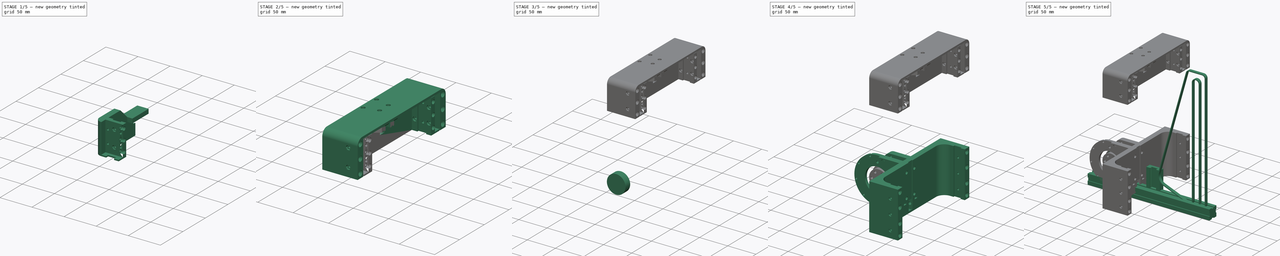
[diagram: build sequence overview — one tinted view per stage of 5, left to right]
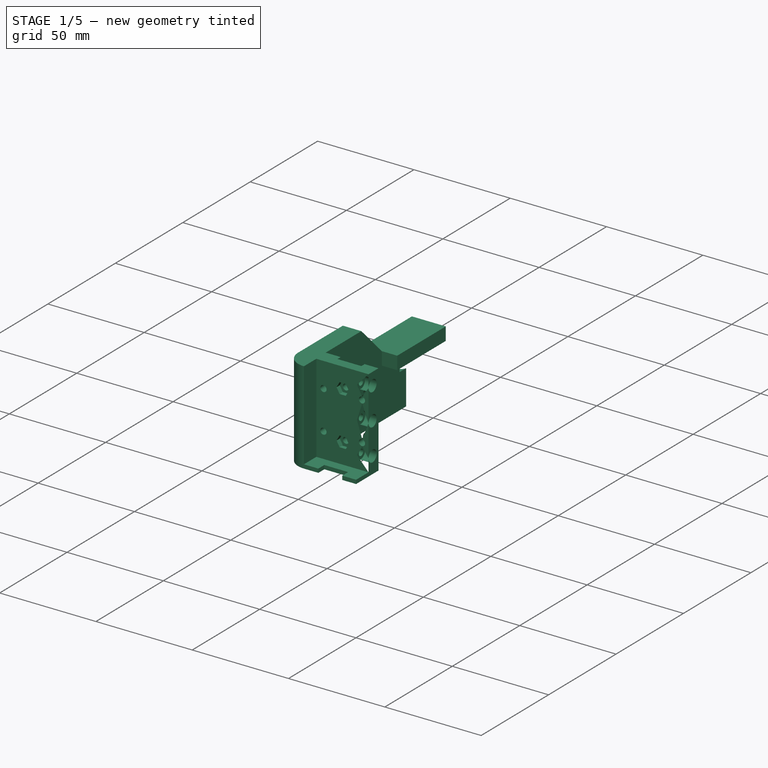
[diagram: stage 1 of 5 — iso view after this stage's code; geometry added in this stage tinted green]
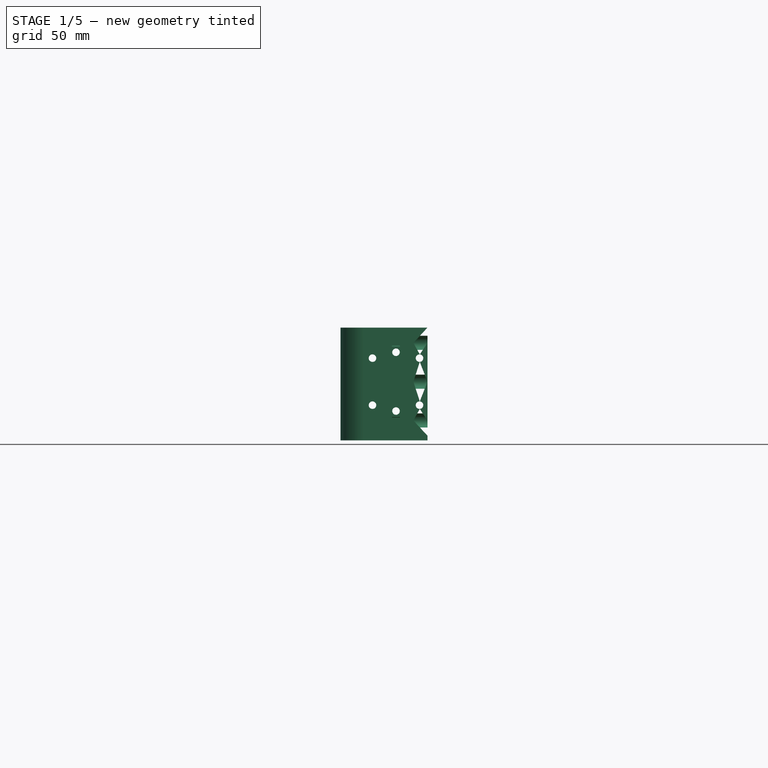
[diagram: stage 1 of 5 — front view after this stage's code; geometry added in this stage tinted green]
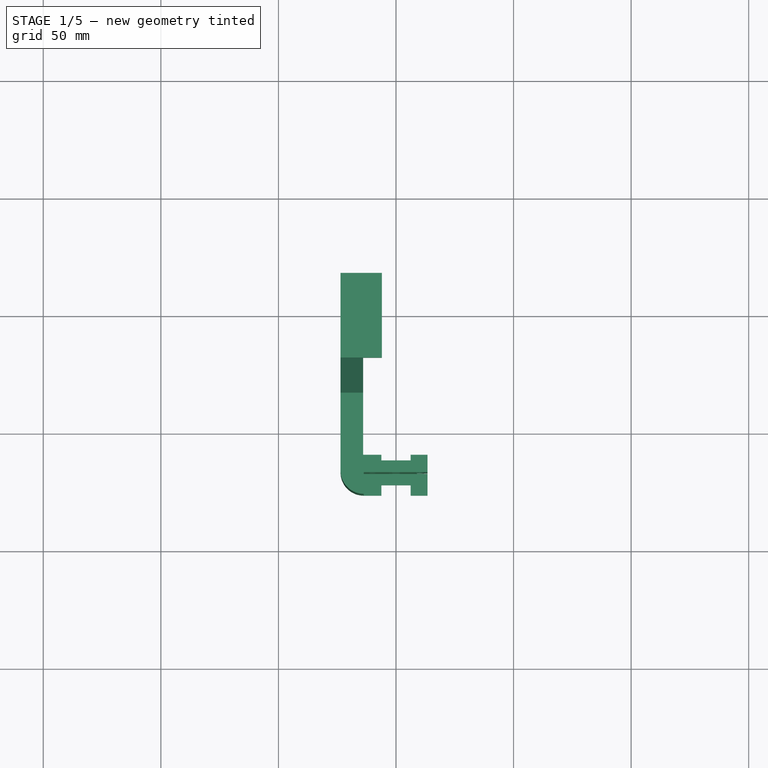
[diagram: stage 1 of 5 — top view after this stage's code; geometry added in this stage tinted green]
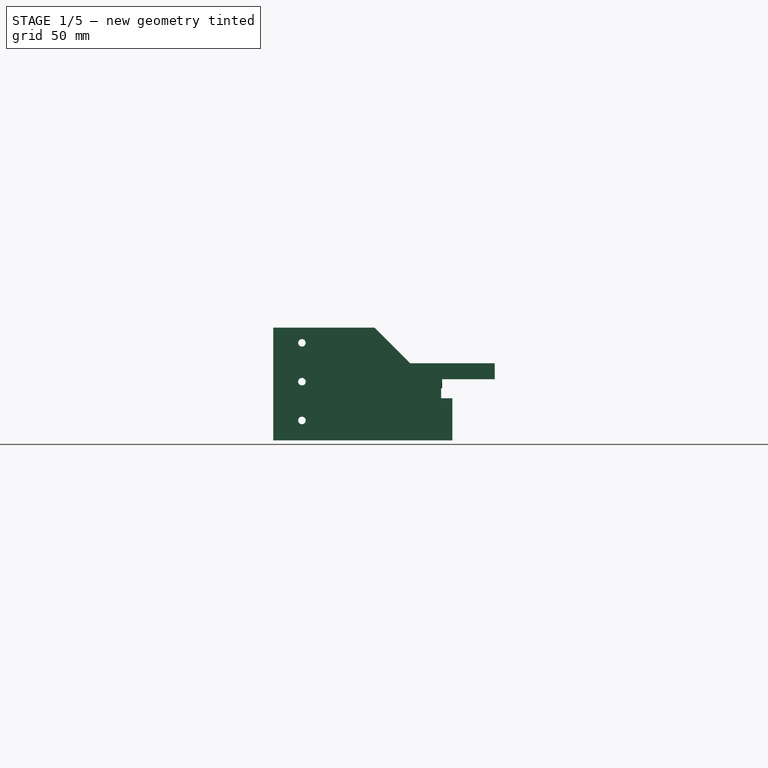
[diagram: stage 1 of 5 — right view after this stage's code; geometry added in this stage tinted green]
FCSTD DOCUMENT  (FreeCAD 1.0R39109 (Git))
Label: v13b
License: All rights reserved
LicenseURL: https://en.wikipedia.org/wiki/All_rights_reserved
objects: Sketcher::SketchObject×64, PartDesign::Pad×25, PartDesign::Pocket×25, Part::FeaturePython×17, PartDesign::Body×16, PartDesign::Hole×11, PartDesign::SubShapeBinder×11, App::Part×4, PartDesign::Revolution×4, App::DocumentObjectGroup×4, PartDesign::Mirrored×3, PartDesign::Groove×3, PartDesign::Chamfer×3, PartDesign::FeatureBase×2, App::FeaturePython×1, PartDesign::PolarPattern×1, Part::MultiFuse×1, Part::MultiCommon×1, PartDesign::Fillet×1
note: 402 computed .brp shape members not serialized (recipe doc carries the construction recipe); baked Part::Feature solids carry a one-line shape summary decoded from their .brp

FEATURE [App::FeaturePython] dd  # WARN: FeaturePython — macro-defined, semantics opaque (R4)
  CG_X = -77.6
  CG_Y = -10
  CG_Z = 40
  DynamicData = Created with DynamicData (v2.73) workbench. | This is a simple container object built | for holding custom properties.
  F1_X = 31.6
  F1_Y = 80
  F2_X = 18.8
  F2_Y = 62
  F_X = 108
  G1_Teeth = 50
  Position = 0
  SH_Length = 250
  expr: CG_X = -(F1_X + 40 mm + 6 mm)
  expr: F1_X = F2_X + 12.8 mm
  expr: F2_X = 18.8
  expr: F2_Y = F1_Y - 18 mm
FEATURE [Sketcher::SketchObject] Sketch005  label="P20_Sketch001"
  ArcFitTolerance = 1e-06
  AttachmentSupport = -> [YZ_Plane002]
  FullyConstrained = true
  MakeInternals = false
  MapMode = 5
  Placement = pos=(0,0,0) rot=(0.57735,0.57735,0.57735;2.0944rad)
  sketch-geometry (20):
    g0: LineSegment StartX=3 StartY=10 StartZ=0 EndX=10 EndY=10 EndZ=0
    g1: LineSegment StartX=10 StartY=10 StartZ=0 EndX=10 EndY=3 EndZ=0
    g2: LineSegment StartX=10 StartY=3 StartZ=0 EndX=8.4 EndY=3 EndZ=0
    g3: LineSegment StartX=8.4 StartY=3 StartZ=0 EndX=8.4 EndY=-3 EndZ=0
    g4: LineSegment StartX=8.4 StartY=-3 StartZ=0 EndX=10 EndY=-3 EndZ=0
    g5: LineSegment StartX=10 StartY=-3 StartZ=0 EndX=10 EndY=-10 EndZ=0
    g6: LineSegment StartX=10 StartY=-10 StartZ=0 EndX=3 EndY=-10 EndZ=0
    g7: LineSegment StartX=3 StartY=-10 StartZ=0 EndX=3 EndY=-8.4 EndZ=0
    g8: LineSegment StartX=3 StartY=-8.4 StartZ=0 EndX=-3 EndY=-8.4 EndZ=0
    g9: LineSegment StartX=-3 StartY=-8.4 StartZ=0 EndX=-3 EndY=-10 EndZ=0
    g10: LineSegment StartX=-3 StartY=-10 StartZ=0 EndX=-10 EndY=-10 EndZ=0
    g11: LineSegment StartX=-10 StartY=-10 StartZ=0 EndX=-10 EndY=-3 EndZ=0
    g12: LineSegment StartX=-10 StartY=-3 StartZ=0 EndX=-8.4 EndY=-3 EndZ=0
    g13: LineSegment StartX=-8.4 StartY=-3 StartZ=0 EndX=-8.4 EndY=3 EndZ=0
    g14: LineSegment StartX=-8.4 StartY=3 StartZ=0 EndX=-10 EndY=3 EndZ=0
    g15: LineSegment StartX=-10 StartY=3 StartZ=0 EndX=-10 EndY=10 EndZ=0
    g16: LineSegment StartX=-10 StartY=10 StartZ=0 EndX=-3 EndY=10 EndZ=0
    g17: LineSegment StartX=-3 StartY=10 StartZ=0 EndX=-3 EndY=8.4 EndZ=0
    g18: LineSegment StartX=-3 StartY=8.4 StartZ=0 EndX=3 EndY=8.4 EndZ=0
    g19: LineSegment StartX=3 StartY=8.4 StartZ=0 EndX=3 EndY=10 EndZ=0
  constraints (58):
    c: Horizontal(g0)
    c: Coincident(g0,g1)
    c: Coincident(g1,g2)
    c: Horizontal(g2)
    c: Coincident(g2,g3)
    c: Coincident(g3,g4)
    c: Coincident(g4,g5)
    c: Vertical(g5)
    c: Coincident(g5,g6)
    c: Coincident(g6,g7)
    c: Coincident(g7,g8)
    c: Horizontal(g8)
    c: Coincident(g8,g9)
    c: Vertical(g9)
    c: Coincident(g9,g10)
    c: Coincident(g10,g11)
    c: Vertical(g11)
    c: Coincident(g11,g12)
    c: Horizontal(g12)
    c: Coincident(g12,g13)
    c: Coincident(g13,g14)
    c: Coincident(g14,g15)
    c: Vertical(g15)
    c: Coincident(g15,g16)
    c: Horizontal(g16)
    c: Coincident(g16,g17)
    c: Vertical(g17)
    c: Coincident(g17,g18)
    c: Coincident(g18,g19)
    c: Coincident(g19,g0)
    c: Horizontal(g14)
    c: Vertical(g19)
    c: Vertical(g1)
    c: Horizontal(g4)
    c: Horizontal(g6)
    c: Vertical(g7)
    c: Horizontal(g10)
    c: Equal(g14,g17)
    c: Equal(g19,g2)
    c: Equal(g4,g7)
    c: Distance(g4,g4) = 1.6
    c: Equal(g3,g18)
    c: Equal(g18,g13)
    c: Equal(g13,g8)
    c: Distance(g13,g13) = 6
    c: Equal(g16,g0)
    c: Equal(g0,g1)
    c: Equal(g1,g5)
    c: Equal(g5,g6)
    c: Equal(g6,g10)
    c: Equal(g10,g11)
    c: Equal(g11,g15)
    c: Vertical(g3)
    c: Vertical(g13)
    c: DistanceY(g10,g15) = 20
    c: Symmetric(g14,g11,g-1)
    c: Symmetric(g17,g18,g-2)
    c: Equal(g9,g7)
FEATURE [Sketcher::SketchObject] Sketch001  label="MGN12H_Sketch001"
  ArcFitTolerance = 1e-06
  AttachmentSupport = -> [XY_Plane004]
  FullyConstrained = true
  MakeInternals = false
  MapMode = 5
  sketch-geometry (15):
    g0: LineSegment StartX=-13.5 StartY=13 StartZ=0 EndX=13.5 EndY=13 EndZ=0
    g1: LineSegment StartX=13.5 StartY=13 StartZ=0 EndX=13.5 EndY=3 EndZ=0
    g2: LineSegment StartX=13.5 StartY=3 StartZ=0 EndX=6 EndY=3 EndZ=0
    g3: LineSegment StartX=6 StartY=8 StartZ=0 EndX=-6 EndY=8 EndZ=0
    g4: LineSegment StartX=-6 StartY=3 StartZ=0 EndX=-13.5 EndY=3 EndZ=0
    g5: LineSegment StartX=-13.5 StartY=3 StartZ=0 EndX=-13.5 EndY=13 EndZ=0
    g6: LineSegment [constr] StartX=-13.5 StartY=5.6 StartZ=0 EndX=13.5 EndY=5.6 EndZ=0
    g7: LineSegment StartX=-6 StartY=8 StartZ=0 EndX=-6 EndY=6.8 EndZ=0
    g8: LineSegment StartX=-4.8 StartY=5.6 StartZ=0 EndX=-6 EndY=4.4 EndZ=0
    g9: LineSegment StartX=-6 StartY=4.4 StartZ=0 EndX=-6 EndY=3 EndZ=0
    g10: LineSegment StartX=6 StartY=8 StartZ=0 EndX=6 EndY=6.8 EndZ=0
    g11: LineSegment StartX=6 StartY=6.8 StartZ=0 EndX=4.8 EndY=5.6 EndZ=0
    g12: LineSegment StartX=4.8 StartY=5.6 StartZ=0 EndX=6 EndY=4.4 EndZ=0
    g13: LineSegment StartX=6 StartY=4.4 StartZ=0 EndX=6 EndY=3 EndZ=0
    g14: LineSegment StartX=-6 StartY=6.8 StartZ=0 EndX=-4.8 EndY=5.6 EndZ=0
  constraints (40):
    c: Coincident(g0,g1)
    c: Vertical(g1)
    c: Coincident(g1,g2)
    c: Horizontal(g2)
    c: Horizontal(g4)
    c: Coincident(g4,g5)
    c: Coincident(g5,g0)
    c: Vertical(g5)
    c: Horizontal(g3)
    c: Symmetric(g4,g2,g-2)
    c: Symmetric(g0,g0,g-2)
    c: Distance(g1,g-1) = 3
    c: Distance(g4,g2) = 12
    c: Distance(g1,g4) = 27
    c: Distance(g0,g-1) = 13
    c: Distance(g3,g-1) = 8
    c: PointOnObject(g6,g5)
    c: PointOnObject(g6,g1)
    c: Horizontal(g6)
    c: Distance(g6,g-1) = 5.6
    c: Coincident(g3,g7)
    c: Vertical(g7)
    c: Coincident(g8,g9)
    c: Coincident(g9,g4)
    c: Vertical(g9)
    c: Coincident(g3,g10)
    c: Coincident(g10,g11)
    c: PointOnObject(g11,g6)
    c: Coincident(g11,g12)
    c: Coincident(g12,g13)
    c: Coincident(g13,g2)
    c: Coincident(g14,g7)
    c: Coincident(g14,g8)
    c: Symmetric(g8,g11,g-2)
    c: Vertical(g10)
    c: Symmetric(g12,g10,g6)
    c: Symmetric(g8,g7,g6)
    c: Symmetric(g10,g7,g-2)
    c: Perpendicular(g8,g14)
    c: DistanceY(g8,g8) = 1.2
FEATURE [PartDesign::Pad] Pad001  label="MGN12H_Pad001"
  Direction = (0,0,1)
  Length = 46
  Length2 = 10
  Profile = -> Sketch001
  ReferenceAxis = -> Sketch001 [N_Axis]
  Refine = true
  Suppressed = false
  Type = 0
FEATURE [Sketcher::SketchObject] Sketch002  label="MGN12H_Sketch002"
  ArcFitTolerance = 1e-06
  AttachmentSupport = -> [Pad001]
  ExternalGeometry = -> [Pad001]
  FullyConstrained = true
  MakeInternals = false
  MapMode = 5
  Placement = pos=(0,13,0) rot=(0,0.707107,0.707107;3.14159rad)
  sketch-geometry (5):
    g0: LineSegment [constr] StartX=-13.5 StartY=23 StartZ=0 EndX=13.5 EndY=23 EndZ=0
    g1: Circle CenterX=-10 CenterY=33 CenterZ=0 NormalX=0 NormalY=0 NormalZ=1 AngleXU=0 Radius=1.6
    g2: Circle CenterX=10 CenterY=33 CenterZ=0 NormalX=0 NormalY=0 NormalZ=1 AngleXU=0 Radius=1.6
    g3: Circle CenterX=10 CenterY=13 CenterZ=0 NormalX=0 NormalY=0 NormalZ=1 AngleXU=0 Radius=1.6
    g4: Circle CenterX=-10 CenterY=13 CenterZ=0 NormalX=0 NormalY=0 NormalZ=1 AngleXU=0 Radius=1.6
  constraints (11):
    c: Symmetric(g-3,g-3,g0)
    c: Symmetric(g0,g0,g-2)
    c: Equal(g4,g1)
    c: Equal(g1,g2)
    c: Equal(g2,g3)
    c: Diameter(g2) = 3.2
    c: Symmetric(g1,g2,g-2)
    c: Symmetric(g1,g4,g0)
    c: Symmetric(g4,g3,g-2)
    c: DistanceY(g3,g2) = 20
    c: DistanceX(g4,g3) = 20
FEATURE [PartDesign::Pocket] Pocket  label="MGN12_Pocket000"
  BaseFeature = -> Pad001
  Direction = (0,-1,2e-16)
  Length = 3.4
  Length2 = 5
  Profile = -> Sketch002
  ReferenceAxis = -> Sketch002 [N_Axis]
  Refine = true
  Suppressed = false
  Type = 0
FEATURE [PartDesign::Body] Body002  label="F2_MGN12H"
  AllowCompound = false
  Group = -> [Sketch001,Pad001,Sketch002,Pocket]
  Origin = -> Origin004
  Placement = pos=(0,-80,202) rot=(0,0,1;0rad)
  Tip = -> Pocket
  expr: .Placement.Base.y = -dd.F1_Y
FEATURE [Sketcher::SketchObject] Sketch008  label="MGN12_Sketch003"
  ArcFitTolerance = 1e-06
  FullyConstrained = true
  MakeInternals = false
  MapMode = 5
  sketch-geometry (17):
    g0: LineSegment StartX=-6 StartY=0 StartZ=0 EndX=6 EndY=0 EndZ=0
    g1: LineSegment StartX=-6 StartY=4.4 StartZ=0 EndX=-5.1 EndY=5.3 EndZ=0
    g2: LineSegment StartX=-5.1 StartY=5.3 StartZ=0 EndX=-4.5 EndY=5.3 EndZ=0
    g3: LineSegment StartX=-4.5 StartY=5.3 StartZ=0 EndX=-4.5 EndY=5.9 EndZ=0
    g4: LineSegment StartX=-4.5 StartY=5.9 StartZ=0 EndX=-5.1 EndY=5.9 EndZ=0
    g5: LineSegment StartX=-5.1 StartY=5.9 StartZ=0 EndX=-6 EndY=6.8 EndZ=0
    g6: LineSegment StartX=-6 StartY=6.8 StartZ=0 EndX=-6 EndY=8 EndZ=0
    g7: LineSegment StartX=-6 StartY=8 StartZ=0 EndX=6 EndY=8 EndZ=0
    g8: LineSegment StartX=6 StartY=8 StartZ=0 EndX=6 EndY=6.8 EndZ=0
    g9: LineSegment StartX=6 StartY=6.8 StartZ=0 EndX=5.1 EndY=5.9 EndZ=0
    g10: LineSegment StartX=5.1 StartY=5.9 StartZ=0 EndX=4.5 EndY=5.9 EndZ=0
    g11: LineSegment StartX=4.5 StartY=5.9 StartZ=0 EndX=4.5 EndY=5.3 EndZ=0
    g12: LineSegment StartX=4.5 StartY=5.3 StartZ=0 EndX=5.1 EndY=5.3 EndZ=0
    g13: LineSegment StartX=5.1 StartY=5.3 StartZ=0 EndX=6 EndY=4.4 EndZ=0
    g14: LineSegment [constr] StartX=-6 StartY=5.6 StartZ=0 EndX=6 EndY=5.6 EndZ=0
    g15: LineSegment StartX=-6 StartY=0 StartZ=0 EndX=-6 EndY=4.4 EndZ=0
    g16: LineSegment StartX=6 StartY=4.4 StartZ=0 EndX=6 EndY=0 EndZ=0
  constraints (43):
    c: PointOnObject(g0,g-1)
    c: Symmetric(g0,g0,g-2)
    c: DistanceX(g0,g0) = 12
    c: Coincident(g15,g1)
    c: Coincident(g1,g2)
    c: Horizontal(g2)
    c: Coincident(g2,g3)
    c: Vertical(g3)
    c: Coincident(g3,g4)
    c: Coincident(g4,g5)
    c: Coincident(g5,g6)
    c: Vertical(g6)
    c: Coincident(g6,g7)
    c: Horizontal(g7)
    c: Coincident(g7,g8)
    c: Vertical(g8)
    c: Coincident(g8,g9)
    c: Coincident(g9,g10)
    c: Coincident(g10,g11)
    c: Vertical(g11)
    c: Coincident(g11,g12)
    c: Horizontal(g12)
    c: Coincident(g12,g13)
    c: Coincident(g13,g16)
    c: Symmetric(g2,g3,g14)
    c: Symmetric(g1,g4,g14)
    c: Symmetric(g15,g5,g14)
    c: Symmetric(g5,g8,g-2)
    c: Symmetric(g10,g3,g-2)
    c: Symmetric(g12,g1,g-2)
    c: Symmetric(g9,g12,g14)
    c: DistanceY(g0,g6) = 8
    c: DistanceX(g2,g11) = 9
    c: DistanceY(g3,g3) = 0.6
    c: Distance(g14,g6) = 2.4
    c: Perpendicular(g5,g1)
    c: DistanceX(g15,g1) = 0.9
    c: Symmetric(g15,g13,g-2)
    c: Vertical(g16)
    c: PointOnObject(g14,g16)
    c: Coincident(g16,g0)
    c: Coincident(g15,g0)
    c: PointOnObject(g14,g15)
FEATURE [PartDesign::Pad] Pad  label="MGN12_Pad000"
  Direction = (0,0,1)
  Length = 250
  Length2 = 10
  Profile = -> Sketch008
  ReferenceAxis = -> Sketch008 [N_Axis]
  Refine = true
  Suppressed = false
  Type = 0
  expr: Length = dd.SH_Length
FEATURE [Sketcher::SketchObject] Sketch  label="MGN12_Sketch000"
  ArcFitTolerance = 1e-06
  AttachmentSupport = -> [Pad]
  FullyConstrained = true
  MakeInternals = false
  MapMode = 5
  Placement = pos=(0,8,0) rot=(0,0.707107,0.707107;3.14159rad)
  sketch-geometry (20):
    g0: LineSegment [constr] StartX=0 StartY=-12.5 StartZ=0 EndX=0 EndY=12.5 EndZ=0
    g1: LineSegment [constr] StartX=0 StartY=12.5 StartZ=0 EndX=0 EndY=37.5 EndZ=0
    g2: LineSegment [constr] StartX=0 StartY=37.5 StartZ=0 EndX=0 EndY=62.5 EndZ=0
    g3: LineSegment [constr] StartX=0 StartY=62.5 StartZ=0 EndX=0 EndY=87.5 EndZ=0
    g4: LineSegment [constr] StartX=0 StartY=87.5 StartZ=0 EndX=0 EndY=112.5 EndZ=0
    g5: LineSegment [constr] StartX=0 StartY=112.5 StartZ=0 EndX=0 EndY=137.5 EndZ=0
    g6: LineSegment [constr] StartX=0 StartY=137.5 StartZ=0 EndX=0 EndY=162.5 EndZ=0
    g7: LineSegment [constr] StartX=0 StartY=162.5 StartZ=0 EndX=0 EndY=187.5 EndZ=0
    g8: LineSegment [constr] StartX=0 StartY=187.5 StartZ=0 EndX=0 EndY=212.5 EndZ=0
    g9: LineSegment [constr] StartX=0 StartY=212.5 StartZ=0 EndX=0 EndY=237.5 EndZ=0
    g10: Circle CenterX=0 CenterY=12.5 CenterZ=0 NormalX=0 NormalY=0 NormalZ=1 AngleXU=0 Radius=1.85
    g11: Circle CenterX=0 CenterY=37.5 CenterZ=0 NormalX=0 NormalY=0 NormalZ=1 AngleXU=0 Radius=1.85
    g12: Circle CenterX=0 CenterY=62.5 CenterZ=0 NormalX=0 NormalY=0 NormalZ=1 AngleXU=0 Radius=1.85
    g13: Circle CenterX=0 CenterY=87.5 CenterZ=0 NormalX=0 NormalY=0 NormalZ=1 AngleXU=0 Radius=1.85
    g14: Circle CenterX=0 CenterY=112.5 CenterZ=0 NormalX=0 NormalY=0 NormalZ=1 AngleXU=0 Radius=1.85
    g15: Circle CenterX=0 CenterY=137.5 CenterZ=0 NormalX=0 NormalY=0 NormalZ=1 AngleXU=0 Radius=1.85
    g16: Circle CenterX=0 CenterY=162.5 CenterZ=0 NormalX=0 NormalY=0 NormalZ=1 AngleXU=0 Radius=1.85
    g17: Circle CenterX=0 CenterY=187.5 CenterZ=0 NormalX=0 NormalY=0 NormalZ=1 AngleXU=0 Radius=1.85
    g18: Circle CenterX=0 CenterY=212.5 CenterZ=0 NormalX=0 NormalY=0 NormalZ=1 AngleXU=0 Radius=1.85
    g19: Circle CenterX=0 CenterY=237.5 CenterZ=0 NormalX=0 NormalY=0 NormalZ=1 AngleXU=0 Radius=1.85
  constraints (50):
    c: Vertical(g0)
    c: Coincident(g0,g1)
    c: Vertical(g1)
    c: Coincident(g1,g2)
    c: Coincident(g2,g3)
    c: Coincident(g3,g4)
    c: Coincident(g4,g5)
    c: Vertical(g5)
    c: Coincident(g5,g6)
    c: Vertical(g6)
    c: Coincident(g6,g7)
    c: Coincident(g7,g8)
    c: Coincident(g8,g9)
    c: PointOnObject(g9,g-2)
    c: Vertical(g9)
    c: Vertical(g2)
    c: Vertical(g3)
    c: Vertical(g4)
    c: Vertical(g7)
    c: Distance(g0,g0) = 25
    c: Symmetric(g0,g0,g-1)
    c: Equal(g1,g2)
    c: Equal(g2,g3)
    c: Equal(g3,g4)
    c: Equal(g4,g5)
    c: Equal(g5,g6)
    c: Equal(g6,g7)
    c: Equal(g7,g8)
    c: Equal(g8,g9)
    c: Coincident(g10,g0)
    c: Coincident(g11,g1)
    c: Coincident(g12,g2)
    c: Coincident(g13,g3)
    c: Coincident(g14,g4)
    c: Coincident(g15,g5)
    c: Coincident(g16,g6)
    c: Coincident(g17,g7)
    c: Coincident(g18,g8)
    c: Coincident(g19,g9)
    c: Diameter(g10) = 3.7
    c: Equal(g10,g11)
    c: Equal(g11,g12)
    c: Equal(g12,g13)
    c: Equal(g13,g14)
    c: Equal(g14,g15)
    c: Equal(g15,g16)
    c: Equal(g16,g17)
    c: Equal(g17,g18)
    c: Equal(g18,g19)
    c: Equal(g1,g0)
FEATURE [PartDesign::Hole] Hole  label="MGN12_Hole000"
  BaseFeature = -> Pad
  CustomThreadClearance = 0
  Depth = 505.84
  DepthType = 1
  Diameter = 3.7
  DrillForDepth = false
  DrillPoint = 0
  DrillPointAngle = 118
  HoleCutCountersinkAngle = 179
  HoleCutCustomValues = false
  HoleCutDepth = 4.5
  HoleCutDiameter = 6.2
  HoleCutType = 3
  ModelThread = false
  Profile = -> Sketch
  Refine = true
  Suppressed = false
  Tapered = false
  TaperedAngle = 90
  ThreadClass = 0
  ThreadDepth = 505.84
  ThreadDepthType = 0
  ThreadDirection = 0
  ThreadFit = 0
  ThreadSize = 0
  ThreadType = 0
  Threaded = false
  UseCustomThreadClearance = false
FEATURE [PartDesign::Body] Body001  label="P20"
  AllowCompound = false
  Group = -> [Sketch005,Pad012]
  Origin = -> Origin002
  Placement = pos=(0,-90,75) rot=(0,0,1;0rad)
  Tip = -> Pad012
  expr: .Placement.Base.y = -dd.F1_Y - 10 mm
FEATURE [PartDesign::FeatureBase] Clone
  BaseFeature = -> Body003
  Suppressed = false
FEATURE [PartDesign::SubShapeBinder] Binder009  label="F2T_Binder009_MGN"
  BindCopyOnChange = 0
  BindMode = 0
  ClaimChildren = false
  Context = -> Part001 [Part003.Body014.Binder009.]
  Fuse = false
  MakeFace = true
  OffsetFill = false
  OffsetIntersection = false
  OffsetJoinType = 0
  OffsetOpenResult = false
  PartialLoad = false
  Refine = true
  Relative = true
  Support = -> [Body002[Pocket.Face5,Pocket.Face12],Body005[Clone.Face5,Clone.Face2]]
  _Version = 2
FEATURE [Sketcher::SketchObject] Sketch057  label="F2T_Sketch057"
  ArcFitTolerance = 1e-06
  AttachmentOffset = pos=(0,0,248) rot=(0,0,1;0rad)
  AttachmentSupport = -> [XY_Plane018]
  ExternalGeometry = -> [Binder009]
  FullyConstrained = true
  MakeInternals = false
  MapMode = 5
  Placement = pos=(0,0,248) rot=(0,0,1;0rad)
  expr: .AttachmentOffset.Base.z = dd.SH_Length - 2 mm
  expr: Constraints[3] = dd.F2_X
  sketch-geometry (16):
    g0: LineSegment [constr] StartX=-18.8 StartY=0 StartZ=0 EndX=-18.8 EndY=-67 EndZ=0
    g1: LineSegment StartX=-14 StartY=0 StartZ=0 EndX=-14 EndY=-59.6 EndZ=0
    g2: LineSegment StartX=-6.2 StartY=-62 StartZ=0 EndX=6.2 EndY=-62 EndZ=0
    g3: LineSegment StartX=6.2 StartY=-62 StartZ=0 EndX=6.2 EndY=-59.6 EndZ=0
    g4: LineSegment StartX=6.2 StartY=-59.6 StartZ=0 EndX=13.4 EndY=-59.6 EndZ=0
    g5: LineSegment StartX=13.4 StartY=-59.6 StartZ=0 EndX=13.4 EndY=-67 EndZ=0
    g6: LineSegment StartX=-6.2 StartY=-62 StartZ=0 EndX=-6.2 EndY=-59.6 EndZ=0
    g7: ArcOfCircle CenterX=-13.7 CenterY=-66.3 CenterZ=0 NormalX=0 NormalY=0 NormalZ=1 AngleXU=0 Radius=9.9 StartAngle=3.14159 EndAngle=4.71239
    g8: LineSegment StartX=-13.7 StartY=-76.2 StartZ=0 EndX=-13.7 EndY=-67 EndZ=0
    g9: LineSegment StartX=-13.7 StartY=-67 StartZ=0 EndX=13.4 EndY=-67 EndZ=0
    g10: LineSegment StartX=-14 StartY=-59.6 StartZ=0 EndX=-6.2 EndY=-59.6 EndZ=0
    g11: LineSegment [constr] StartX=-23.6 StartY=0 StartZ=0 EndX=-23.6 EndY=-6 EndZ=0
    g12: LineSegment StartX=-23.6 StartY=-6 StartZ=0 EndX=-23.6 EndY=-66.3 EndZ=0
    g13: LineSegment StartX=-23.6 StartY=-6 StartZ=0 EndX=-22.4 EndY=-4.8 EndZ=0
    g14: LineSegment StartX=-22.4 StartY=-4.8 StartZ=0 EndX=-22.4 EndY=0 EndZ=0
    g15: LineSegment StartX=-22.4 StartY=0 StartZ=0 EndX=-14 EndY=0 EndZ=0
  constraints (47):
    c: PointOnObject(g0,g-1)
    c: Vertical(g0)
    c: PointOnObject(g0,g-4)
    c: DistanceX(g0,g-1) = 18.8
    c: PointOnObject(g11,g-1)
    c: Coincident(g15,g1)
    c: Vertical(g1)
    c: Symmetric(g15,g11,g0)
    c: Distance(g11,g15) = 9.6
    c: Horizontal(g2)
    c: Coincident(g2,g3)
    c: Vertical(g3)
    c: Coincident(g3,g4)
    c: Horizontal(g4)
    c: Coincident(g4,g5)
    c: Vertical(g5)
    c: PointOnObject(g-3,g2)
    c: Distance(g5,g-4) = 0.1
    c: Distance(g-3,g2) = 0.2
    c: Coincident(g6,g2)
    c: Vertical(g6)
    c: Symmetric(g3,g6,g-2)
    c: Distance(g6,g6) = 2.4
    c: Coincident(g8,g7)
    c: Vertical(g8)
    c: Coincident(g9,g8)
    c: Coincident(g9,g5)
    c: Horizontal(g9)
    c: PointOnObject(g7,g8)
    c: PointOnObject(g-4,g9)
    c: Distance(g8,g-5) = 0.2
    c: DistanceY(g-5,g7) = 0.8
    c: Coincident(g10,g1)
    c: Coincident(g10,g6)
    c: Horizontal(g10)
    c: Vertical(g11)
    c: Distance(g11,g-1) = 6
    c: Coincident(g12,g11)
    c: Vertical(g12)
    c: Tangent(g7,g12) = -1.5708
    c: Coincident(g11,g13)
    c: Coincident(g13,g14)
    c: Vertical(g14)
    c: Horizontal(g15)
    c: Coincident(g14,g15)
    c: Distance(g0,g14) = 3.6
    c: Angle(g12,g13) = 2.35619
FEATURE [PartDesign::Pad] Pad025  label="F2T_Pad025"
  Direction = (0,0,1)
  Length = 48
  Length2 = 10
  Profile = -> Sketch057
  ReferenceAxis = -> Sketch057 [N_Axis]
  Refine = true
  Reversed = true
  Suppressed = false
  Type = 0
FEATURE [Sketcher::SketchObject] Sketch058  label="F2T_Sketch058"
  ArcFitTolerance = 1e-06
  AttachmentSupport = -> [Pad025]
  ExternalGeometry = -> [Binder009]
  FullyConstrained = true
  MakeInternals = false
  MapMode = 5
  Placement = pos=(0,-59.6,0) rot=(0,0.707107,0.707107;3.14159rad)
  sketch-geometry (4):
    g0: Circle CenterX=-10 CenterY=235 CenterZ=0 NormalX=0 NormalY=0 NormalZ=1 AngleXU=0 Radius=1.6
    g1: Circle CenterX=10 CenterY=235 CenterZ=0 NormalX=0 NormalY=0 NormalZ=1 AngleXU=0 Radius=1.6
    g2: Circle CenterX=10 CenterY=215 CenterZ=0 NormalX=0 NormalY=0 NormalZ=1 AngleXU=0 Radius=1.6
    g3: Circle CenterX=-10 CenterY=215 CenterZ=0 NormalX=0 NormalY=0 NormalZ=1 AngleXU=0 Radius=1.6
  constraints (8):
    c: Coincident(g0,g-3)
    c: Equal(g0,g-3)
    c: Coincident(g1,g-4)
    c: Equal(g1,g-4)
    c: Coincident(g2,g-5)
    c: Equal(g2,g-5)
    c: Coincident(g3,g-6)
    c: Equal(g3,g-6)
FEATURE [PartDesign::Hole] Hole007  label="F2T_Hole007"
  BaseFeature = -> Pad025
  CustomThreadClearance = 0
  Depth = 194.712
  DepthType = 1
  Diameter = 3.2
  DrillForDepth = false
  DrillPoint = 1
  DrillPointAngle = 118
  HoleCutCountersinkAngle = 179
  HoleCutCustomValues = false
  HoleCutDepth = 2.4
  HoleCutDiameter = 6
  HoleCutType = 3
  ModelThread = false
  Profile = -> Sketch058
  Refine = true
  Suppressed = false
  Tapered = false
  TaperedAngle = 90
  ThreadClass = 0
  ThreadDepth = 194.712
  ThreadDepthType = 0
  ThreadDirection = 0
  ThreadFit = 0
  ThreadSize = 0
  ThreadType = 0
  Threaded = false
  UseCustomThreadClearance = false
FEATURE [Sketcher::SketchObject] Sketch059  label="F2T_Sketch059"
  ArcFitTolerance = 1e-06
  AttachmentSupport = -> [Hole007]
  ExternalGeometry = -> [Binder009]
  FullyConstrained = true
  MakeInternals = false
  MapMode = 5
  Placement = pos=(0,-67,0) rot=(1,0,0;1.5708rad)
  sketch-geometry (14):
    g0: LineSegment StartX=3.2 StartY=237.5 StartZ=0 EndX=1.6 EndY=240.271 EndZ=0
    g1: LineSegment StartX=1.6 StartY=240.271 StartZ=0 EndX=-1.6 EndY=240.271 EndZ=0
    g2: LineSegment StartX=-1.6 StartY=240.271 StartZ=0 EndX=-3.2 EndY=237.5 EndZ=0
    g3: LineSegment StartX=-3.2 StartY=237.5 StartZ=0 EndX=-1.6 EndY=234.729 EndZ=0
    g4: LineSegment StartX=-1.6 StartY=234.729 StartZ=0 EndX=1.6 EndY=234.729 EndZ=0
    g5: LineSegment StartX=1.6 StartY=234.729 StartZ=0 EndX=3.2 EndY=237.5 EndZ=0
    g6: Circle [constr] CenterX=0 CenterY=237.5 CenterZ=0 NormalX=0 NormalY=0 NormalZ=1 AngleXU=0 Radius=3.2
    g7: LineSegment StartX=3.2 StartY=212.5 StartZ=0 EndX=1.6 EndY=215.271 EndZ=0
    g8: LineSegment StartX=1.6 StartY=215.271 StartZ=0 EndX=-1.6 EndY=215.271 EndZ=0
    g9: LineSegment StartX=-1.6 StartY=215.271 StartZ=0 EndX=-3.2 EndY=212.5 EndZ=0
    g10: LineSegment StartX=-3.2 StartY=212.5 StartZ=0 EndX=-1.6 EndY=209.729 EndZ=0
    g11: LineSegment StartX=-1.6 StartY=209.729 StartZ=0 EndX=1.6 EndY=209.729 EndZ=0
    g12: LineSegment StartX=1.6 StartY=209.729 StartZ=0 EndX=3.2 EndY=212.5 EndZ=0
    g13: Circle [constr] CenterX=0 CenterY=212.5 CenterZ=0 NormalX=0 NormalY=0 NormalZ=1 AngleXU=0 Radius=3.2
  constraints (32):
    c: Coincident(g0,g1)
    c: Coincident(g1,g2)
    c: Coincident(g2,g3)
    c: Coincident(g3,g4)
    c: Coincident(g4,g5)
    c: Coincident(g5,g0)
    c: Equal(g0, g1-g5) x5
    c: PointOnObject(g0,g6)
    c: PointOnObject(g1,g6)
    c: PointOnObject(g2,g6)
    c: PointOnObject(g3,g6)
    c: PointOnObject(g4,g6)
    c: PointOnObject(g5,g6)
    c: Coincident(g6,g-3)
    c: Coincident(g7,g8)
    c: Coincident(g8,g9)
    c: Coincident(g9,g10)
    c: Coincident(g10,g11)
    c: Coincident(g11,g12)
    c: Coincident(g12,g7)
    c: Equal(g7, g8-g12) x5
    c: PointOnObject(g7,g13)
    c: PointOnObject(g8,g13)
    c: PointOnObject(g9,g13)
    c: PointOnObject(g10,g13)
    c: PointOnObject(g11,g13)
    c: PointOnObject(g12,g13)
    c: Coincident(g13,g-4)
    c: Equal(g6,g13)
    c: Diameter(g6) = 6.4
    c: Horizontal(g1)
    c: Horizontal(g8)
FEATURE [PartDesign::Pocket] Pocket021  label="F2T_Pocket021"
  BaseFeature = -> Hole007
  Direction = (0,1,-2e-16)
  Length = 2.4
  Length2 = 5
  Profile = -> Sketch059
  ReferenceAxis = -> Sketch059 [N_Axis]
  Refine = true
  Suppressed = false
  Type = 0
FEATURE [PartDesign::Hole] Hole008  label="F2T_Hole008"
  BaseFeature = -> Pocket021
  CustomThreadClearance = 0
  Depth = 194.712
  DepthType = 1
  Diameter = 3.2
  DrillForDepth = false
  DrillPoint = 1
  DrillPointAngle = 118
  HoleCutCountersinkAngle = 90
  HoleCutCustomValues = false
  HoleCutDepth = 0
  HoleCutDiameter = 6.1
  HoleCutType = 0
  ModelThread = false
  Profile = -> Binder009 [Edge27,Edge28]
  Refine = true
  Suppressed = false
  Tapered = false
  TaperedAngle = 90
  ThreadClass = 0
  ThreadDepth = 194.712
  ThreadDepthType = 0
  ThreadDirection = 0
  ThreadFit = 0
  ThreadSize = 0
  ThreadType = 0
  Threaded = false
  UseCustomThreadClearance = false
FEATURE [Sketcher::SketchObject] Sketch060  label="F2T_Sketch060"
  ArcFitTolerance = 1e-06
  AttachmentSupport = -> [Hole008]
  ExternalGeometry = -> [Hole008]
  FullyConstrained = true
  MakeInternals = false
  MapMode = 5
  Placement = pos=(13.4,0,0) rot=(0.57735,0.57735,0.57735;2.0944rad)
  sketch-geometry (8):
    g0: Circle CenterX=-64 CenterY=241.5 CenterZ=0 NormalX=0 NormalY=0 NormalZ=1 AngleXU=0 Radius=1.6
    g1: Circle CenterX=-64 CenterY=225 CenterZ=0 NormalX=0 NormalY=0 NormalZ=1 AngleXU=0 Radius=1.6
    g2: Circle CenterX=-64 CenterY=208.5 CenterZ=0 NormalX=0 NormalY=0 NormalZ=1 AngleXU=0 Radius=1.6
    g3: LineSegment [constr] StartX=-64 StartY=248 StartZ=0 EndX=-64 EndY=241.5 EndZ=0
    g4: LineSegment [constr] StartX=-64 StartY=241.5 StartZ=0 EndX=-64 EndY=235 EndZ=0
    g5: LineSegment [constr] StartX=-64 StartY=235 StartZ=0 EndX=-64 EndY=225 EndZ=0
    g6: LineSegment [constr] StartX=-64 StartY=225 StartZ=0 EndX=-64 EndY=215 EndZ=0
    g7: LineSegment [constr] StartX=-64 StartY=215 StartZ=0 EndX=-64 EndY=208.5 EndZ=0
  constraints (22):
    c: Equal(g0,g1)
    c: Equal(g1,g2)
    c: Diameter(g0) = 3.2
    c: Coincident(g3,g0)
    c: Vertical(g3)
    c: Coincident(g4,g0)
    c: Vertical(g4)
    c: Equal(g4,g3)
    c: PointOnObject(g4,g-4)
    c: Coincident(g5,g4)
    c: Coincident(g5,g1)
    c: Vertical(g5)
    c: Coincident(g6,g1)
    c: PointOnObject(g6,g-5)
    c: Vertical(g6)
    c: Equal(g6,g5)
    c: Distance(g-3,g3) = 3
    c: PointOnObject(g3,g-3)
    c: Coincident(g7,g6)
    c: Coincident(g7,g2)
    c: Vertical(g7)
    c: Equal(g4,g7)
FEATURE [PartDesign::Hole] Hole009  label="F2T_Hole009"
  BaseFeature = -> Hole008
  CustomThreadClearance = 0
  Depth = 40
  DepthType = 0
  Diameter = 3.2
  DrillForDepth = false
  DrillPoint = 1
  DrillPointAngle = 118
  HoleCutCountersinkAngle = 179
  HoleCutCustomValues = false
  HoleCutDepth = 6
  HoleCutDiameter = 6
  HoleCutType = 3
  ModelThread = false
  Profile = -> Sketch060
  Refine = true
  Suppressed = false
  Tapered = false
  TaperedAngle = 90
  ThreadClass = 0
  ThreadDepth = 40
  ThreadDepthType = 0
  ThreadDirection = 0
  ThreadFit = 0
  ThreadSize = 0
  ThreadType = 0
  Threaded = false
  UseCustomThreadClearance = false
FEATURE [Sketcher::SketchObject] Sketch061  label="F2T_Sketch061"
  ArcFitTolerance = 1e-06
  AttachmentSupport = -> [Hole009]
  ExternalGeometry = -> [Hole009]
  FullyConstrained = true
  MakeInternals = false
  MapMode = 5
  Placement = pos=(-23.6,0,0) rot=(0.57735,-0.57735,-0.57735;2.0944rad)
  sketch-geometry (21):
    g0: LineSegment StartX=61.2287 StartY=239.9 StartZ=0 EndX=64 EndY=238.3 EndZ=0
    g1: LineSegment StartX=64 StartY=238.3 StartZ=0 EndX=66.7713 EndY=239.9 EndZ=0
    g2: LineSegment StartX=66.7713 StartY=239.9 StartZ=0 EndX=66.7713 EndY=243.1 EndZ=0
    g3: LineSegment StartX=66.7713 StartY=243.1 StartZ=0 EndX=64 EndY=244.7 EndZ=0
    g4: LineSegment StartX=64 StartY=244.7 StartZ=0 EndX=61.2287 EndY=243.1 EndZ=0
    g5: LineSegment StartX=61.2287 StartY=243.1 StartZ=0 EndX=61.2287 EndY=239.9 EndZ=0
    g6: Circle [constr] CenterX=64 CenterY=241.5 CenterZ=0 NormalX=0 NormalY=0 NormalZ=1 AngleXU=0 Radius=3.2
    g7: LineSegment StartX=61.2287 StartY=223.4 StartZ=0 EndX=64 EndY=221.8 EndZ=0
    g8: LineSegment StartX=64 StartY=221.8 StartZ=0 EndX=66.7713 EndY=223.4 EndZ=0
    g9: LineSegment StartX=66.7713 StartY=223.4 StartZ=0 EndX=66.7713 EndY=226.6 EndZ=0
    g10: LineSegment StartX=66.7713 StartY=226.6 StartZ=0 EndX=64 EndY=228.2 EndZ=0
    g11: LineSegment StartX=64 StartY=228.2 StartZ=0 EndX=61.2287 EndY=226.6 EndZ=0
    g12: LineSegment StartX=61.2287 StartY=226.6 StartZ=0 EndX=61.2287 EndY=223.4 EndZ=0
    g13: Circle [constr] CenterX=64 CenterY=225 CenterZ=0 NormalX=0 NormalY=0 NormalZ=1 AngleXU=0 Radius=3.2
    g14: LineSegment StartX=64 StartY=211.7 StartZ=0 EndX=61.2287 EndY=210.1 EndZ=0
    g15: LineSegment StartX=61.2287 StartY=210.1 StartZ=0 EndX=61.2287 EndY=206.9 EndZ=0
    g16: LineSegment StartX=61.2287 StartY=206.9 StartZ=0 EndX=64 EndY=205.3 EndZ=0
    g17: LineSegment StartX=64 StartY=205.3 StartZ=0 EndX=66.7713 EndY=206.9 EndZ=0
    g18: LineSegment StartX=66.7713 StartY=206.9 StartZ=0 EndX=66.7713 EndY=210.1 EndZ=0
    g19: LineSegment StartX=66.7713 StartY=210.1 StartZ=0 EndX=64 EndY=211.7 EndZ=0
    g20: Circle [constr] CenterX=64 CenterY=208.5 CenterZ=0 NormalX=0 NormalY=0 NormalZ=1 AngleXU=0 Radius=3.2
  constraints (48):
    c: Coincident(g0,g1)
    c: Coincident(g1,g2)
    c: Coincident(g2,g3)
    c: Coincident(g3,g4)
    c: Coincident(g4,g5)
    c: Coincident(g5,g0)
    c: Equal(g0, g1-g5) x5
    c: PointOnObject(g0,g6)
    c: PointOnObject(g1,g6)
    c: PointOnObject(g2,g6)
    c: PointOnObject(g3,g6)
    c: PointOnObject(g4,g6)
    c: PointOnObject(g5,g6)
    c: Coincident(g6,g-3)
    c: Coincident(g7,g8)
    c: Coincident(g8,g9)
    c: Coincident(g9,g10)
    c: Coincident(g10,g11)
    c: Coincident(g11,g12)
    c: Coincident(g12,g7)
    c: Equal(g7, g8-g12) x5
    c: PointOnObject(g7,g13)
    c: PointOnObject(g8,g13)
    c: PointOnObject(g9,g13)
    c: PointOnObject(g10,g13)
    c: PointOnObject(g11,g13)
    c: PointOnObject(g12,g13)
    c: Coincident(g13,g-4)
    c: Coincident(g14,g15)
    c: Coincident(g15,g16)
    c: Coincident(g16,g17)
    c: Coincident(g17,g18)
    c: Coincident(g18,g19)
    c: Coincident(g19,g14)
    c: Equal(g14, g15-g19) x5
    c: PointOnObject(g14,g20)
    c: PointOnObject(g15,g20)
    c: PointOnObject(g16,g20)
    c: PointOnObject(g17,g20)
    c: PointOnObject(g18,g20)
    c: PointOnObject(g19,g20)
    c: Coincident(g20,g-5)
    c: Equal(g20,g13)
    c: Equal(g13,g6)
    c: Diameter(g6) = 6.4
    c: Vertical(g5)
    c: Vertical(g12)
    c: Vertical(g15)
FEATURE [PartDesign::Pocket] Pocket022  label="F2T_Pocket022"
  BaseFeature = -> Hole009
  Direction = (1,0,0)
  Length = 3.4
  Length2 = 5
  Profile = -> Sketch061
  ReferenceAxis = -> Sketch061 [N_Axis]
  Refine = true
  Suppressed = false
  Type = 0
FEATURE [App::DocumentObjectGroup] GrExplode_Slice002  label="F1T_Exploded Slice002"
  Group = -> [Slice002_child0,Slice002_child1]
FEATURE [App::Part] Part  label="Frame1"
  Group = -> [Body003,Body004,Fusion,Body007,TimingGear,Body008,Common,Body009,Body010,Body011,Slice001,Slice001_child0,Slice001_child1,GrExplode_Slice001,Slice_child1,Slice_child2,Slice_child4,Slice_child0,Slice_child3,Slice,GrExplode_Slice,Body012,Body013,Slice002,Slice002_child1,Slice002_child0,GrExplode_Slice002]
  Origin = -> Origin001
  Placement = pos=(108,0,0) rot=(0,0,1;0rad)
  expr: .Placement.Base.x = dd.F_X
FEATURE [Sketcher::SketchObject] Sketch062  label="F2T_Sketch062"
  ArcFitTolerance = 1e-06
  AttachmentSupport = -> [YZ_Plane018]
  ExternalGeometry = -> [Pocket022]
  FullyConstrained = true
  MakeInternals = false
  MapMode = 5
  Placement = pos=(0,0,0) rot=(0.57735,0.57735,0.57735;2.0944rad)
  expr: Constraints[12] = dd.SH_Length - 24 mm
  sketch-geometry (6):
    g0: LineSegment StartX=0 StartY=226 StartZ=0 EndX=0 EndY=248 EndZ=0
    g1: LineSegment StartX=0 StartY=248 StartZ=0 EndX=-33.2 EndY=248 EndZ=0
    g2: LineSegment StartX=-18 StartY=232.8 StartZ=0 EndX=-33.2 EndY=248 EndZ=0
    g3: LineSegment StartX=-18 StartY=232.8 StartZ=0 EndX=-4.4 EndY=232.8 EndZ=0
    g4: LineSegment StartX=-4.4 StartY=232.8 StartZ=0 EndX=-4.4 EndY=226 EndZ=0
    g5: LineSegment StartX=-4.4 StartY=226 StartZ=0 EndX=0 EndY=226 EndZ=0
  constraints (18):
    c: PointOnObject(g0,g-2)
    c: PointOnObject(g0,g-2)
    c: Coincident(g1,g0)
    c: Horizontal(g1)
    c: Coincident(g2,g1)
    c: Horizontal(g3)
    c: Coincident(g3,g4)
    c: Vertical(g4)
    c: Coincident(g4,g5)
    c: Coincident(g5,g0)
    c: Horizontal(g5)
    c: Coincident(g3,g2)
    c: Distance(g0,g-1) = 226
    c: DistanceX(g-3,g4) = 0.4
    c: PointOnObject(g-3,g1)
    c: Angle(g2,g1) = 0.785398
    c: Distance(g2,g-2) = 18
    c: DistanceY(g3,g-3) = 15.2
FEATURE [PartDesign::Pocket] Pocket023  label="F2T_Pocket023"
  BaseFeature = -> Pocket022
  Direction = (-1,0,0)
  Length = 5
  Length2 = 5
  Profile = -> Sketch062
  ReferenceAxis = -> Sketch062 [N_Axis]
  Refine = true
  Suppressed = false
  Type = 1
FEATURE [Sketcher::SketchObject] Sketch063  label="F2T_Sketch063"
  ArcFitTolerance = 1e-06
  AttachmentOffset = pos=(-18.8,0,226) rot=(0,0,1;0rad)
  AttachmentSupport = -> [XY_Plane018]
  ExternalGeometry = -> [Pocket023]
  FullyConstrained = true
  MakeInternals = false
  MapMode = 5
  Placement = pos=(-18.8,0,226) rot=(0,0,1;0rad)
  expr: .AttachmentOffset.Base.x = -dd.F2_X
  expr: .AttachmentOffset.Base.z = dd.SH_Length - 24 mm
  sketch-geometry (8):
    g0: LineSegment StartX=0 StartY=0 StartZ=0 EndX=9.4 EndY=0 EndZ=0
    g1: LineSegment StartX=9.4 StartY=0 StartZ=0 EndX=9.4 EndY=-4.8 EndZ=0
    g2: LineSegment StartX=2.6 StartY=-4.4 StartZ=0 EndX=2.6 EndY=-10.4 EndZ=0
    g3: LineSegment StartX=2.6 StartY=-10.4 StartZ=0 EndX=0 EndY=-10.4 EndZ=0
    g4: LineSegment StartX=0 StartY=-10.4 StartZ=0 EndX=0 EndY=0 EndZ=0
    g5: LineSegment StartX=3.8 StartY=-4.4 StartZ=0 EndX=2.6 EndY=-4.4 EndZ=0
    g6: LineSegment StartX=9.4 StartY=-4.8 StartZ=0 EndX=3.8 EndY=-4.8 EndZ=0
    g7: LineSegment StartX=3.8 StartY=-4.8 StartZ=0 EndX=3.8 EndY=-4.4 EndZ=0
  constraints (23):
    c: Coincident(g-1,g0)
    c: PointOnObject(g0,g-1)
    c: Coincident(g0,g1)
    c: Vertical(g1)
    c: Coincident(g1,g6)
    c: Coincident(g5,g2)
    c: Vertical(g2)
    c: Coincident(g2,g3)
    c: PointOnObject(g3,g-2)
    c: Coincident(g3,g4)
    c: Coincident(g4,g0)
    c: Horizontal(g3)
    c: Distance(g3,g3) = 2.6
    c: DistanceY(g4,g4) = 10.4
    c: DistanceX(g0,g0) = 9.4
    c: Coincident(g7,g5)
    c: Horizontal(g5)
    c: Coincident(g6,g7)
    c: Horizontal(g6)
    c: PointOnObject(g-3,g5)
    c: Vertical(g7)
    c: DistanceY(g1,g1) = 4.8
    c: Distance(g5,g5) = 1.2
FEATURE [PartDesign::Groove] Groove002  label="F2T_Groove002"
  Angle = 360
  Angle2 = 60
  Axis = (0,1,0)
  Base = (-18.8,0,226)
  BaseFeature = -> Pocket023
  Profile = -> Sketch063
  ReferenceAxis = -> Sketch063 [V_Axis]
  Refine = true
  Suppressed = false
  Type = 0
FEATURE [Sketcher::SketchObject] Sketch064  label="F2T_Sketch064"
  ArcFitTolerance = 1e-06
  AttachmentSupport = -> [Groove002]
  ExternalGeometry = -> [Groove002]
  FullyConstrained = true
  MakeInternals = false
  MapMode = 5
  Placement = pos=(0,0,232.8) rot=(0,0,1;0rad)
  sketch-geometry (2):
    g0: LineSegment [constr] StartX=-18.8 StartY=-18 StartZ=0 EndX=-18.8 EndY=-13.2 EndZ=0
    g1: Circle CenterX=-18.8 CenterY=-13.2 CenterZ=0 NormalX=0 NormalY=0 NormalZ=1 AngleXU=0 Radius=1.6
  constraints (5):
    c: Symmetric(g-3,g-3,g0)
    c: Vertical(g0)
    c: Coincident(g1,g0)
    c: Diameter(g1) = 3.2
    c: Distance(g0,g-1) = 13.2
FEATURE [PartDesign::Hole] Hole010  label="F2T_Hole010"
  BaseFeature = -> Groove002
  CustomThreadClearance = 0
  Depth = 196.672
  DepthType = 1
  Diameter = 3.2
  DrillForDepth = false
  DrillPoint = 1
  DrillPointAngle = 118
  HoleCutCountersinkAngle = 179
  HoleCutCustomValues = false
  HoleCutDepth = 3.3
  HoleCutDiameter = 6
  HoleCutType = 3
  ModelThread = false
  Profile = -> Sketch064
  Refine = true
  Suppressed = false
  Tapered = false
  TaperedAngle = 90
  ThreadClass = 0
  ThreadDepth = 196.672
  ThreadDepthType = 0
  ThreadDirection = 0
  ThreadFit = 0
  ThreadSize = 0
  ThreadType = 0
  Threaded = false
  UseCustomThreadClearance = false
FEATURE [Sketcher::SketchObject] Sketch065  label="F2T_Sketch065"
  ArcFitTolerance = 1e-06
  AttachmentSupport = -> [Hole010]
  ExternalGeometry = -> [Hole010]
  FullyConstrained = true
  MakeInternals = false
  MapMode = 5
  Placement = pos=(0,0,200) rot=(1,0,0;3.14159rad)
  sketch-geometry (7):
    g0: LineSegment StartX=-21.5713 StartY=11.6 StartZ=0 EndX=-18.8 EndY=10 EndZ=0
    g1: LineSegment StartX=-18.8 StartY=10 StartZ=0 EndX=-16.0287 EndY=11.6 EndZ=0
    g2: LineSegment StartX=-16.0287 StartY=11.6 StartZ=0 EndX=-16.0287 EndY=14.8 EndZ=0
    g3: LineSegment StartX=-16.0287 StartY=14.8 StartZ=0 EndX=-18.8 EndY=16.4 EndZ=0
    g4: LineSegment StartX=-18.8 StartY=16.4 StartZ=0 EndX=-21.5713 EndY=14.8 EndZ=0
    g5: LineSegment StartX=-21.5713 StartY=14.8 StartZ=0 EndX=-21.5713 EndY=11.6 EndZ=0
    g6: Circle [constr] CenterX=-18.8 CenterY=13.2 CenterZ=0 NormalX=0 NormalY=0 NormalZ=1 AngleXU=0 Radius=3.2
  constraints (16):
    c: Coincident(g0,g1)
    c: Coincident(g1,g2)
    c: Coincident(g2,g3)
    c: Coincident(g3,g4)
    c: Coincident(g4,g5)
    c: Coincident(g5,g0)
    c: Equal(g0, g1-g5) x5
    c: PointOnObject(g0,g6)
    c: PointOnObject(g1,g6)
    c: PointOnObject(g2,g6)
    c: PointOnObject(g3,g6)
    c: PointOnObject(g4,g6)
    c: PointOnObject(g5,g6)
    c: Coincident(g6,g-3)
    c: Diameter(g6) = 6.4
    c: Vertical(g5)
FEATURE [PartDesign::Pocket] Pocket024  label="F2T_Pocket024"
  BaseFeature = -> Hole010
  Direction = (0,0,1)
  Length = 2.4
  Length2 = 5
  Profile = -> Sketch065
  ReferenceAxis = -> Sketch065 [N_Axis]
  Refine = true
  Suppressed = false
  Type = 0
FEATURE [Sketcher::SketchObject] Sketch066  label="F2T_Sketch066"
  ArcFitTolerance = 1e-06
  AttachmentOffset = pos=(0,0,200) rot=(0,0,1;0rad)
  AttachmentSupport = -> [XY_Plane018]
  ExternalGeometry = -> [Pocket024]
  FullyConstrained = true
  MakeInternals = false
  MapMode = 5
  Placement = pos=(0,0,200) rot=(0,0,1;0rad)
  expr: .AttachmentOffset.Base.z = dd.SH_Length - 50 mm
  sketch-geometry (8):
    g0: LineSegment StartX=13.4 StartY=-67 StartZ=0 EndX=-13.7 EndY=-67 EndZ=0
    g1: LineSegment StartX=-13.7 StartY=-67 StartZ=0 EndX=-13.7 EndY=-76.2 EndZ=0
    g2: LineSegment StartX=-13.7 StartY=-76.2 StartZ=0 EndX=-6.2 EndY=-76.2 EndZ=0
    g3: LineSegment StartX=-6.2 StartY=-76.2 StartZ=0 EndX=-6.2 EndY=-71.8 EndZ=0
    g4: LineSegment StartX=-6.2 StartY=-71.8 StartZ=0 EndX=6.2 EndY=-71.8 EndZ=0
    g5: LineSegment StartX=6.2 StartY=-71.8 StartZ=0 EndX=6.2 EndY=-76.2 EndZ=0
    g6: LineSegment StartX=6.2 StartY=-76.2 StartZ=0 EndX=13.4 EndY=-76.2 EndZ=0
    g7: LineSegment StartX=13.4 StartY=-76.2 StartZ=0 EndX=13.4 EndY=-67 EndZ=0
  constraints (20):
    c: Coincident(g-4,g0)
    c: Coincident(g0,g-4)
    c: Coincident(g0,g1)
    c: Coincident(g1,g-3)
    c: Coincident(g1,g2)
    c: Horizontal(g2)
    c: Coincident(g2,g3)
    c: Coincident(g3,g4)
    c: Horizontal(g4)
    c: Coincident(g4,g5)
    c: Vertical(g5)
    c: Coincident(g5,g6)
    c: Horizontal(g6)
    c: Coincident(g6,g7)
    c: Coincident(g7,g0)
    c: Vertical(g7)
    c: Vertical(g3)
    c: Symmetric(g2,g5,g-2)
    c: DistanceX(g4,g4) = 12.4
    c: Distance(g3,g3) = 4.4
FEATURE [PartDesign::Pad] Pad026  label="F2T_Pad026"
  BaseFeature = -> Pocket024
  Direction = (0,0,1)
  Length = 2
  Length2 = 10
  Profile = -> Sketch066
  ReferenceAxis = -> Sketch066 [N_Axis]
  Refine = true
  Suppressed = false
  Type = 0
FEATURE [Sketcher::SketchObject] Sketch067  label="F2T_Sketch067"
  ArcFitTolerance = 1e-06
  AttachmentSupport = -> [Pad026]
  ExternalGeometry = -> [Pad026]
  FullyConstrained = true
  MakeInternals = false
  MapMode = 5
  Placement = pos=(-14,0,0) rot=(0.57735,0.57735,0.57735;2.0944rad)
  sketch-geometry (6):
    g0: LineSegment StartX=-18 StartY=232.8 StartZ=0 EndX=-18 EndY=226 EndZ=0
    g1: LineSegment StartX=-18 StartY=226 StartZ=0 EndX=-10.4 EndY=226 EndZ=0
    g2: LineSegment StartX=-7.2 StartY=226 StartZ=0 EndX=-4.8 EndY=226 EndZ=0
    g3: LineSegment StartX=-4.8 StartY=226 StartZ=0 EndX=-4.8 EndY=232.8 EndZ=0
    g4: ArcOfCircle CenterX=-8.8 CenterY=226 CenterZ=0 NormalX=0 NormalY=0 NormalZ=1 AngleXU=0 Radius=1.6 StartAngle=-6.31e-14 EndAngle=3.14159
    g5: LineSegment StartX=-18 StartY=232.8 StartZ=0 EndX=-4.8 EndY=232.8 EndZ=0
  constraints (17):
    c: Coincident(g0,g1)
    c: Horizontal(g1)
    c: Coincident(g2,g3)
    c: Vertical(g3)
    c: Coincident(g4,g1)
    c: Coincident(g4,g2)
    c: PointOnObject(g4,g1)
    c: Horizontal(g2)
    c: PointOnObject(g4,g2)
    c: Radius(g4) = 1.6
    c: Distance(g4,g-2) = 8.8
    c: Vertical(g0)
    c: Coincident(g5,g0)
    c: Coincident(g5,g3)
    c: Coincident(g0,g-4)
    c: Coincident(g-4,g3)
    c: PointOnObject(g-3,g2)
FEATURE [PartDesign::Pad] Pad027  label="F2T_Pad027"
  BaseFeature = -> Pad026
  Direction = (1,0,0)
  Length = 8
  Length2 = 10
  Profile = -> Sketch067
  ReferenceAxis = -> Sketch067 [N_Axis]
  Refine = true
  Suppressed = false
  Type = 0
  expr: Length = 8 mm
FEATURE [PartDesign::Chamfer] Chamfer002  label="F2T_Chamfer002"
  Angle = 45
  Base = -> Pad027 [Edge239]
  BaseFeature = -> Pad027
  ChamferType = 1
  FlipDirection = false
  Refine = true
  Size = 7.99
  Size2 = 5.6
  SupportTransform = false
  Suppressed = false
  UseAllEdges = false
FEATURE [PartDesign::Body] Body014  label="F2T_Orig"
  AllowCompound = false
  Group = -> [Binder009,Sketch057,Pad025,Sketch058,Hole007,Sketch059,Pocket021,Hole008,Sketch060,Hole009,Sketch061,Pocket022,Sketch062,Pocket023,Sketch063,Groove002,Sketch064,Hole010,Sketch065,Pocket024,Sketch066,Pad026,Sketch067,Pad027,Chamfer002,Mirrored002]
  Origin = -> Origin018
  Tip = -> Mirrored002
FEATURE [Sketcher::SketchObject] Sketch068  label="F2Ts_Sketch068"
  ArcFitTolerance = 1e-06
  AttachmentSupport = -> [XZ_Plane019]
  FullyConstrained = true
  MakeInternals = false
  MapMode = 5
  Placement = pos=(0,0,0) rot=(1,0,0;1.5708rad)
  sketch-geometry (4):
    g0: LineSegment StartX=-23.6 StartY=232.8 StartZ=0 EndX=-23.6 EndY=226 EndZ=0
    g1: LineSegment StartX=-23.6 StartY=226 StartZ=0 EndX=-6 EndY=226 EndZ=0
    g2: LineSegment StartX=-6 StartY=226 StartZ=0 EndX=-6 EndY=232.8 EndZ=0
    g3: LineSegment StartX=-6 StartY=232.8 StartZ=0 EndX=-23.6 EndY=232.8 EndZ=0
  constraints (10):
    c: Coincident(g0,g1)
    c: Coincident(g1,g2)
    c: Coincident(g2,g3)
    c: Coincident(g3,g0)
    c: Vertical(g0)
    c: Vertical(g2)
    c: Horizontal(g1)
    c: Coincident(g0,g-3)
    c: Coincident(g2,g-4)
    c: PointOnObject(g-5,g1)
FEATURE [PartDesign::Pad] Pad028  label="F2T_Pad028"
  Direction = (0,-1,2e-16)
  Length = 36
  Length2 = 10
  Midplane = true
  Placement = pos=(0,0,0) rot=(1,0,0;1.5708rad)
  Profile = -> Sketch068
  ReferenceAxis = -> Sketch068 [N_Axis]
  Refine = true
  Suppressed = false
  Type = 0
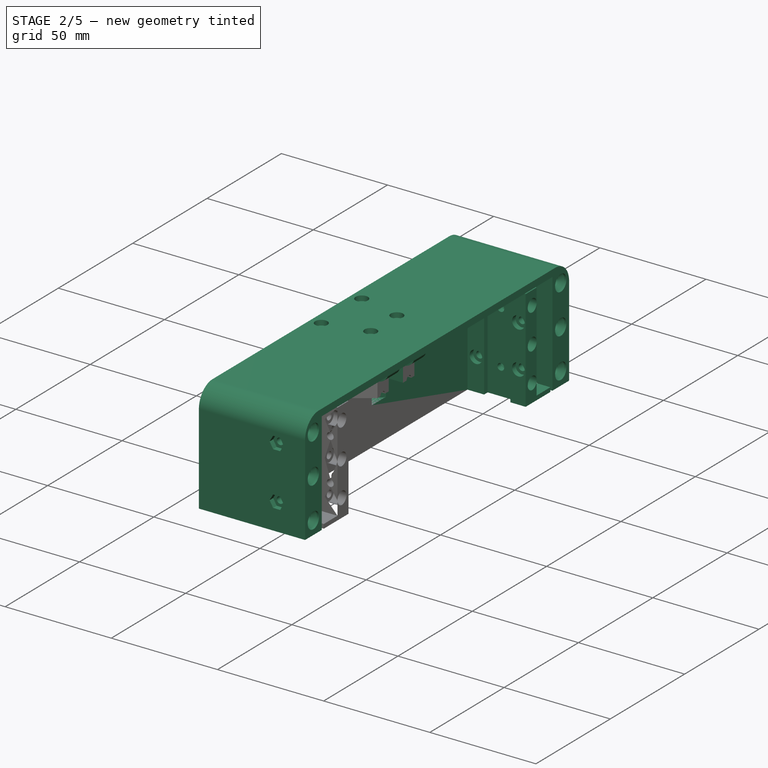
[diagram: stage 2 of 5 — iso view after this stage's code; geometry added in this stage tinted green]
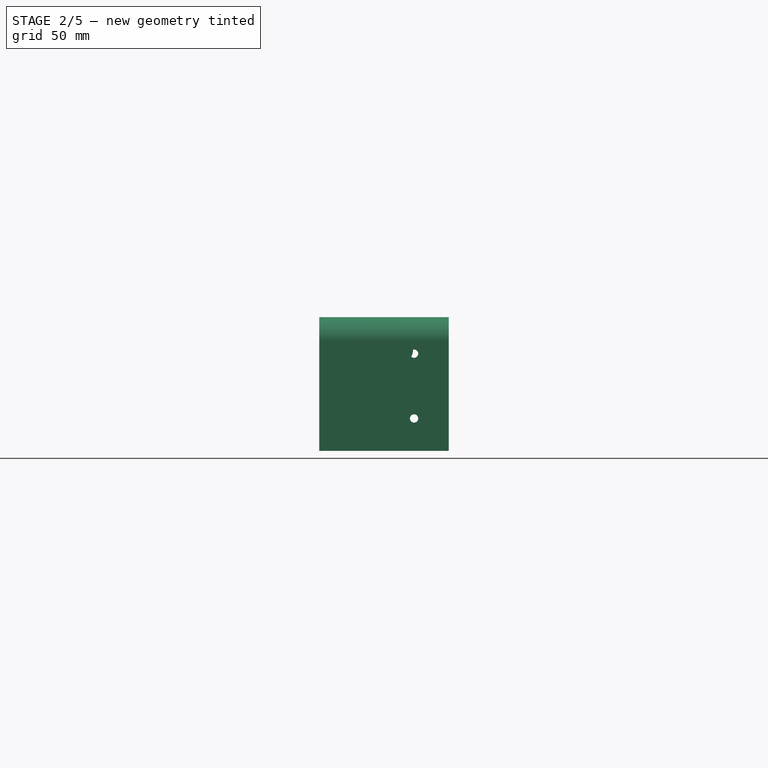
[diagram: stage 2 of 5 — front view after this stage's code; geometry added in this stage tinted green]
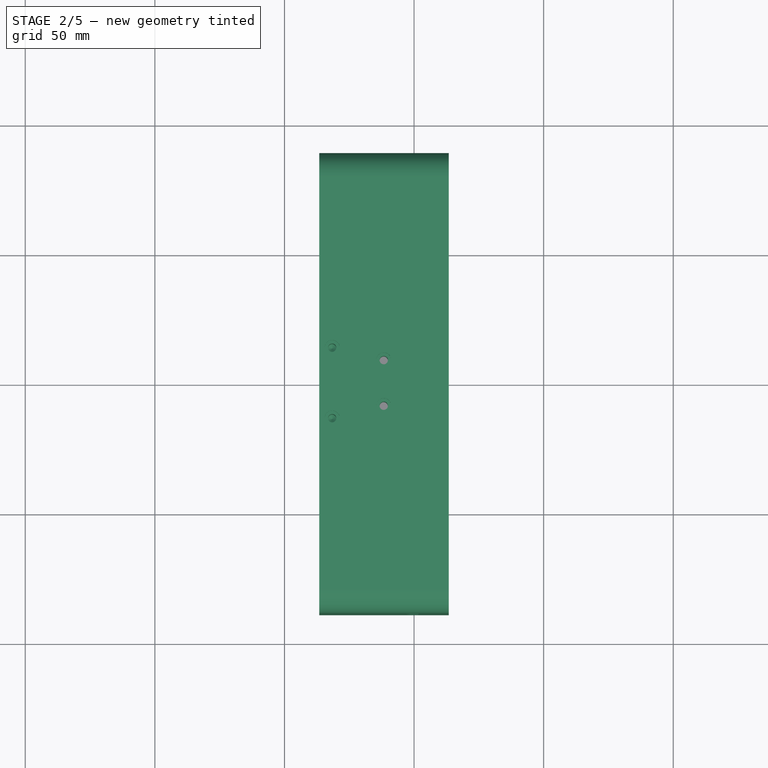
[diagram: stage 2 of 5 — top view after this stage's code; geometry added in this stage tinted green]
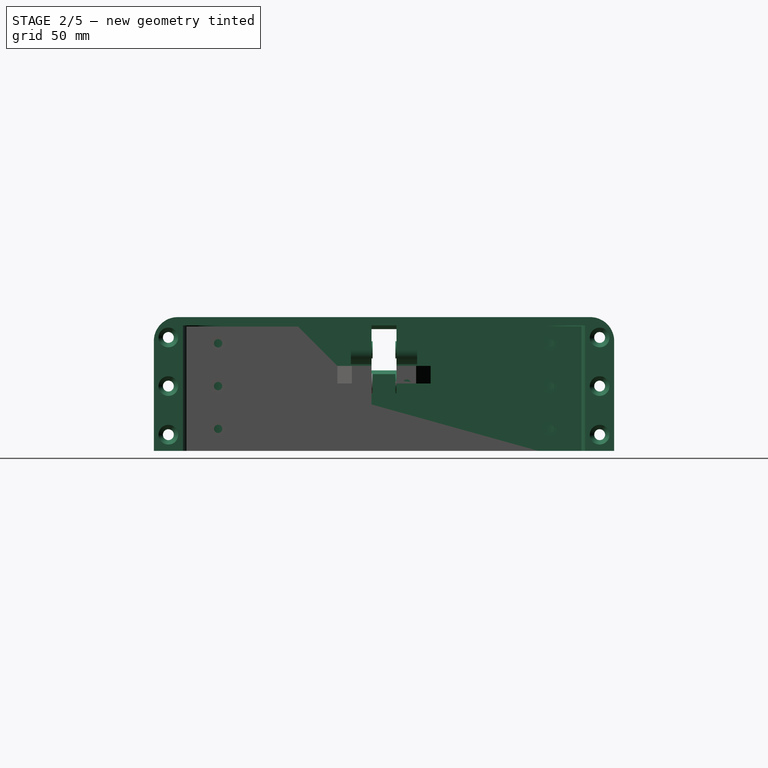
[diagram: stage 2 of 5 — right view after this stage's code; geometry added in this stage tinted green]
FEATURE [App::DocumentObjectGroup] GrExplode_Slice  label="F1B_Exploded Slice"
  Group = -> [Slice_child0,Slice_child1,Slice_child2,Slice_child3,Slice_child4]
FEATURE [PartDesign::SubShapeBinder] Binder006  label="F1T_Binder006_MGN"
  BindCopyOnChange = 0
  BindMode = 0
  ClaimChildren = false
  Context = -> Part [Body012.Binder006.]
  Fuse = false
  MakeFace = true
  OffsetFill = false
  OffsetIntersection = false
  OffsetJoinType = 0
  OffsetOpenResult = false
  PartialLoad = false
  Refine = true
  Relative = true
  Support = -> [Body003[Hole.Face2]]
  _Version = 2
FEATURE [Sketcher::SketchObject] Sketch043  label="F1T_Sketch043"
  ArcFitTolerance = 1e-06
  AttachmentOffset = pos=(0,0,250) rot=(0,0,1;0rad)
  AttachmentSupport = -> [XY_Plane015]
  ExternalGeometry = -> [Binder006]
  FullyConstrained = true
  MakeInternals = false
  MapMode = 5
  Placement = pos=(0,0,250) rot=(0,0,1;0rad)
  expr: .AttachmentOffset.Base.z = dd.SH_Length
  expr: Constraints[3] = dd.F1_X
  sketch-geometry (12):
    g0: LineSegment [constr] StartX=-31.6 StartY=0 StartZ=0 EndX=-31.6 EndY=-80 EndZ=0
    g1: ArcOfCircle CenterX=-12 CenterY=-63 CenterZ=0 NormalX=0 NormalY=0 NormalZ=1 AngleXU=0 Radius=14.6 StartAngle=3.14159 EndAngle=4.71239
    g2: LineSegment StartX=-12 StartY=-77.6 StartZ=0 EndX=-6.2 EndY=-77.6 EndZ=0
    g3: LineSegment StartX=-6.2 StartY=-77.6 StartZ=0 EndX=-6.2 EndY=-80 EndZ=0
    g4: LineSegment StartX=-6.2 StartY=-80 StartZ=0 EndX=6.2 EndY=-80 EndZ=0
    g5: LineSegment StartX=6.2 StartY=-80 StartZ=0 EndX=6.2 EndY=-77.6 EndZ=0
    g6: LineSegment StartX=6.2 StartY=-77.6 StartZ=0 EndX=13.4 EndY=-77.6 EndZ=0
    g7: LineSegment StartX=13.4 StartY=-77.6 StartZ=0 EndX=13.4 EndY=-88.8 EndZ=0
    g8: LineSegment StartX=13.4 StartY=-88.8 StartZ=0 EndX=-36.6 EndY=-88.8 EndZ=0
    g9: LineSegment StartX=-36.6 StartY=-88.8 StartZ=0 EndX=-36.6 EndY=0 EndZ=0
    g10: LineSegment StartX=-36.6 StartY=0 StartZ=0 EndX=-26.6 EndY=0 EndZ=0
    g11: LineSegment StartX=-26.6 StartY=0 StartZ=0 EndX=-26.6 EndY=-63 EndZ=0
  constraints (34):
    c: PointOnObject(g0,g-1)
    c: Vertical(g0)
    c: PointOnObject(g0,g-3)
    c: Distance(g0,g-2) = 31.6
    c: Horizontal(g2)
    c: Coincident(g2,g3)
    c: Vertical(g3)
    c: Coincident(g3,g4)
    c: Horizontal(g4)
    c: Coincident(g4,g5)
    c: Vertical(g5)
    c: Coincident(g5,g6)
    c: Horizontal(g6)
    c: Coincident(g6,g7)
    c: Vertical(g7)
    c: Coincident(g7,g8)
    c: Horizontal(g8)
    c: Coincident(g8,g9)
    c: PointOnObject(g9,g-1)
    c: Vertical(g9)
    c: Coincident(g9,g10)
    c: Coincident(g10,g11)
    c: Vertical(g11)
    c: Tangent(g11,g1) = -1.5708
    c: Tangent(g1,g2) = -1.5708
    c: Symmetric(g2,g5,g-2)
    c: PointOnObject(g-3,g4)
    c: Distance(g-3,g3) = 0.2
    c: Symmetric(g9,g10,g0)
    c: Distance(g6,g-2) = 13.4
    c: DistanceY(g7,g-3) = 8.8
    c: Distance(g3,g3) = 2.4
    c: Distance(g1,g-2) = 12
    c: Distance(g9,g10) = 10
FEATURE [PartDesign::Pad] Pad019  label="F1T_Pad019"
  Direction = (0,0,1)
  Length = 50
  Length2 = 10
  Profile = -> Sketch043
  ReferenceAxis = -> Sketch043 [N_Axis]
  Refine = true
  Reversed = true
  Suppressed = false
  Type = 0
FEATURE [Sketcher::SketchObject] Sketch044  label="F1T_Sketch044"
  ArcFitTolerance = 1e-06
  AttachmentSupport = -> [Pad019]
  ExternalGeometry = -> [Binder006]
  FullyConstrained = true
  MakeInternals = false
  MapMode = 5
  Placement = pos=(0,-88.8,0) rot=(1,0,0;1.5708rad)
  sketch-geometry (2):
    g0: Circle CenterX=0 CenterY=237.5 CenterZ=0 NormalX=0 NormalY=0 NormalZ=1 AngleXU=0 Radius=1.6
    g1: Circle CenterX=0 CenterY=212.5 CenterZ=0 NormalX=0 NormalY=0 NormalZ=1 AngleXU=0 Radius=1.6
  constraints (4):
    c: Coincident(g0,g-3)
    c: Coincident(g1,g-4)
    c: Equal(g1,g0)
    c: Diameter(g0) = 3.2
FEATURE [PartDesign::Pocket] Pocket013  label="F1T_Pocket013"
  BaseFeature = -> Pad019
  Direction = (0,1,-2e-16)
  Length = 5
  Length2 = 5
  Profile = -> Sketch044
  ReferenceAxis = -> Sketch044 [N_Axis]
  Refine = true
  Suppressed = false
  Type = 1
FEATURE [Sketcher::SketchObject] Sketch045  label="F1T_Sketch045"
  ArcFitTolerance = 1e-06
  AttachmentSupport = -> [Pocket013]
  ExternalGeometry = -> [Binder006]
  FullyConstrained = true
  MakeInternals = false
  MapMode = 5
  Placement = pos=(0,-88.8,0) rot=(1,0,0;1.5708rad)
  sketch-geometry (14):
    g0: LineSegment StartX=3.3 StartY=237.5 StartZ=0 EndX=1.65 EndY=240.358 EndZ=0
    g1: LineSegment StartX=1.65 StartY=240.358 StartZ=0 EndX=-1.65 EndY=240.358 EndZ=0
    g2: LineSegment StartX=-1.65 StartY=240.358 StartZ=0 EndX=-3.3 EndY=237.5 EndZ=0
    g3: LineSegment StartX=-3.3 StartY=237.5 StartZ=0 EndX=-1.65 EndY=234.642 EndZ=0
    g4: LineSegment StartX=-1.65 StartY=234.642 StartZ=0 EndX=1.65 EndY=234.642 EndZ=0
    g5: LineSegment StartX=1.65 StartY=234.642 StartZ=0 EndX=3.3 EndY=237.5 EndZ=0
    g6: Circle [constr] CenterX=0 CenterY=237.5 CenterZ=0 NormalX=0 NormalY=0 NormalZ=1 AngleXU=0 Radius=3.3
    g7: LineSegment StartX=3.3 StartY=212.5 StartZ=0 EndX=1.65 EndY=215.358 EndZ=0
    g8: LineSegment StartX=1.65 StartY=215.358 StartZ=0 EndX=-1.65 EndY=215.358 EndZ=0
    g9: LineSegment StartX=-1.65 StartY=215.358 StartZ=0 EndX=-3.3 EndY=212.5 EndZ=0
    g10: LineSegment StartX=-3.3 StartY=212.5 StartZ=0 EndX=-1.65 EndY=209.642 EndZ=0
    g11: LineSegment StartX=-1.65 StartY=209.642 StartZ=0 EndX=1.65 EndY=209.642 EndZ=0
    g12: LineSegment StartX=1.65 StartY=209.642 StartZ=0 EndX=3.3 EndY=212.5 EndZ=0
    g13: Circle [constr] CenterX=0 CenterY=212.5 CenterZ=0 NormalX=0 NormalY=0 NormalZ=1 AngleXU=0 Radius=3.3
  constraints (32):
    c: Coincident(g0,g1)
    c: Coincident(g1,g2)
    c: Coincident(g2,g3)
    c: Coincident(g3,g4)
    c: Coincident(g4,g5)
    c: Coincident(g5,g0)
    c: Equal(g0, g1-g5) x5
    c: PointOnObject(g0,g6)
    c: PointOnObject(g1,g6)
    c: PointOnObject(g2,g6)
    c: PointOnObject(g3,g6)
    c: PointOnObject(g4,g6)
    c: PointOnObject(g5,g6)
    c: Coincident(g6,g-3)
    c: Coincident(g7,g8)
    c: Coincident(g8,g9)
    c: Coincident(g9,g10)
    c: Coincident(g10,g11)
    c: Coincident(g11,g12)
    c: Coincident(g12,g7)
    c: Equal(g7, g8-g12) x5
    c: PointOnObject(g7,g13)
    c: PointOnObject(g8,g13)
    c: PointOnObject(g9,g13)
    c: PointOnObject(g10,g13)
    c: PointOnObject(g11,g13)
    c: PointOnObject(g12,g13)
    c: Coincident(g13,g-4)
    c: Equal(g6,g13)
    c: Diameter(g6) = 6.6
    c: Horizontal(g8)
    c: Horizontal(g4)
FEATURE [PartDesign::Pocket] Pocket014  label="F1T_Pocket014"
  BaseFeature = -> Pocket013
  Direction = (0,1,-2e-16)
  Length = 2.4
  Length2 = 5
  Profile = -> Sketch045
  ReferenceAxis = -> Sketch045 [N_Axis]
  Refine = true
  Suppressed = false
  Type = 0
FEATURE [Sketcher::SketchObject] Sketch046  label="F1T_Sketch046"
  ArcFitTolerance = 1e-06
  AttachmentSupport = -> [Pocket014]
  ExternalGeometry = -> [Pocket014]
  FullyConstrained = true
  MakeInternals = false
  MapMode = 5
  Placement = pos=(13.4,0,0) rot=(0.57735,0.57735,0.57735;2.0944rad)
  sketch-geometry (8):
    g0: LineSegment [constr] StartX=-83.2 StartY=250 StartZ=0 EndX=-83.2 EndY=243.75 EndZ=0
    g1: LineSegment [constr] StartX=-83.2 StartY=237.5 StartZ=0 EndX=-83.2 EndY=243.75 EndZ=0
    g2: LineSegment [constr] StartX=-83.2 StartY=200 StartZ=0 EndX=-83.2 EndY=206.25 EndZ=0
    g3: LineSegment [constr] StartX=-83.2 StartY=212.5 StartZ=0 EndX=-83.2 EndY=225 EndZ=0
    g4: LineSegment [constr] StartX=-83.2 StartY=237.5 StartZ=0 EndX=-83.2 EndY=225 EndZ=0
    g5: Circle CenterX=-83.2 CenterY=243.75 CenterZ=0 NormalX=0 NormalY=0 NormalZ=1 AngleXU=0 Radius=2.1
    g6: Circle CenterX=-83.2 CenterY=225 CenterZ=0 NormalX=0 NormalY=0 NormalZ=1 AngleXU=0 Radius=2.1
    g7: Circle CenterX=-83.2 CenterY=206.25 CenterZ=0 NormalX=0 NormalY=0 NormalZ=1 AngleXU=0 Radius=2.1
  constraints (23):
    c: Vertical(g0)
    c: PointOnObject(g1,g-6)
    c: Coincident(g1,g0)
    c: Vertical(g1)
    c: Equal(g1,g0)
    c: Vertical(g2)
    c: Equal(g2,g0)
    c: PointOnObject(g3,g-5)
    c: Vertical(g3)
    c: Coincident(g4,g3)
    c: Vertical(g4)
    c: Coincident(g4,g1)
    c: Equal(g4,g3)
    c: Coincident(g5,g0)
    c: Coincident(g6,g3)
    c: Coincident(g7,g2)
    c: Equal(g7,g6)
    c: Equal(g6,g5)
    c: Diameter(g5) = 4.2
    c: PointOnObject(g2,g0)
    c: PointOnObject(g2,g-4)
    c: PointOnObject(g0,g-3)
    c: Distance(g0,g-3) = 5.6
FEATURE [PartDesign::Hole] Hole005  label="F1T_Hole005"
  BaseFeature = -> Pocket014
  CustomThreadClearance = 0
  Depth = 229.298
  DepthType = 1
  Diameter = 4.2
  DrillForDepth = false
  DrillPoint = 1
  DrillPointAngle = 118
  HoleCutCountersinkAngle = 90
  HoleCutCustomValues = false
  HoleCutDepth = 1
  HoleCutDiameter = 7.6
  HoleCutType = 3
  ModelThread = false
  Profile = -> Sketch046
  Refine = true
  Suppressed = false
  Tapered = false
  TaperedAngle = 90
  ThreadClass = 0
  ThreadDepth = 229.298
  ThreadDepthType = 0
  ThreadDirection = 0
  ThreadFit = 0
  ThreadSize = 0
  ThreadType = 0
  Threaded = false
  UseCustomThreadClearance = false
FEATURE [Sketcher::SketchObject] Sketch047  label="F1T_Sketch047"
  ArcFitTolerance = 1e-06
  AttachmentSupport = -> [Hole005]
  ExternalGeometry = -> [Hole005]
  FullyConstrained = true
  MakeInternals = false
  MapMode = 5
  Placement = pos=(-36.6,0,0) rot=(0.57735,-0.57735,-0.57735;2.0944rad)
  sketch-geometry (21):
    g0: LineSegment StartX=79.7359 StartY=208.25 StartZ=0 EndX=79.7359 EndY=204.25 EndZ=0
    g1: LineSegment StartX=79.7359 StartY=204.25 StartZ=0 EndX=83.2 EndY=202.25 EndZ=0
    g2: LineSegment StartX=83.2 StartY=202.25 StartZ=0 EndX=86.6641 EndY=204.25 EndZ=0
    g3: LineSegment StartX=86.6641 StartY=204.25 StartZ=0 EndX=86.6641 EndY=208.25 EndZ=0
    g4: LineSegment StartX=86.6641 StartY=208.25 StartZ=0 EndX=83.2 EndY=210.25 EndZ=0
    g5: LineSegment StartX=83.2 StartY=210.25 StartZ=0 EndX=79.7359 EndY=208.25 EndZ=0
    g6: Circle [constr] CenterX=83.2 CenterY=206.25 CenterZ=0 NormalX=0 NormalY=0 NormalZ=1 AngleXU=0 Radius=4
    g7: LineSegment StartX=79.7359 StartY=227 StartZ=0 EndX=79.7359 EndY=223 EndZ=0
    g8: LineSegment StartX=79.7359 StartY=223 StartZ=0 EndX=83.2 EndY=221 EndZ=0
    g9: LineSegment StartX=83.2 StartY=221 StartZ=0 EndX=86.6641 EndY=223 EndZ=0
    g10: LineSegment StartX=86.6641 StartY=223 StartZ=0 EndX=86.6641 EndY=227 EndZ=0
    g11: LineSegment StartX=86.6641 StartY=227 StartZ=0 EndX=83.2 EndY=229 EndZ=0
    g12: LineSegment StartX=83.2 StartY=229 StartZ=0 EndX=79.7359 EndY=227 EndZ=0
    g13: Circle [constr] CenterX=83.2 CenterY=225 CenterZ=0 NormalX=0 NormalY=0 NormalZ=1 AngleXU=0 Radius=4
    g14: LineSegment StartX=79.7359 StartY=241.75 StartZ=0 EndX=83.2 EndY=239.75 EndZ=0
    g15: LineSegment StartX=83.2 StartY=239.75 StartZ=0 EndX=86.6641 EndY=241.75 EndZ=0
    g16: LineSegment StartX=86.6641 StartY=241.75 StartZ=0 EndX=86.6641 EndY=245.75 EndZ=0
    g17: LineSegment StartX=86.6641 StartY=245.75 StartZ=0 EndX=83.2 EndY=247.75 EndZ=0
    g18: LineSegment StartX=83.2 StartY=247.75 StartZ=0 EndX=79.7359 EndY=245.75 EndZ=0
    g19: LineSegment StartX=79.7359 StartY=245.75 StartZ=0 EndX=79.7359 EndY=241.75 EndZ=0
    g20: Circle [constr] CenterX=83.2 CenterY=243.75 CenterZ=0 NormalX=0 NormalY=0 NormalZ=1 AngleXU=0 Radius=4
  constraints (48):
    c: Coincident(g0,g1)
    c: Coincident(g1,g2)
    c: Coincident(g2,g3)
    c: Coincident(g3,g4)
    c: Coincident(g4,g5)
    c: Coincident(g5,g0)
    c: Equal(g0, g1-g5) x5
    c: PointOnObject(g0,g6)
    c: PointOnObject(g1,g6)
    c: PointOnObject(g2,g6)
    c: PointOnObject(g3,g6)
    c: PointOnObject(g4,g6)
    c: PointOnObject(g5,g6)
    c: Coincident(g6,g-5)
    c: Coincident(g7,g8)
    c: Coincident(g8,g9)
    c: Coincident(g9,g10)
    c: Coincident(g10,g11)
    c: Coincident(g11,g12)
    c: Coincident(g12,g7)
    c: Equal(g7, g8-g12) x5
    c: PointOnObject(g7,g13)
    c: PointOnObject(g8,g13)
    c: PointOnObject(g9,g13)
    c: PointOnObject(g10,g13)
    c: PointOnObject(g11,g13)
    c: PointOnObject(g12,g13)
    c: Coincident(g13,g-4)
    c: Coincident(g14,g15)
    c: Coincident(g15,g16)
    c: Coincident(g16,g17)
    c: Coincident(g17,g18)
    c: Coincident(g18,g19)
    c: Coincident(g19,g14)
    c: Equal(g14, g15-g19) x5
    c: PointOnObject(g14,g20)
    c: PointOnObject(g15,g20)
    c: PointOnObject(g16,g20)
    c: PointOnObject(g17,g20)
    c: PointOnObject(g18,g20)
    c: PointOnObject(g19,g20)
    c: Coincident(g20,g-3)
    c: Equal(g20,g13)
    c: Equal(g13,g6)
    c: Diameter(g20) = 8
    c: Vertical(g19)
    c: Vertical(g7)
    c: Vertical(g0)
FEATURE [PartDesign::Pocket] Pocket015  label="F1T_Pocket015"
  BaseFeature = -> Hole005
  Direction = (1,0,0)
  Length = 3.2
  Length2 = 5
  Profile = -> Sketch047
  ReferenceAxis = -> Sketch047 [N_Axis]
  Refine = true
  Suppressed = false
  Type = 0
FEATURE [Sketcher::SketchObject] Sketch048  label="F1T_Sketch048"
  ArcFitTolerance = 1e-06
  AttachmentSupport = -> [Pocket015]
  ExternalGeometry = -> [Pocket015]
  FullyConstrained = true
  MakeInternals = false
  MapMode = 5
  Placement = pos=(0,0,250) rot=(0,0,1;0rad)
  expr: Constraints[29] = dd.F2_Y
  sketch-geometry (12):
    g0: LineSegment StartX=-6.2 StartY=-80 StartZ=0 EndX=6.2 EndY=-80 EndZ=0
    g1: LineSegment StartX=6.2 StartY=-80 StartZ=0 EndX=6.2 EndY=-71.6 EndZ=0
    g2: LineSegment StartX=6.2 StartY=-71.6 StartZ=0 EndX=-6.2 EndY=-71.6 EndZ=0
    g3: LineSegment StartX=-6.2 StartY=-71.6 StartZ=0 EndX=-6.2 EndY=-80 EndZ=0
    g4: LineSegment StartX=-36.6 StartY=0 StartZ=0 EndX=-36.6 EndY=-88.8 EndZ=0
    g5: LineSegment StartX=-36.6 StartY=-88.8 StartZ=0 EndX=13.4 EndY=-88.8 EndZ=0
    g6: LineSegment StartX=13.4 StartY=-88.8 StartZ=0 EndX=13.4 EndY=0 EndZ=0
    g7: LineSegment StartX=13.4 StartY=0 StartZ=0 EndX=-36.6 EndY=0 EndZ=0
    g8: LineSegment StartX=-6.2 StartY=-53.6 StartZ=0 EndX=-6.2 EndY=-62 EndZ=0
    g9: LineSegment StartX=-6.2 StartY=-62 StartZ=0 EndX=6.2 EndY=-62 EndZ=0
    g10: LineSegment StartX=6.2 StartY=-62 StartZ=0 EndX=6.2 EndY=-53.6 EndZ=0
    g11: LineSegment StartX=6.2 StartY=-53.6 StartZ=0 EndX=-6.2 EndY=-53.6 EndZ=0
  constraints (33):
    c: Coincident(g0,g1)
    c: Coincident(g1,g2)
    c: Coincident(g2,g3)
    c: Coincident(g3,g0)
    c: Horizontal(g0)
    c: Horizontal(g2)
    c: Vertical(g1)
    c: Vertical(g3)
    c: Coincident(g0,g-5)
    c: PointOnObject(g-6,g1)
    c: DistanceY(g1,g1) = 8.4
    c: Coincident(g4,g5)
    c: Coincident(g5,g6)
    c: Coincident(g6,g7)
    c: Coincident(g7,g4)
    c: Vertical(g4)
    c: Vertical(g6)
    c: Horizontal(g5)
    c: Horizontal(g7)
    c: Coincident(g4,g-4)
    c: Coincident(g5,g-3)
    c: Coincident(g8,g9)
    c: Coincident(g9,g10)
    c: Coincident(g10,g11)
    c: Coincident(g11,g8)
    c: Vertical(g8)
    c: Vertical(g10)
    c: Horizontal(g9)
    c: Horizontal(g11)
    c: Distance(g9,g-1) = 62
    c: PointOnObject(g9,g1)
    c: PointOnObject(g8,g3)
    c: Equal(g8,g3)
FEATURE [PartDesign::Pad] Pad020  label="F1T_Pad020"
  BaseFeature = -> Pocket015
  Direction = (0,0,1)
  Length = 1.6
  Length2 = 10
  Profile = -> Sketch048
  ReferenceAxis = -> Sketch048 [N_Axis]
  Refine = true
  Reversed = true
  Suppressed = false
  Type = 0
FEATURE [App::DocumentObjectGroup] GrExplode_Slice001  label="G1_Exploded Slice001"
  Group = -> [Slice001_child0,Slice001_child1]
FEATURE [PartDesign::Pad] Pad021  label="F1T_Pad021"
  BaseFeature = -> Pad020
  Direction = (0,0,1)
  Length = 1.6
  Length2 = 10
  Profile = -> Sketch048 [Edge6,Edge5,Edge8,Edge7]
  ReferenceAxis = -> Sketch048 [N_Axis]
  Refine = true
  Suppressed = false
  Type = 0
FEATURE [PartDesign::Fillet] Fillet  label="F1T_Fillet000"
  Base = -> Pad021 [Edge92]
  BaseFeature = -> Pad021
  Radius = 9.2
  Refine = true
  SupportTransform = false
  Suppressed = false
  UseAllEdges = false
FEATURE [Sketcher::SketchObject] Sketch049  label="F1T_Sketch049"
  ArcFitTolerance = 1e-06
  AttachmentOffset = pos=(0,0,4.8) rot=(0,0,1;0rad)
  AttachmentSupport = -> [XZ_Plane015]
  ExternalGeometry = -> [Fillet]
  FullyConstrained = true
  MakeInternals = false
  MapMode = 5
  Placement = pos=(0,-4.8,1.1e-15) rot=(1,0,0;1.5708rad)
  expr: Constraints[12] = dd.SH_Length - 11 mm
  sketch-geometry (5):
    g0: ArcOfCircle CenterX=-6 CenterY=239 CenterZ=0 NormalX=0 NormalY=0 NormalZ=1 AngleXU=0 Radius=5.6 StartAngle=4.71239 EndAngle=6.28319
    g1: LineSegment StartX=-26.6 StartY=248.4 StartZ=0 EndX=-26.6 EndY=233.4 EndZ=0
    g2: LineSegment StartX=-26.6 StartY=233.4 StartZ=0 EndX=-6 EndY=233.4 EndZ=0
    g3: LineSegment StartX=-26.6 StartY=248.4 StartZ=0 EndX=-0.4 EndY=248.4 EndZ=0
    g4: LineSegment StartX=-0.4 StartY=248.4 StartZ=0 EndX=-0.4 EndY=239 EndZ=0
  constraints (13):
    c: Coincident(g-3,g1)
    c: Vertical(g1)
    c: Coincident(g1,g2)
    c: Horizontal(g2)
    c: Coincident(g1,g3)
    c: Horizontal(g3)
    c: Coincident(g3,g4)
    c: Vertical(g4)
    c: Tangent(g0,g4) = 1.5708
    c: Tangent(g0,g2) = -1.5708
    c: Distance(g3,g-2) = 0.4
    c: Distance(g0,g-2) = 6
    c: Distance(g0,g-1) = 239
FEATURE [PartDesign::Pad] Pad022  label="F1T_Pad022"
  BaseFeature = -> Fillet
  Direction = (0,-1,2e-16)
  Length = 8
  Length2 = 0.4
  Profile = -> Sketch049
  ReferenceAxis = -> Sketch049 [N_Axis]
  Refine = true
  Suppressed = false
  Type = 4
FEATURE [Sketcher::SketchObject] Sketch050  label="F1T_Sketch050"
  ArcFitTolerance = 1e-06
  AttachmentSupport = -> [XZ_Plane015]
  FullyConstrained = true
  MakeInternals = false
  MapMode = 5
  Placement = pos=(0,0,0) rot=(1,0,0;1.5708rad)
  expr: Constraints[1] = dd.SH_Length - 11 mm
  expr: Constraints[3] = dd.F1_X
  sketch-geometry (3):
    g0: LineSegment [constr] StartX=-6 StartY=239 StartZ=0 EndX=-31.6 EndY=239 EndZ=0
    g1: Circle CenterX=-6 CenterY=239 CenterZ=0 NormalX=0 NormalY=0 NormalZ=1 AngleXU=0 Radius=2.5
    g2: Circle CenterX=-31.6 CenterY=239 CenterZ=0 NormalX=0 NormalY=0 NormalZ=1 AngleXU=0 Radius=2.5
  constraints (8):
    c: Horizontal(g0)
    c: Distance(g0,g-1) = 239
    c: Distance(g0,g-2) = 6
    c: Distance(g0,g-2) = 31.6
    c: Coincident(g1,g0)
    c: Coincident(g2,g0)
    c: Equal(g2,g1)
    c: Diameter(g2) = 5
FEATURE [PartDesign::Pocket] Pocket016  label="F1T_Pocket016"
  BaseFeature = -> Pad022
  Direction = (0,1,-2e-16)
  Length = 10.4
  Length2 = 5
  Profile = -> Sketch050
  ReferenceAxis = -> Sketch050 [N_Axis]
  Refine = true
  Reversed = true
  Suppressed = false
  Type = 0
FEATURE [Sketcher::SketchObject] Sketch051  label="F1T_Sketch051"
  ArcFitTolerance = 1e-06
  AttachmentSupport = -> [XZ_Plane015]
  ExternalGeometry = -> [Pocket016]
  FullyConstrained = true
  MakeInternals = false
  MapMode = 5
  Placement = pos=(0,0,0) rot=(1,0,0;1.5708rad)
  sketch-geometry (6):
    g0: Circle CenterX=-31.6 CenterY=239 CenterZ=0 NormalX=0 NormalY=0 NormalZ=1 AngleXU=0 Radius=3.3
    g1: Circle CenterX=-6 CenterY=239 CenterZ=0 NormalX=0 NormalY=0 NormalZ=1 AngleXU=0 Radius=3.3
    g2: ArcOfCircle CenterX=-31.6 CenterY=239 CenterZ=0 NormalX=0 NormalY=0 NormalZ=1 AngleXU=0 Radius=9.4 StartAngle=1.5708 EndAngle=4.71239
    g3: LineSegment StartX=-31.6 StartY=248.4 StartZ=0 EndX=0 EndY=248.4 EndZ=0
    g4: LineSegment StartX=-31.6 StartY=229.6 StartZ=0 EndX=0 EndY=229.6 EndZ=0
    g5: LineSegment StartX=0 StartY=229.6 StartZ=0 EndX=0 EndY=248.4 EndZ=0
  constraints (14):
    c: Coincident(g0,g-4)
    c: Coincident(g1,g-3)
    c: Equal(g1,g0)
    c: Diameter(g0) = 6.6
    c: Tangent(g2,g3) = 1.5708
    c: Tangent(g2,g4) = -1.5708
    c: Coincident(g0,g2)
    c: Coincident(g5,g4)
    c: Coincident(g5,g3)
    c: Vertical(g5)
    c: PointOnObject(g3,g-2)
    c: Horizontal(g3)
    c: Horizontal(g4)
    c: Radius(g2) = 9.4
FEATURE [PartDesign::Pocket] Pocket017  label="F1T_Pocket017"
  BaseFeature = -> Pocket016
  Direction = (0,1,-2e-16)
  Length = 4.8
  Length2 = 5
  Profile = -> Sketch051
  ReferenceAxis = -> Sketch051 [N_Axis]
  Refine = true
  Reversed = true
  Suppressed = false
  Type = 0
FEATURE [PartDesign::Pocket] Pocket018  label="F1T_Pocket018"
  BaseFeature = -> Pocket017
  Direction = (0,1,-2e-16)
  Length = 4.4
  Length2 = 5
  Profile = -> Sketch051 [Edge1]
  ReferenceAxis = -> Sketch051 [N_Axis]
  Refine = true
  Reversed = true
  Suppressed = false
  Type = 0
FEATURE [Sketcher::SketchObject] Sketch052  label="F1T_Sketch052"
  ArcFitTolerance = 1e-06
  AttachmentSupport = -> [Pocket018]
  ExternalGeometry = -> [Pocket018]
  FullyConstrained = true
  MakeInternals = false
  MapMode = 5
  Placement = pos=(0,0,251.6) rot=(0,0,1;0rad)
  sketch-geometry (4):
    g0: Circle CenterX=-31.6 CenterY=-13.6 CenterZ=0 NormalX=0 NormalY=0 NormalZ=1 AngleXU=0 Radius=1.6
    g1: Circle CenterX=-11.7 CenterY=-8.8 CenterZ=0 NormalX=0 NormalY=0 NormalZ=1 AngleXU=0 Radius=1.6
    g2: LineSegment [constr] StartX=-0.4 StartY=-8.8 StartZ=0 EndX=-11.7 EndY=-8.8 EndZ=0
    g3: LineSegment [constr] StartX=-31.6 StartY=-10.4 StartZ=0 EndX=-31.6 EndY=-13.6 EndZ=0
  constraints (10):
    c: Symmetric(g-3,g-3,g2)
    c: Coincident(g2,g1)
    c: Horizontal(g2)
    c: Symmetric(g-4,g-4,g3)
    c: Coincident(g3,g0)
    c: Vertical(g3)
    c: DistanceY(g0,g-4) = 3.2
    c: Diameter(g0) = 3.2
    c: DistanceX(g1,g-5) = 3.2
    c: Equal(g1,g0)
FEATURE [PartDesign::Hole] Hole006  label="F1T_Hole006"
  BaseFeature = -> Pocket018
  CustomThreadClearance = 0
  Depth = 18.8
  DepthType = 0
  Diameter = 3.2
  DrillForDepth = false
  DrillPoint = 1
  DrillPointAngle = 105
  HoleCutCountersinkAngle = 179
  HoleCutCustomValues = false
  HoleCutDepth = 2.4
  HoleCutDiameter = 5.8
  HoleCutType = 3
  ModelThread = false
  Profile = -> Sketch052
  Refine = true
  Suppressed = false
  Tapered = false
  TaperedAngle = 90
  ThreadClass = 0
  ThreadDepth = 18.8
  ThreadDepthType = 0
  ThreadDirection = 0
  ThreadFit = 0
  ThreadSize = 0
  ThreadType = 0
  Threaded = false
  UseCustomThreadClearance = false
FEATURE [Sketcher::SketchObject] Sketch053  label="F1T_Sketch053"
  ArcFitTolerance = 1e-06
  AttachmentOffset = pos=(0,0,-16) rot=(0,0,1;0rad)
  AttachmentSupport = -> [Hole006]
  ExternalGeometry = -> [Hole006]
  FullyConstrained = true
  MakeInternals = false
  MapMode = 5
  Placement = pos=(0,0,235.6) rot=(0,0,1;0rad)
  sketch-geometry (17):
    g0: LineSegment StartX=-28.4 StartY=-13.6 StartZ=0 EndX=-30 EndY=-10.8287 EndZ=0
    g1: LineSegment [constr] StartX=-30 StartY=-10.8287 StartZ=0 EndX=-33.2 EndY=-10.8287 EndZ=0
    g2: LineSegment [constr] StartX=-33.2 StartY=-10.8287 StartZ=0 EndX=-34.8 EndY=-13.6 EndZ=0
    g3: LineSegment [constr] StartX=-34.8 StartY=-13.6 StartZ=0 EndX=-33.2 EndY=-16.3713 EndZ=0
    g4: LineSegment [constr] StartX=-33.2 StartY=-16.3713 StartZ=0 EndX=-30 EndY=-16.3713 EndZ=0
    g5: LineSegment StartX=-30 StartY=-16.3713 StartZ=0 EndX=-28.4 EndY=-13.6 EndZ=0
    g6: Circle [constr] CenterX=-31.6 CenterY=-13.6 CenterZ=0 NormalX=0 NormalY=0 NormalZ=1 AngleXU=0 Radius=3.2
    g7: LineSegment StartX=-14.9 StartY=-8.8 StartZ=0 EndX=-13.3 EndY=-11.5713 EndZ=0
    g8: LineSegment StartX=-13.3 StartY=-11.5713 StartZ=0 EndX=-10.1 EndY=-11.5713 EndZ=0
    g9: LineSegment StartX=-10.1 StartY=-11.5713 StartZ=0 EndX=-8.5 EndY=-8.8 EndZ=0
    g10: LineSegment StartX=-8.5 StartY=-8.8 StartZ=0 EndX=-10.1 EndY=-6.02872 EndZ=0
    g11: LineSegment StartX=-10.1 StartY=-6.02872 StartZ=0 EndX=-13.3 EndY=-6.02872 EndZ=0
    g12: LineSegment StartX=-13.3 StartY=-6.02872 StartZ=0 EndX=-14.9 EndY=-8.8 EndZ=0
    g13: Circle [constr] CenterX=-11.7 CenterY=-8.8 CenterZ=0 NormalX=0 NormalY=0 NormalZ=1 AngleXU=0 Radius=3.2
    g14: LineSegment StartX=-30 StartY=-10.8287 StartZ=0 EndX=-36.6 EndY=-10.8287 EndZ=0
    g15: LineSegment StartX=-36.6 StartY=-10.8287 StartZ=0 EndX=-36.6 EndY=-16.3713 EndZ=0
    g16: LineSegment StartX=-36.6 StartY=-16.3713 StartZ=0 EndX=-30 EndY=-16.3713 EndZ=0
  constraints (40):
    c: Coincident(g0,g1)
    c: Coincident(g1,g2)
    c: Coincident(g2,g3)
    c: Coincident(g3,g4)
    c: Coincident(g4,g5)
    c: Coincident(g5,g0)
    c: Equal(g0, g1-g5) x5
    c: PointOnObject(g0,g6)
    c: PointOnObject(g1,g6)
    c: PointOnObject(g2,g6)
    c: PointOnObject(g3,g6)
    c: PointOnObject(g4,g6)
    c: PointOnObject(g5,g6)
    c: Coincident(g6,g-4)
    c: Coincident(g7,g8)
    c: Coincident(g8,g9)
    c: Coincident(g9,g10)
    c: Coincident(g10,g11)
    c: Coincident(g11,g12)
    c: Coincident(g12,g7)
    c: Equal(g7, g8-g12) x5
    c: PointOnObject(g7,g13)
    c: PointOnObject(g8,g13)
    c: PointOnObject(g9,g13)
    c: PointOnObject(g10,g13)
    c: PointOnObject(g11,g13)
    c: PointOnObject(g12,g13)
    c: Coincident(g13,g-3)
    c: Equal(g6,g13)
    c: Diameter(g13) = 6.4
    c: Horizontal(g11)
    c: Horizontal(g1)
    c: Coincident(g0,g14)
    c: PointOnObject(g14,g-5)
    c: Horizontal(g14)
    c: Coincident(g14,g15)
    c: PointOnObject(g15,g-5)
    c: Coincident(g15,g16)
    c: Coincident(g16,g4)
    c: Horizontal(g16)
FEATURE [PartDesign::Pocket] Pocket019  label="F1T_Pocket019"
  BaseFeature = -> Hole006
  Direction = (0,0,-1)
  Length = 2.4
  Length2 = 5
  Profile = -> Sketch053
  ReferenceAxis = -> Sketch053 [N_Axis]
  Refine = true
  Suppressed = false
  Type = 0
FEATURE [PartDesign::Mirrored] Mirrored001  label="F1T_Mirrored001"
  BaseFeature = -> Pocket019
  MirrorPlane = -> XZ_Plane015
  Refine = true
  Suppressed = false
  TransformMode = 1
FEATURE [PartDesign::SubShapeBinder] Binder013  label="F2T_Binder013"
  BindCopyOnChange = 0
  BindMode = 0
  ClaimChildren = false
  Context = -> Part001 [Part003.Body015.Binder013.]
  Fuse = false
  MakeFace = true
  OffsetFill = false
  OffsetIntersection = false
  OffsetJoinType = 0
  OffsetOpenResult = false
  PartialLoad = false
  Refine = true
  Relative = true
  Support = -> [Body014]
  _Version = 2
FEATURE [PartDesign::Mirrored] Mirrored002
  BaseFeature = -> Chamfer002
  MirrorPlane = -> XZ_Plane018
  Refine = true
  Suppressed = false
  TransformMode = 1
FEATURE [PartDesign::Body] Body015  label="F2T_Split"
  AllowCompound = false
  Group = -> [Binder013,Sketch068,Pad028]
  Origin = -> Origin019
  Tip = -> Pad028
FEATURE [Part::FeaturePython] Slice003  # WARN: FeaturePython — macro-defined, semantics opaque (R4)
  Base = -> Body014
  Mode = 1
  Tolerance = 0
  Tools = -> [Body015]
FEATURE [Part::FeaturePython] Slice003_child0  label="Slice003.0"  # WARN: FeaturePython — macro-defined, semantics opaque (R4)
  Base = -> Slice003
  FilterType = 1
  Invert = false
  OverrideMaxVal = 0
  WindowFrom = 80
  WindowTo = 100
  items = 0
FEATURE [Part::FeaturePython] Slice003_child1  label="Slice003.1"  # WARN: FeaturePython — macro-defined, semantics opaque (R4)
  Base = -> Slice003
  FilterType = 1
  Invert = false
  OverrideMaxVal = 0
  WindowFrom = 80
  WindowTo = 100
  items = 1
FEATURE [Part::FeaturePython] Slice003_child2  label="Slice003.2"  # WARN: FeaturePython — macro-defined, semantics opaque (R4)
  Base = -> Slice003
  FilterType = 1
  Invert = false
  OverrideMaxVal = 0
  WindowFrom = 80
  WindowTo = 100
  items = 2
FEATURE [App::DocumentObjectGroup] GrExplode_Slice003  label="F2T_Exploded Slice003"
  Group = -> [Slice003_child0,Slice003_child1,Slice003_child2]
FEATURE [App::Part] Part003  label="Frame2Top"
  Group = -> [Body014,Body015,Slice003,Slice003_child1,Slice003_child0,Slice003_child2,GrExplode_Slice003]
  Origin = -> Origin017
FEATURE [App::Part] Part001  label="Frame2"
  Group = -> [Body002,Body005,Part003]
  Origin = -> Origin003
  Placement = pos=(108,0,0) rot=(0,0,1;0rad)
  expr: .Placement.Base.x = dd.F_X
  expr: .Placement.Base.z = -dd.Position / 2
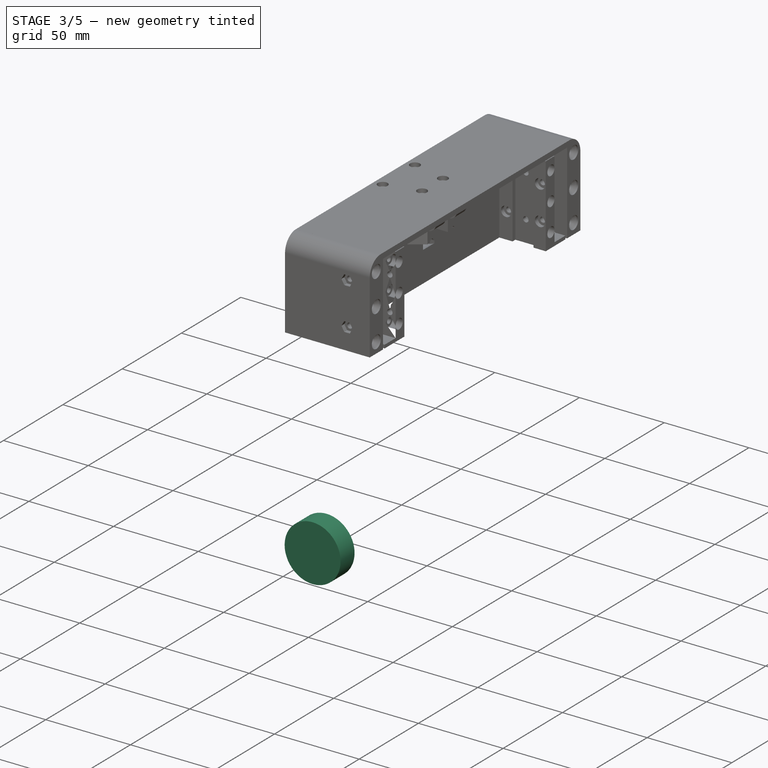
[diagram: stage 3 of 5 — iso view after this stage's code; geometry added in this stage tinted green]
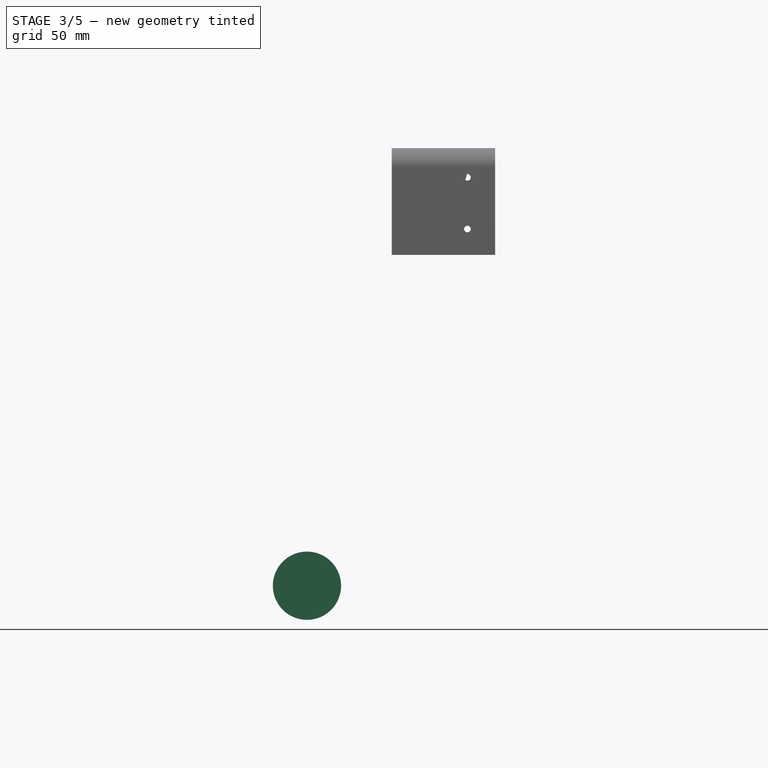
[diagram: stage 3 of 5 — front view after this stage's code; geometry added in this stage tinted green]
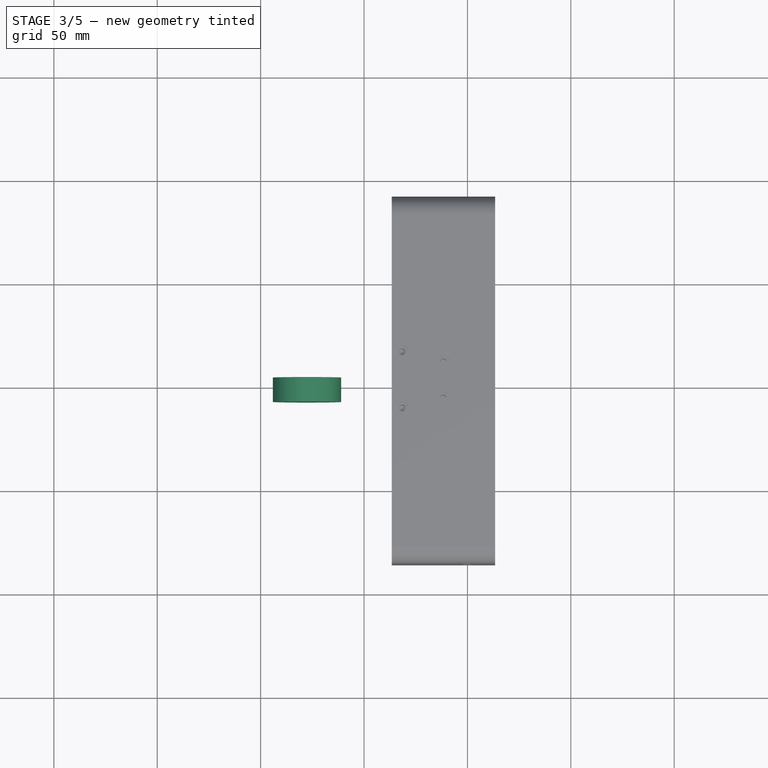
[diagram: stage 3 of 5 — top view after this stage's code; geometry added in this stage tinted green]
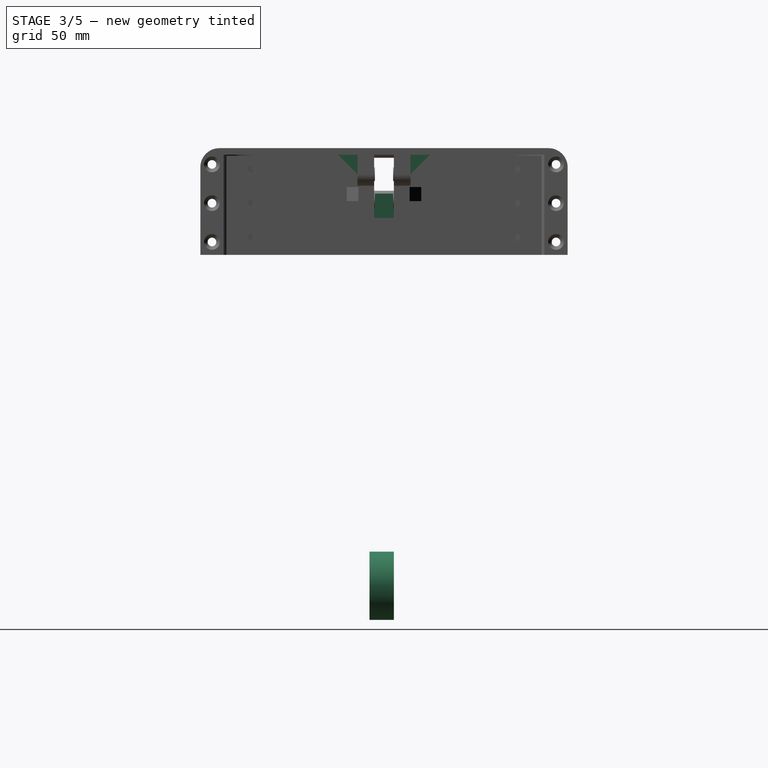
[diagram: stage 3 of 5 — right view after this stage's code; geometry added in this stage tinted green]
FEATURE [PartDesign::Body] Body003  label="F1_MGN12"
  AllowCompound = false
  Group = -> [Sketch008,Pad,Sketch,Hole]
  Origin = -> Origin005
  Placement = pos=(0,-80,0) rot=(0,0,1;0rad)
  Tip = -> Hole
  expr: .Placement.Base.y = -dd.F1_Y
FEATURE [Sketcher::SketchObject] Sketch009  label="CG_Sketch000"
  ArcFitTolerance = 1e-06
  AttachmentSupport = -> [YZ_Plane006]
  FullyConstrained = true
  MakeInternals = false
  MapMode = 5
  Placement = pos=(0,0,0) rot=(0.57735,0.57735,0.57735;2.0944rad)
  sketch-geometry (23):
    g0: LineSegment [constr] StartX=10.3923 StartY=-6 StartZ=0 EndX=12 EndY=-9e-16 EndZ=0
    g1: LineSegment [constr] StartX=12 StartY=-9e-16 StartZ=0 EndX=10.3923 EndY=6 EndZ=0
    g2: LineSegment [constr] StartX=10.3923 StartY=6 StartZ=0 EndX=6 EndY=10.3923 EndZ=0
    g3: LineSegment [constr] StartX=6 StartY=10.3923 StartZ=0 EndX=0 EndY=12 EndZ=0
    g4: LineSegment [constr] StartX=0 StartY=12 StartZ=0 EndX=-6 EndY=10.3923 EndZ=0
    g5: LineSegment [constr] StartX=-6 StartY=10.3923 StartZ=0 EndX=-10.3923 EndY=6 EndZ=0
    g6: LineSegment [constr] StartX=-10.3923 StartY=6 StartZ=0 EndX=-12 EndY=-9e-16 EndZ=0
    g7: LineSegment [constr] StartX=-12 StartY=-1.1e-15 StartZ=0 EndX=-10.3923 EndY=-6 EndZ=0
    g8: LineSegment [constr] StartX=-10.3923 StartY=-6 StartZ=0 EndX=-6 EndY=-10.3923 EndZ=0
    g9: LineSegment [constr] StartX=-6 StartY=-10.3923 StartZ=0 EndX=0 EndY=-12 EndZ=0
    g10: LineSegment [constr] StartX=0 StartY=-12 StartZ=0 EndX=6 EndY=-10.3923 EndZ=0
    g11: LineSegment [constr] StartX=6 StartY=-10.3923 StartZ=0 EndX=10.3923 EndY=-6 EndZ=0
    g12: Circle [constr] CenterX=0 CenterY=0 CenterZ=0 NormalX=0 NormalY=0 NormalZ=1 AngleXU=0 Radius=12
    g13: Circle CenterX=0 CenterY=12 CenterZ=0 NormalX=0 NormalY=0 NormalZ=1 AngleXU=0 Radius=2
    g14: Circle CenterX=-6 CenterY=10.3923 CenterZ=0 NormalX=0 NormalY=0 NormalZ=1 AngleXU=0 Radius=2
    g15: Circle CenterX=6 CenterY=10.3923 CenterZ=0 NormalX=0 NormalY=0 NormalZ=1 AngleXU=0 Radius=2
    g16: Circle CenterX=12 CenterY=-9e-16 CenterZ=0 NormalX=0 NormalY=0 NormalZ=1 AngleXU=0 Radius=2
    g17: Circle CenterX=10.3923 CenterY=-6 CenterZ=0 NormalX=0 NormalY=0 NormalZ=1 AngleXU=0 Radius=2
    g18: Circle CenterX=6 CenterY=-10.3923 CenterZ=0 NormalX=0 NormalY=0 NormalZ=1 AngleXU=0 Radius=2
    g19: Circle CenterX=-6 CenterY=-10.3923 CenterZ=0 NormalX=0 NormalY=0 NormalZ=1 AngleXU=0 Radius=2
    g20: Circle CenterX=-10.3923 CenterY=-6 CenterZ=0 NormalX=0 NormalY=0 NormalZ=1 AngleXU=0 Radius=2
    g21: Circle CenterX=-12 CenterY=-1.1e-15 CenterZ=0 NormalX=0 NormalY=0 NormalZ=1 AngleXU=0 Radius=2
    g22: Circle CenterX=0 CenterY=0 CenterZ=0 NormalX=0 NormalY=0 NormalZ=1 AngleXU=0 Radius=16.5
  constraints (48):
    c: Coincident(g0,g1)
    c: Coincident(g1,g2)
    c: Coincident(g2,g3)
    c: Coincident(g3,g4)
    c: Coincident(g4,g5)
    c: Coincident(g5,g6)
    c: Coincident(g6,g7)
    c: Coincident(g7,g8)
    c: Coincident(g8,g9)
    c: Coincident(g9,g10)
    c: Coincident(g10,g11)
    c: Coincident(g11,g0)
    c: Equal(g0, g1-g11) x11
    c: PointOnObject(g0,g12)
    c: PointOnObject(g1,g12)
    c: PointOnObject(g2,g12)
    c: PointOnObject(g3,g12)
    c: PointOnObject(g4,g12)
    c: PointOnObject(g5,g12)
    c: PointOnObject(g6,g12)
    c: PointOnObject(g7,g12)
    c: PointOnObject(g8,g12)
    c: PointOnObject(g9,g12)
    c: PointOnObject(g10,g12)
    c: PointOnObject(g11,g12)
    c: Diameter(g12) = 24
    c: PointOnObject(g3,g-2)
    c: Coincident(g13,g3)
    c: Coincident(g14,g4)
    c: Coincident(g15,g2)
    c: Coincident(g16,g0)
    c: Coincident(g17,g0)
    c: Coincident(g18,g10)
    c: Coincident(g19,g8)
    c: Coincident(g20,g7)
    c: Coincident(g21,g6)
    c: Equal(g21,g14)
    c: Equal(g14,g13)
    c: Equal(g13,g15)
    c: Equal(g15,g16)
    c: Equal(g16,g17)
    c: Equal(g17,g18)
    c: Equal(g18,g19)
    c: Equal(g19,g20)
    c: Diameter(g17) = 4
    c: Diameter(g22) = 33
    c: Coincident(g22,g12)
    c: Coincident(g12,g-1)
FEATURE [PartDesign::Pad] Pad006  label="CG_Pad000"
  Direction = (1,0,0)
  Length = 3
  Length2 = 10
  Placement = pos=(0,0,0) rot=(1,1,1;2.0944rad)
  Profile = -> Sketch009
  ReferenceAxis = -> Sketch009 [N_Axis]
  Refine = true
  Suppressed = false
  Type = 0
FEATURE [Sketcher::SketchObject] Sketch010  label="CG_Sketch001"
  ArcFitTolerance = 1e-06
  AttachmentSupport = -> [YZ_Plane006]
  FullyConstrained = true
  MakeInternals = false
  MapMode = 5
  Placement = pos=(0,0,0) rot=(0.57735,0.57735,0.57735;2.0944rad)
  sketch-geometry (5):
    g0: ArcOfCircle CenterX=0 CenterY=0 CenterZ=0 NormalX=0 NormalY=0 NormalZ=1 AngleXU=0 Radius=35.5 StartAngle=4.86825 EndAngle=10.8397
    g1: ArcOfCircle CenterX=0 CenterY=-37.5 CenterZ=0 NormalX=0 NormalY=0 NormalZ=1 AngleXU=0 Radius=3 StartAngle=3.2306 EndAngle=6.19418
    g2: ArcOfCircle CenterX=-5.97625 CenterY=-38.0333 CenterZ=0 NormalX=0 NormalY=0 NormalZ=1 AngleXU=0 Radius=3 StartAngle=0.0890064 EndAngle=1.41494
    g3: ArcOfCircle CenterX=5.97625 CenterY=-38.0333 CenterZ=0 NormalX=0 NormalY=0 NormalZ=1 AngleXU=0 Radius=3 StartAngle=1.72665 EndAngle=3.05259
    g4: Circle CenterX=0 CenterY=-37.5 CenterZ=0 NormalX=0 NormalY=0 NormalZ=1 AngleXU=0 Radius=1.5
  constraints (13):
    c: Coincident(g0,g-1)
    c: Radius(g0) = 35.5
    c: PointOnObject(g1,g-2)
    c: Distance(g1,g-1) = 37.5
    c: Radius(g1) = 3
    c: Tangent(g3,g1) = 1.5708
    c: Tangent(g3,g0) = 1.5708
    c: Tangent(g2,g1) = 1.5708
    c: Tangent(g2,g0) = 1.5708
    c: Equal(g3,g2)
    c: Equal(g2,g1)
    c: Coincident(g4,g1)
    c: Diameter(g4) = 3
FEATURE [PartDesign::Pad] Pad007  label="CG_Pad001"
  BaseFeature = -> Pad006
  Direction = (1,0,0)
  Length = 25
  Length2 = 10
  Placement = pos=(0,0,0) rot=(1,1,1;2.0944rad)
  Profile = -> Sketch010
  ReferenceAxis = -> Sketch010 [N_Axis]
  Refine = true
  Reversed = true
  Suppressed = false
  Type = 0
FEATURE [PartDesign::PolarPattern] PolarPattern  label="CG_PolarPattern000"
  Angle = 360
  Axis = -> Sketch010 [N_Axis]
  BaseFeature = -> Pad007
  Mode = 0
  Occurrences = 9
  Offset = 120
  Originals = -> [Pad007]
  Placement = pos=(0,0,0) rot=(1,1,1;2.0944rad)
  Refine = true
  Suppressed = false
  TransformMode = 0
FEATURE [Sketcher::SketchObject] Sketch011  label="CG_Sketch002"
  ArcFitTolerance = 1e-06
  AttachmentSupport = -> [YZ_Plane006]
  ExternalGeometry = -> [PolarPattern]
  FullyConstrained = true
  MakeInternals = false
  MapMode = 5
  Placement = pos=(0,0,0) rot=(0.57735,0.57735,0.57735;2.0944rad)
  sketch-geometry (8):
    g0: ArcOfCircle CenterX=-7 CenterY=36.8409 CenterZ=0 NormalX=0 NormalY=0 NormalZ=1 AngleXU=0 Radius=2 StartAngle=4.90016 EndAngle=6.28319
    g1: ArcOfCircle CenterX=-3 CenterY=37.8409 CenterZ=0 NormalX=0 NormalY=0 NormalZ=1 AngleXU=0 Radius=2 StartAngle=1.5708 EndAngle=3.14159
    g2: ArcOfCircle CenterX=3 CenterY=37.8409 CenterZ=0 NormalX=0 NormalY=0 NormalZ=1 AngleXU=0 Radius=2 StartAngle=-1.92726e-11 EndAngle=1.5708
    g3: ArcOfCircle CenterX=7 CenterY=36.8409 CenterZ=0 NormalX=0 NormalY=0 NormalZ=1 AngleXU=0 Radius=2 StartAngle=3.14159 EndAngle=4.52462
    g4: LineSegment StartX=-5 StartY=37.8409 StartZ=0 EndX=-5 EndY=36.8409 EndZ=0
    g5: LineSegment StartX=-3 StartY=39.8409 StartZ=0 EndX=3 EndY=39.8409 EndZ=0
    g6: LineSegment StartX=5 StartY=37.8409 StartZ=0 EndX=5 EndY=36.8409 EndZ=0
    g7: ArcOfCircle CenterX=0 CenterY=0 CenterZ=0 NormalX=0 NormalY=0 NormalZ=1 AngleXU=0 Radius=35.5 StartAngle=1.38303 EndAngle=1.75856
  constraints (18):
    c: Symmetric(g0,g3,g-2)
    c: Symmetric(g1,g2,g-2)
    c: Equal(g2,g1)
    c: Equal(g1,g0)
    c: Vertical(g4)
    c: Tangent(g1,g5) = 1.5708
    c: Tangent(g2,g5) = 1.5708
    c: Tangent(g6,g2) = 1.5708
    c: Tangent(g4,g1) = -1.5708
    c: Distance(g1,g2) = 10
    c: Tangent(g0,g4) = 1.5708
    c: Tangent(g3,g6) = -1.5708
    c: Coincident(g7,g-1)
    c: Tangent(g7,g3) = 1.5708
    c: Tangent(g0,g7) = 1.5708
    c: Radius(g3) = 2
    c: DistanceY(g0,g1) = 3
    c: PointOnObject(g3,g-3)
FEATURE [PartDesign::Pad] Pad008  label="CG_Pad002"
  BaseFeature = -> PolarPattern
  Direction = (1,0,0)
  Length = 25
  Length2 = 10
  Placement = pos=(0,0,0) rot=(1,1,1;2.0944rad)
  Profile = -> Sketch011
  ReferenceAxis = -> Sketch011 [N_Axis]
  Refine = true
  Reversed = true
  Suppressed = false
  Type = 0
  expr: Length = <<CG_Pad001>>.Length
FEATURE [Sketcher::SketchObject] Sketch012  label="CG_Sketch003"
  ArcFitTolerance = 1e-06
  AttachmentSupport = -> [YZ_Plane006]
  FullyConstrained = true
  MakeInternals = false
  MapMode = 5
  Placement = pos=(0,0,0) rot=(0.57735,0.57735,0.57735;2.0944rad)
  expr: Constraints[3] = 43 - 2.8 * 2
  sketch-geometry (3):
    g0: Circle CenterX=0 CenterY=0 CenterZ=0 NormalX=0 NormalY=0 NormalZ=1 AngleXU=0 Radius=18.7
    g1: Circle CenterX=0 CenterY=0 CenterZ=0 NormalX=0 NormalY=0 NormalZ=1 AngleXU=0 Radius=21.5
    g2: Circle CenterX=0 CenterY=29 CenterZ=0 NormalX=0 NormalY=0 NormalZ=1 AngleXU=0 Radius=2.1
  constraints (7):
    c: Coincident(g0,g-1)
    c: Coincident(g1,g0)
    c: Diameter(g1) = 43
    c: Diameter(g0) = 37.4
    c: PointOnObject(g2,g-2)
    c: Diameter(g2) = 4.2
    c: DistanceY(g0,g2) = 29
FEATURE [PartDesign::Pad] Pad009  label="CG_Pad003"
  BaseFeature = -> Pad008
  Direction = (1,0,0)
  Length = 2
  Length2 = 10
  Placement = pos=(0,0,0) rot=(1,1,1;2.0944rad)
  Profile = -> Sketch012
  ReferenceAxis = -> Sketch012 [N_Axis]
  Refine = true
  Suppressed = false
  Type = 0
FEATURE [Sketcher::SketchObject] Sketch013  label="CG_Sketch004"
  ArcFitTolerance = 1e-06
  AttachmentOffset = pos=(0,0,-25) rot=(0,0,1;0rad)
  AttachmentSupport = -> [YZ_Plane006]
  FullyConstrained = true
  MakeInternals = false
  MapMode = 5
  Placement = pos=(-25,0,0) rot=(0.57735,0.57735,0.57735;2.0944rad)
  expr: .AttachmentOffset.Base.z = -<<CG_Pad001>>.Length
  sketch-geometry (4):
    g0: ArcOfCircle CenterX=0 CenterY=0 CenterZ=0 NormalX=0 NormalY=0 NormalZ=1 AngleXU=0 Radius=31.5 StartAngle=1.79489 EndAngle=7.62989
    g1: LineSegment StartX=-7 StartY=30.7124 StartZ=0 EndX=-7 EndY=36.5 EndZ=0
    g2: LineSegment StartX=-7 StartY=36.5 StartZ=0 EndX=7 EndY=36.5 EndZ=0
    g3: LineSegment StartX=7 StartY=36.5 StartZ=0 EndX=7 EndY=30.7124 EndZ=0
  constraints (11):
    c: Coincident(g0,g-1)
    c: Radius(g0) = 31.5
    c: Coincident(g1,g2)
    c: Coincident(g2,g3)
    c: Vertical(g3)
    c: Symmetric(g1,g2,g-2)
    c: Vertical(g1)
    c: Coincident(g0,g1)
    c: Coincident(g3,g0)
    c: Distance(g2,g2) = 14
    c: Distance(g1,g-1) = 36.5
FEATURE [PartDesign::Pad] Pad010  label="CG_Pad004"
  BaseFeature = -> Pad009
  Direction = (1,0,0)
  Length = 8.5
  Length2 = 10
  Placement = pos=(0,0,0) rot=(1,1,1;2.0944rad)
  Profile = -> Sketch013
  ReferenceAxis = -> Sketch013 [N_Axis]
  Refine = true
  Reversed = true
  Suppressed = false
  Type = 0
FEATURE [Sketcher::SketchObject] Sketch014  label="CG_Sketch005"
  ArcFitTolerance = 1e-06
  AttachmentOffset = pos=(0,0,-25) rot=(0,0,1;0rad)
  AttachmentSupport = -> [YZ_Plane006]
  ExternalGeometry = -> [Pad010]
  FullyConstrained = true
  MakeInternals = false
  MapMode = 5
  Placement = pos=(-25,0,0) rot=(0.57735,0.57735,0.57735;2.0944rad)
  expr: .AttachmentOffset.Base.z = -<<CG_Pad001>>.Length
  sketch-geometry (3):
    g0: Circle CenterX=0 CenterY=-37.5 CenterZ=0 NormalX=0 NormalY=0 NormalZ=1 AngleXU=0 Radius=2.8
    g1: Circle CenterX=32.476 CenterY=18.75 CenterZ=0 NormalX=0 NormalY=0 NormalZ=1 AngleXU=0 Radius=2.8
    g2: Circle CenterX=-32.476 CenterY=18.75 CenterZ=0 NormalX=0 NormalY=0 NormalZ=1 AngleXU=0 Radius=2.8
  constraints (6):
    c: Coincident(g1,g-3)
    c: Equal(g2,g1)
    c: Equal(g1,g0)
    c: Diameter(g0) = 5.6
    c: Coincident(g2,g-4)
    c: Coincident(g0,g-5)
FEATURE [PartDesign::Pad] Pad011  label="CG_Pad005"
  BaseFeature = -> Pad010
  Direction = (1,0,0)
  Length = 2.6
  Length2 = 10
  Placement = pos=(0,0,0) rot=(1,1,1;2.0944rad)
  Profile = -> Sketch014
  ReferenceAxis = -> Sketch014 [N_Axis]
  Refine = true
  Reversed = true
  Suppressed = false
  Type = 0
FEATURE [PartDesign::Body] Body  label="Belt"
  AllowCompound = false
  Group = -> [Sketch015,Pad013]
  Origin = -> Origin
  Tip = -> Pad013
FEATURE [Part::FeaturePython] TimingGear  label="G1_TimingGear000"  # WARN: FeaturePython — macro-defined, semantics opaque (R4)
  AttacherType = Attacher::AttachEngine3D
  Placement = pos=(-77.6,3.6,40) rot=(1,0,0;1.5708rad)
  h = 0.75
  height = 7.2
  num_teeth = 50
  offset = 0.4
  pitch = 2
  r0 = 0.555
  r1 = 1
  rs = 0.15
  type = 0
  u = 0.254
  version = 1.3.0
  expr: .Placement.Base.x = dd.CG_X
  expr: .Placement.Base.y = height / 2
  expr: .Placement.Base.z = dd.CG_Z
  expr: num_teeth = dd.G1_Teeth
FEATURE [PartDesign::SubShapeBinder] Binder  label="G1_Binder_CG"
  BindCopyOnChange = 0
  BindMode = 0
  ClaimChildren = false
  Context = -> Part [Body007.Binder.]
  Fuse = false
  MakeFace = true
  OffsetFill = false
  OffsetIntersection = false
  OffsetJoinType = 0
  OffsetOpenResult = false
  PartialLoad = false
  Refine = true
  Relative = true
  Support = -> [Body004[Pad011.Edge200]]
  _Version = 2
FEATURE [Sketcher::SketchObject] Sketch016  label="G1_Sketch016"
  ArcFitTolerance = 1e-06
  AttachmentOffset = pos=(-77.6,0,40) rot=(0,0,1;0rad)
  AttachmentSupport = -> [XY_Plane010]
  ExternalGeometry = -> [Binder]
  FullyConstrained = true
  MakeInternals = false
  MapMode = 5
  Placement = pos=(-77.6,0,40) rot=(0,0,1;0rad)
  expr: .AttachmentOffset.Base.x = dd.CG_X
  expr: .AttachmentOffset.Base.z = dd.CG_Z
  expr: Constraints[16] = (dd.G1_Teeth - 4) / pi
  sketch-geometry (8):
    g0: LineSegment StartX=16.5 StartY=-7 StartZ=0 EndX=0 EndY=-7 EndZ=0
    g1: LineSegment StartX=0 StartY=-7 StartZ=0 EndX=0 EndY=4.8 EndZ=0
    g2: LineSegment StartX=0 StartY=4.8 StartZ=0 EndX=16.5 EndY=4.8 EndZ=0
    g3: LineSegment StartX=16.5 StartY=4.8 StartZ=0 EndX=16.5 EndY=3.49778 EndZ=0
    g4: LineSegment StartX=16.5 StartY=3.49778 StartZ=0 EndX=14.6423 EndY=3 EndZ=0
    g5: LineSegment StartX=14.6423 StartY=3 StartZ=0 EndX=14.6423 EndY=-3 EndZ=0
    g6: LineSegment StartX=14.6423 StartY=-3 StartZ=0 EndX=16.5 EndY=-3.49778 EndZ=0
    g7: LineSegment StartX=16.5 StartY=-3.49778 StartZ=0 EndX=16.5 EndY=-7 EndZ=0
  constraints (20):
    c: Coincident(g-3,g0)
    c: Symmetric(g-3,g-3,g0)
    c: Coincident(g0,g1)
    c: PointOnObject(g1,g-2)
    c: Coincident(g1,g2)
    c: Horizontal(g2)
    c: Coincident(g2,g3)
    c: Vertical(g3)
    c: Coincident(g3,g4)
    c: Coincident(g4,g5)
    c: Coincident(g5,g6)
    c: Coincident(g6,g7)
    c: Coincident(g7,g0)
    c: Vertical(g7)
    c: Symmetric(g5,g4,g-1)
    c: Distance(g5,g5) = 6
    c: Distance(g5,g-2) = 14.6423
    c: Symmetric(g6,g3,g-1)
    c: Angle(g6,g5) = 1.8326
    c: Distance(g2,g-1) = 4.8
FEATURE [PartDesign::Revolution] Revolution  label="G1_Revolution000"
  Angle = 360
  Angle2 = 60
  Axis = (0,1,0)
  Base = (-77.6,0,40)
  Profile = -> Sketch016
  ReferenceAxis = -> Sketch016 [V_Axis]
  Refine = true
  Reversed = true
  Suppressed = false
  Type = 0
FEATURE [PartDesign::Body] Body007  label="G1_Add"
  AllowCompound = false
  Group = -> [Binder,Sketch016,Revolution]
  Origin = -> Origin010
  Tip = -> Revolution
FEATURE [Part::MultiFuse] Fusion  label="G1_Fusion000"
  Refine = true
  Shapes = -> [TimingGear,Body007]
FEATURE [PartDesign::SubShapeBinder] Binder001  label="G1_Binder001_CG"
  BindCopyOnChange = 0
  BindMode = 0
  ClaimChildren = false
  Context = -> Part [Body008.Binder001.]
  Fuse = false
  MakeFace = true
  OffsetFill = false
  OffsetIntersection = false
  OffsetJoinType = 0
  OffsetOpenResult = false
  PartialLoad = false
  Refine = true
  Relative = true
  Support = -> [Body004[Pad011.Face80]]
  _Version = 2
FEATURE [Sketcher::SketchObject] Sketch017  label="G1_Sketch017"
  ArcFitTolerance = 1e-06
  AttachmentOffset = pos=(-77.6,0,40) rot=(0,0,1;0rad)
  AttachmentSupport = -> [XY_Plane011]
  ExternalGeometry = -> [Binder001]
  FullyConstrained = true
  MakeInternals = false
  MapMode = 5
  Placement = pos=(-77.6,0,40) rot=(0,0,1;0rad)
  expr: .AttachmentOffset.Base.x = dd.CG_X
  expr: .AttachmentOffset.Base.z = dd.CG_Z
  sketch-geometry (11):
    g0: LineSegment StartX=0 StartY=-7 StartZ=0 EndX=16.5 EndY=-7 EndZ=0
    g1: LineSegment StartX=16.5 StartY=-7 StartZ=0 EndX=16.5 EndY=4.8 EndZ=0
    g2: LineSegment StartX=16.5 StartY=4.8 StartZ=0 EndX=6 EndY=4.8 EndZ=0
    g3: LineSegment StartX=0 StartY=-7 StartZ=0 EndX=0 EndY=-4.2 EndZ=0
    g4: LineSegment StartX=8 StartY=-2.6 StartZ=0 EndX=8 EndY=2.6 EndZ=0
    g5: LineSegment StartX=8 StartY=2.6 StartZ=0 EndX=6.8 EndY=2.6 EndZ=0
    g6: LineSegment StartX=6.8 StartY=-2.6 StartZ=0 EndX=8 EndY=-2.6 EndZ=0
    g7: LineSegment StartX=0 StartY=-4.2 StartZ=0 EndX=5.2 EndY=-4.2 EndZ=0
    g8: LineSegment StartX=5.2 StartY=-4.2 StartZ=0 EndX=6.8 EndY=-2.6 EndZ=0
    g9: LineSegment StartX=6.8 StartY=2.6 StartZ=0 EndX=6 EndY=3.4 EndZ=0
    g10: LineSegment StartX=6 StartY=3.4 StartZ=0 EndX=6 EndY=4.8 EndZ=0
  constraints (30):
    c: Coincident(g0,g1)
    c: Coincident(g1,g2)
    c: Vertical(g1)
    c: Horizontal(g0)
    c: Horizontal(g2)
    c: Coincident(g0,g-3)
    c: Distance(g2,g-1) = 4.8
    c: Coincident(g0,g3)
    c: Vertical(g3)
    c: Coincident(g3,g7)
    c: Coincident(g6,g4)
    c: Coincident(g4,g5)
    c: Horizontal(g5)
    c: Coincident(g5,g9)
    c: Coincident(g10,g2)
    c: Distance(g4,g4) = 5.2
    c: Distance(g4,g-2) = 8
    c: Symmetric(g4,g6,g-1)
    c: Distance(g5,g5) = 1.2
    c: Distance(g2,g-2) = 6
    c: Coincident(g8,g6)
    c: Coincident(g7,g8)
    c: Horizontal(g7)
    c: PointOnObject(g3,g-2)
    c: Vertical(g10)
    c: Coincident(g9,g10)
    c: Symmetric(g6,g5,g-1)
    c: Perpendicular(g8,g9)
    c: Angle(g8,g6) = 2.35619
    c: Distance(g7,g7) = 5.2
FEATURE [PartDesign::Revolution] Revolution001  label="G1_Revolution001"
  Angle = 360
  Angle2 = 60
  Axis = (0,1,0)
  Base = (-77.6,0,40)
  Profile = -> Sketch017
  ReferenceAxis = -> Sketch017 [V_Axis]
  Refine = true
  Reversed = true
  Suppressed = false
  Type = 0
FEATURE [Sketcher::SketchObject] Sketch018  label="G1_Sketch018"
  ArcFitTolerance = 1e-06
  AttachmentSupport = -> [Revolution001]
  ExternalGeometry = -> [Binder001]
  FullyConstrained = true
  MakeInternals = false
  MapMode = 5
  Placement = pos=(0,4.8,0) rot=(0,0.707107,0.707107;3.14159rad)
  sketch-geometry (6):
    g0: Circle CenterX=71.6 CenterY=50.3923 CenterZ=0 NormalX=0 NormalY=0 NormalZ=1 AngleXU=0 Radius=2
    g1: Circle CenterX=83.6 CenterY=50.3923 CenterZ=0 NormalX=0 NormalY=0 NormalZ=1 AngleXU=0 Radius=2
    g2: Circle CenterX=89.6 CenterY=40 CenterZ=0 NormalX=0 NormalY=0 NormalZ=1 AngleXU=0 Radius=2
    g3: Circle CenterX=83.6 CenterY=29.6077 CenterZ=0 NormalX=0 NormalY=0 NormalZ=1 AngleXU=0 Radius=2
    g4: Circle CenterX=71.6 CenterY=29.6077 CenterZ=0 NormalX=0 NormalY=0 NormalZ=1 AngleXU=0 Radius=2
    g5: Circle CenterX=65.6 CenterY=40 CenterZ=0 NormalX=0 NormalY=0 NormalZ=1 AngleXU=0 Radius=2
  constraints (12):
    c: Coincident(g0,g-3)
    c: Equal(g0,g-3)
    c: Coincident(g1,g-4)
    c: Equal(g1,g-4)
    c: Coincident(g2,g-5)
    c: Equal(g2,g-5)
    c: Coincident(g3,g-6)
    c: Equal(g3,g-6)
    c: Coincident(g4,g-7)
    c: Equal(g4,g-7)
    c: Coincident(g5,g-8)
    c: Equal(g5,g-8)
FEATURE [PartDesign::Hole] Hole001  label="G1_Hole001"
  BaseFeature = -> Revolution001
  CustomThreadClearance = 0
  Depth = 97.2382
  DepthType = 1
  Diameter = 4.2
  DrillForDepth = false
  DrillPoint = 1
  DrillPointAngle = 118
  HoleCutCountersinkAngle = 90
  HoleCutCustomValues = false
  HoleCutDepth = 0.8
  HoleCutDiameter = 7.6
  HoleCutType = 3
  ModelThread = false
  Profile = -> Sketch018
  Refine = true
  Suppressed = false
  Tapered = false
  TaperedAngle = 90
  ThreadClass = 0
  ThreadDepth = 97.2382
  ThreadDepthType = 0
  ThreadDirection = 0
  ThreadFit = 0
  ThreadSize = 0
  ThreadType = 0
  Threaded = false
  UseCustomThreadClearance = false
FEATURE [PartDesign::SubShapeBinder] Binder008  label="F1Ts_Binder008"
  BindCopyOnChange = 0
  BindMode = 0
  ClaimChildren = false
  Context = -> Part [Body013.Binder008.]
  Fuse = false
  MakeFace = true
  OffsetFill = false
  OffsetIntersection = false
  OffsetJoinType = 0
  OffsetOpenResult = false
  PartialLoad = false
  Refine = true
  Relative = true
  Support = -> [Body012]
  _Version = 2
FEATURE [Sketcher::SketchObject] Sketch054  label="F1Ts_Sketch054"
  ArcFitTolerance = 1e-06
  AttachmentSupport = -> [YZ_Plane016]
  ExternalGeometry = -> [Binder008]
  FullyConstrained = true
  MakeInternals = false
  MapMode = 5
  Placement = pos=(0,0,0) rot=(0.57735,0.57735,0.57735;2.0944rad)
  sketch-geometry (8):
    g0: LineSegment StartX=-79.6 StartY=251.6 StartZ=0 EndX=-79.6 EndY=248.4 EndZ=0
    g1: LineSegment StartX=79.6 StartY=248.4 StartZ=0 EndX=79.6 EndY=251.6 EndZ=0
    g2: LineSegment StartX=79.6 StartY=251.6 StartZ=0 EndX=-79.6 EndY=251.6 EndZ=0
    g3: LineSegment StartX=-79.6 StartY=248.4 StartZ=0 EndX=-25.7713 EndY=248.4 EndZ=0
    g4: LineSegment StartX=-25.7713 StartY=248.4 StartZ=0 EndX=-16.3713 EndY=239 EndZ=0
    g5: LineSegment StartX=-16.3713 StartY=239 StartZ=0 EndX=16.3713 EndY=239 EndZ=0
    g6: LineSegment StartX=16.3713 StartY=239 StartZ=0 EndX=25.7713 EndY=248.4 EndZ=0
    g7: LineSegment StartX=25.7713 StartY=248.4 StartZ=0 EndX=79.6 EndY=248.4 EndZ=0
  constraints (20):
    c: Vertical(g0)
    c: Vertical(g1)
    c: Coincident(g2,g1)
    c: Coincident(g-4,g1)
    c: Coincident(g0,g2)
    c: Coincident(g-5,g0)
    c: Coincident(g0,g3)
    c: Horizontal(g3)
    c: Coincident(g3,g4)
    c: Coincident(g4,g5)
    c: Coincident(g5,g6)
    c: Coincident(g6,g7)
    c: Coincident(g7,g1)
    c: Horizontal(g7)
    c: Parallel(g4,g-3)
    c: PointOnObject(g-3,g3)
    c: PointOnObject(g-3,g5)
    c: PointOnObject(g4,g-6)
    c: Symmetric(g4,g5,g-2)
    c: Symmetric(g6,g3,g-2)
FEATURE [PartDesign::Pad] Pad023  label="F1Ts_Pad023"
  Direction = (1,0,0)
  Length = 13.6
  Length2 = 36.6
  Placement = pos=(0,0,0) rot=(1,1,1;2.0944rad)
  Profile = -> Sketch054
  ReferenceAxis = -> Sketch054 [N_Axis]
  Refine = true
  Suppressed = false
  Type = 4
FEATURE [Sketcher::SketchObject] Sketch055  label="F1Ts_Sketch055"
  ArcFitTolerance = 1e-06
  AttachmentOffset = pos=(0,0,6) rot=(0,0,1;0rad)
  AttachmentSupport = -> [YZ_Plane016]
  ExternalGeometry = -> [Binder008,Pad023]
  FullyConstrained = true
  MakeInternals = false
  MapMode = 5
  Placement = pos=(6,0,0) rot=(0.57735,0.57735,0.57735;2.0944rad)
  sketch-geometry (4):
    g0: LineSegment StartX=-88.8 StartY=200 StartZ=0 EndX=88.8 EndY=200 EndZ=0
    g1: LineSegment StartX=88.8 StartY=200 StartZ=0 EndX=88.8 EndY=251.6 EndZ=0
    g2: LineSegment StartX=88.8 StartY=251.6 StartZ=0 EndX=-88.8 EndY=251.6 EndZ=0
    g3: LineSegment StartX=-88.8 StartY=251.6 StartZ=0 EndX=-88.8 EndY=200 EndZ=0
  constraints (10):
    c: Coincident(g0,g1)
    c: Coincident(g1,g2)
    c: Coincident(g2,g3)
    c: Coincident(g3,g0)
    c: Horizontal(g2)
    c: Vertical(g1)
    c: Vertical(g3)
    c: Coincident(g0,g-3)
    c: Coincident(g-4,g0)
    c: PointOnObject(g-5,g2)
FEATURE [PartDesign::Pad] Pad024  label="F1Ts_Pad024"
  BaseFeature = -> Pad023
  Direction = (1,0,0)
  Length = 7.6
  Length2 = 10
  Placement = pos=(0,0,0) rot=(1,1,1;2.0944rad)
  Profile = -> Sketch055
  ReferenceAxis = -> Sketch055 [N_Axis]
  Refine = true
  Suppressed = false
  Type = 0
FEATURE [PartDesign::Body] Body013  label="F1T_Split"
  AllowCompound = false
  Group = -> [Binder008,Sketch054,Pad023,Sketch055,Pad024]
  Origin = -> Origin016
  Tip = -> Pad024
FEATURE [Sketcher::SketchObject] Sketch056  label="F1T_Sketch056"
  ArcFitTolerance = 1e-06
  AttachmentSupport = -> [XZ_Plane015]
  ExternalGeometry = -> [Mirrored001]
  FullyConstrained = true
  MakeInternals = false
  MapMode = 5
  Placement = pos=(0,0,0) rot=(1,0,0;1.5708rad)
  expr: Constraints[10] = dd.F2_X + 9.4 mm
  sketch-geometry (4):
    g0: LineSegment StartX=-26.6 StartY=200 StartZ=0 EndX=-28.2 EndY=200 EndZ=0
    g1: LineSegment StartX=-28.2 StartY=200 StartZ=0 EndX=-28.2 EndY=239 EndZ=0
    g2: LineSegment StartX=-28.2 StartY=239 StartZ=0 EndX=-26.6 EndY=239 EndZ=0
    g3: LineSegment StartX=-26.6 StartY=239 StartZ=0 EndX=-26.6 EndY=200 EndZ=0
  constraints (11):
    c: Coincident(g0,g1)
    c: Coincident(g1,g2)
    c: Coincident(g2,g3)
    c: Coincident(g3,g0)
    c: Horizontal(g0)
    c: Horizontal(g2)
    c: Vertical(g1)
    c: Vertical(g3)
    c: Coincident(g0,g-4)
    c: PointOnObject(g-3,g2)
    c: Distance(g1,g-2) = 28.2
FEATURE [PartDesign::Pocket] Pocket020  label="F1T_Pocket020"
  BaseFeature = -> Mirrored001
  Direction = (0,1,-2e-16)
  Length = 9.6
  Length2 = 5
  Midplane = true
  Profile = -> Sketch056
  ReferenceAxis = -> Sketch056 [N_Axis]
  Refine = true
  Suppressed = false
  Type = 0
FEATURE [PartDesign::Chamfer] Chamfer001  label="F1T_Chamfer001"
  Angle = 45
  Base = -> Pocket020 [Edge264,Edge269]
  BaseFeature = -> Pocket020
  ChamferType = 0
  FlipDirection = false
  Refine = true
  Size = 9.4
  Size2 = 1
  SupportTransform = false
  Suppressed = false
  UseAllEdges = false
FEATURE [PartDesign::Body] Body012  label="F1Top"
  AllowCompound = false
  Group = -> [Binder006,Sketch043,Pad019,Sketch044,Pocket013,Sketch045,Pocket014,Sketch046,Hole005,Sketch047,Pocket015,Sketch048,Pad020,Pad021,Fillet,Sketch049,Pad022,Sketch050,Pocket016,Sketch051,Pocket017,Pocket018,Sketch052,Hole006,Sketch053,Pocket019,Mirrored001,Sketch056,Pocket020,Chamfer001]
  Origin = -> Origin015
  Tip = -> Chamfer001
FEATURE [Part::FeaturePython] Slice002  # WARN: FeaturePython — macro-defined, semantics opaque (R4)
  Base = -> Body012
  Mode = 1
  Tolerance = 0
  Tools = -> [Body013]
FEATURE [Part::FeaturePython] Slice002_child0  label="Slice002.0"  # WARN: FeaturePython — macro-defined, semantics opaque (R4)
  Base = -> Slice002
  FilterType = 1
  Invert = false
  OverrideMaxVal = 0
  WindowFrom = 80
  WindowTo = 100
  items = 0
FEATURE [Part::FeaturePython] Slice002_child1  label="Slice002.1"  # WARN: FeaturePython — macro-defined, semantics opaque (R4)
  Base = -> Slice002
  FilterType = 1
  Invert = false
  OverrideMaxVal = 0
  WindowFrom = 80
  WindowTo = 100
  items = 1
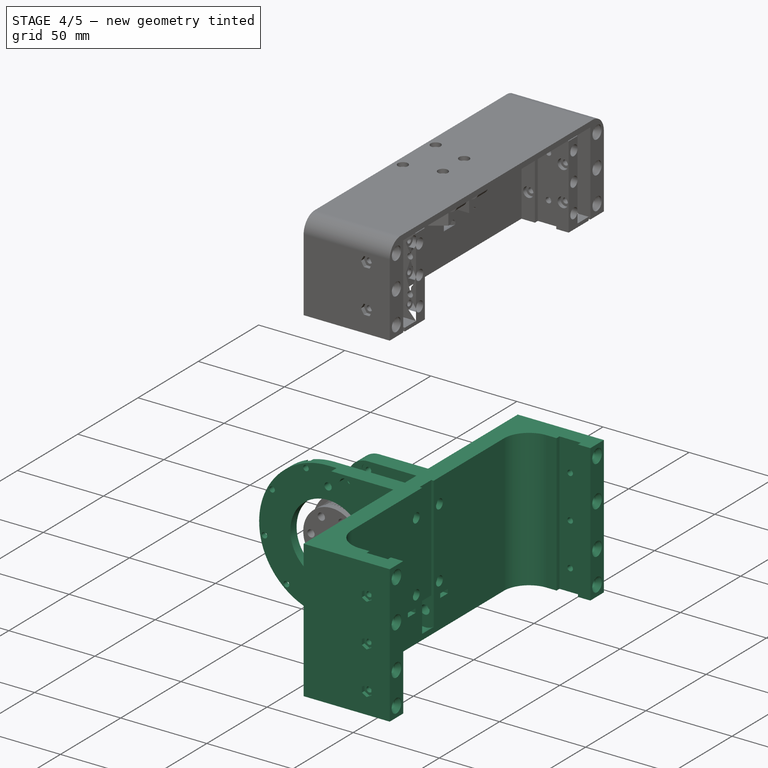
[diagram: stage 4 of 5 — iso view after this stage's code; geometry added in this stage tinted green]
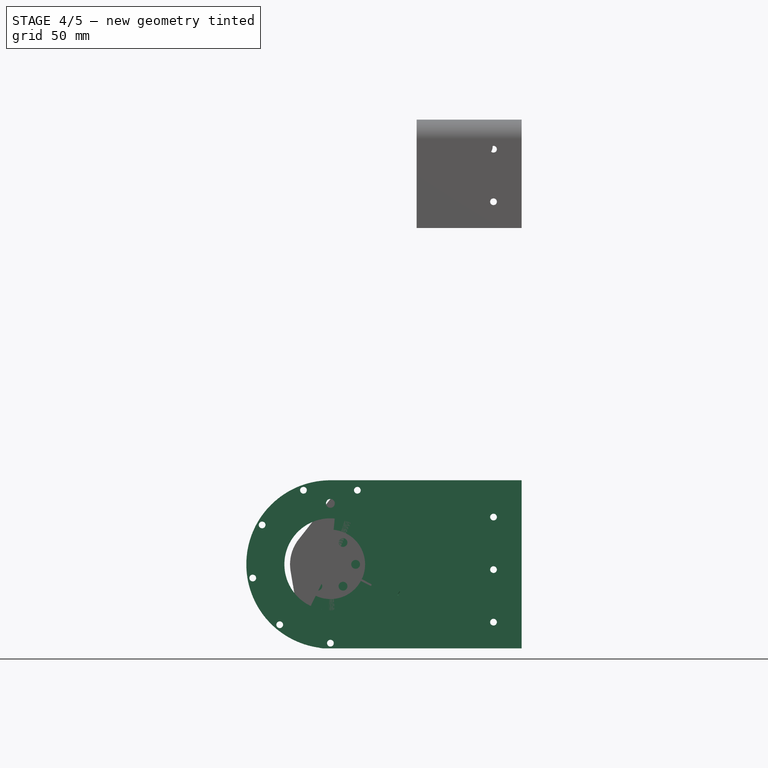
[diagram: stage 4 of 5 — front view after this stage's code; geometry added in this stage tinted green]
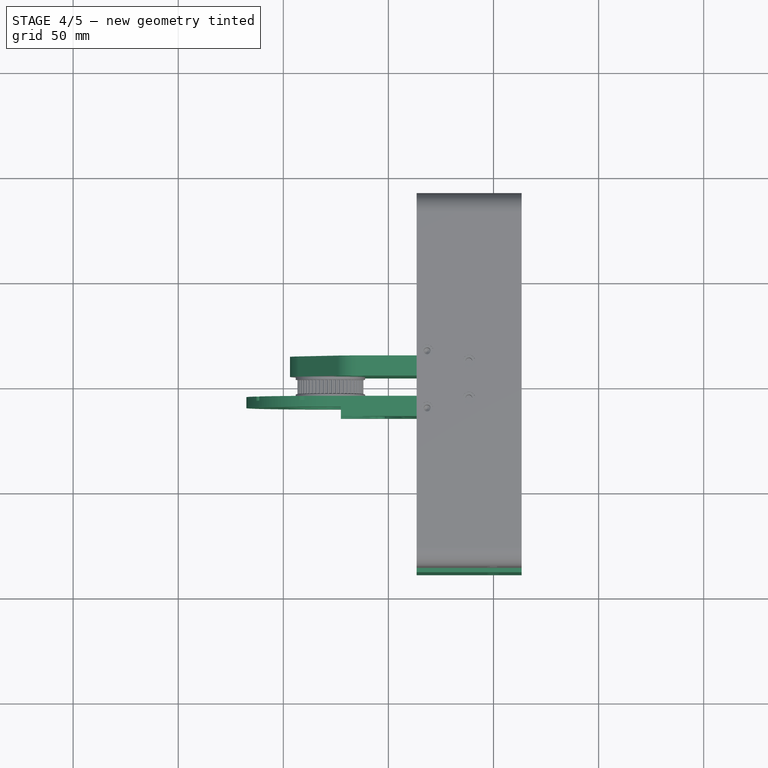
[diagram: stage 4 of 5 — top view after this stage's code; geometry added in this stage tinted green]
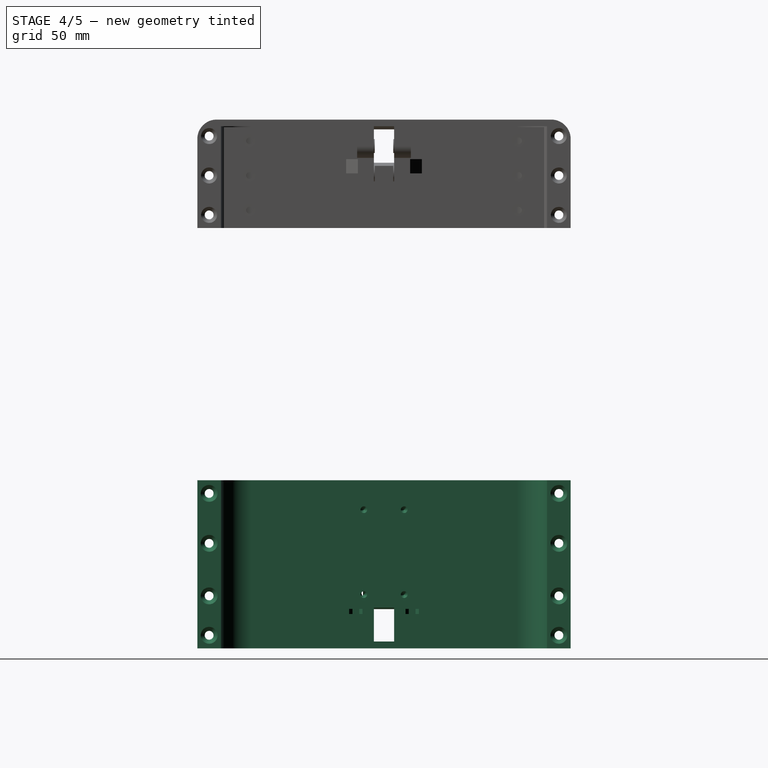
[diagram: stage 4 of 5 — right view after this stage's code; geometry added in this stage tinted green]
FEATURE [PartDesign::Body] Body008  label="G1_Comm"
  AllowCompound = false
  Group = -> [Binder001,Sketch017,Revolution001,Sketch018,Hole001]
  Origin = -> Origin011
  Tip = -> Hole001
FEATURE [Part::MultiCommon] Common  label="G1_Common000"
  Refine = true
  Shapes = -> [Fusion,Body008]
FEATURE [PartDesign::SubShapeBinder] Binder002  label="F1B_Binder002_M"
  BindCopyOnChange = 0
  BindMode = 0
  ClaimChildren = false
  Context = -> Part [Body009.Binder002.]
  Fuse = false
  MakeFace = true
  OffsetFill = false
  OffsetIntersection = false
  OffsetJoinType = 0
  OffsetOpenResult = false
  PartialLoad = false
  Refine = true
  Relative = true
  Support = -> [Body003[Hole.Face2]]
  _Version = 2
FEATURE [Sketcher::SketchObject] Sketch019  label="F1B_Sketch019"
  ArcFitTolerance = 1e-06
  AttachmentSupport = -> [XY_Plane012]
  ExternalGeometry = -> [Binder002]
  FullyConstrained = true
  MakeInternals = false
  MapMode = 5
  expr: Constraints[3] = dd.F1_X
  sketch-geometry (13):
    g0: LineSegment [constr] StartX=-31.6 StartY=-80 StartZ=0 EndX=-31.6 EndY=0 EndZ=0
    g1: LineSegment StartX=-36.6 StartY=0 StartZ=0 EndX=-26.6 EndY=0 EndZ=0
    g2: LineSegment StartX=-26.6 StartY=0 StartZ=0 EndX=-26.6 EndY=-63 EndZ=0
    g3: LineSegment StartX=-12 StartY=-77.6 StartZ=0 EndX=-6.2 EndY=-77.6 EndZ=0
    g4: LineSegment StartX=-6.2 StartY=-77.6 StartZ=0 EndX=-6.2 EndY=-80 EndZ=0
    g5: LineSegment StartX=13.4 StartY=-77.6 StartZ=0 EndX=13.4 EndY=-88.8 EndZ=0
    g6: LineSegment StartX=13.4 StartY=-88.8 StartZ=0 EndX=-36.6 EndY=-88.8 EndZ=0
    g7: LineSegment StartX=-36.6 StartY=-88.8 StartZ=0 EndX=-36.6 EndY=0 EndZ=0
    g8: LineSegment StartX=-6.2 StartY=-80 StartZ=0 EndX=6.2 EndY=-80 EndZ=0
    g9: LineSegment StartX=6.2 StartY=-80 StartZ=0 EndX=6.2 EndY=-77.6 EndZ=0
    g10: LineSegment StartX=6.2 StartY=-77.6 StartZ=0 EndX=13.4 EndY=-77.6 EndZ=0
    g11: ArcOfCircle CenterX=-12 CenterY=-63 CenterZ=0 NormalX=0 NormalY=0 NormalZ=1 AngleXU=0 Radius=14.6 StartAngle=3.14159 EndAngle=4.71239
    g12: GeomPoint [constr] X=-26.6 Y=-77.6 Z=0
  constraints (36):
    c: PointOnObject(g0,g-3)
    c: PointOnObject(g0,g-1)
    c: Vertical(g0)
    c: Distance(g0,g-2) = 31.6
    c: Coincident(g1,g2)
    c: Vertical(g2)
    c: Horizontal(g3)
    c: Coincident(g3,g4)
    c: Vertical(g4)
    c: Coincident(g4,g8)
    c: Coincident(g10,g5)
    c: Vertical(g5)
    c: Coincident(g5,g6)
    c: Horizontal(g6)
    c: Coincident(g6,g7)
    c: Coincident(g7,g1)
    c: Vertical(g7)
    c: Symmetric(g1,g1,g0)
    c: Distance(g1,g1) = 10
    c: Horizontal(g1)
    c: PointOnObject(g4,g-3)
    c: Distance(g4,g4) = 2.4
    c: Distance(g10,g-2) = 13.4
    c: Coincident(g8,g9)
    c: Horizontal(g8)
    c: Coincident(g9,g10)
    c: Horizontal(g10)
    c: Vertical(g9)
    c: Symmetric(g9,g3,g-2)
    c: DistanceX(g8,g8) = 12.4
    c: DistanceY(g5,g-3) = 8.8
    c: PointOnObject(g12,g2)
    c: PointOnObject(g12,g3)
    c: Tangent(g2,g11) = -1.5708
    c: Tangent(g3,g11) = -1.5708
    c: Distance(g3,g-2) = 12
FEATURE [PartDesign::Pad] Pad014  label="F1B_Pad014"
  Direction = (0,0,1)
  Length = 80
  Length2 = 10
  Profile = -> Sketch019
  ReferenceAxis = -> Sketch019 [N_Axis]
  Refine = true
  Suppressed = false
  Type = 0
FEATURE [Sketcher::SketchObject] Sketch020  label="F1B_Sketch020"
  ArcFitTolerance = 1e-06
  AttachmentSupport = -> [Pad014]
  ExternalGeometry = -> [Binder002]
  FullyConstrained = true
  MakeInternals = false
  MapMode = 5
  Placement = pos=(0,-88.8,0) rot=(1,0,0;1.5708rad)
  sketch-geometry (3):
    g0: Circle CenterX=0 CenterY=12.5 CenterZ=0 NormalX=0 NormalY=0 NormalZ=1 AngleXU=0 Radius=1.6
    g1: Circle CenterX=0 CenterY=37.5 CenterZ=0 NormalX=0 NormalY=0 NormalZ=1 AngleXU=0 Radius=1.6
    g2: Circle CenterX=0 CenterY=62.5 CenterZ=0 NormalX=0 NormalY=0 NormalZ=1 AngleXU=0 Radius=1.6
  constraints (6):
    c: Coincident(g0,g-3)
    c: Coincident(g1,g-4)
    c: Coincident(g2,g-5)
    c: Equal(g2,g1)
    c: Equal(g1,g0)
    c: Diameter(g2) = 3.2
FEATURE [PartDesign::Pocket] Pocket001  label="F1B_Pocket001"
  BaseFeature = -> Pad014
  Direction = (0,1,-2e-16)
  Length = 5
  Length2 = 5
  Profile = -> Sketch020
  ReferenceAxis = -> Sketch020 [N_Axis]
  Refine = true
  Suppressed = false
  Type = 1
FEATURE [Sketcher::SketchObject] Sketch021  label="F1B_Sketch021"
  ArcFitTolerance = 1e-06
  AttachmentSupport = -> [Pocket001]
  ExternalGeometry = -> [Binder002]
  FullyConstrained = true
  MakeInternals = false
  MapMode = 5
  Placement = pos=(0,-88.8,0) rot=(1,0,0;1.5708rad)
  sketch-geometry (21):
    g0: LineSegment StartX=2.77128 StartY=60.9 StartZ=0 EndX=2.77128 EndY=64.1 EndZ=0
    g1: LineSegment StartX=2.77128 StartY=64.1 StartZ=0 EndX=5.3e-15 EndY=65.7 EndZ=0
    g2: LineSegment StartX=5.3e-15 StartY=65.7 StartZ=0 EndX=-2.77128 EndY=64.1 EndZ=0
    g3: LineSegment StartX=-2.77128 StartY=64.1 StartZ=0 EndX=-2.77128 EndY=60.9 EndZ=0
    g4: LineSegment StartX=-2.77128 StartY=60.9 StartZ=0 EndX=-3.2e-14 EndY=59.3 EndZ=0
    g5: LineSegment StartX=-3.2e-14 StartY=59.3 StartZ=0 EndX=2.77128 EndY=60.9 EndZ=0
    g6: Circle [constr] CenterX=0 CenterY=62.5 CenterZ=0 NormalX=0 NormalY=0 NormalZ=1 AngleXU=0 Radius=3.2
    g7: LineSegment StartX=2.77128 StartY=35.9 StartZ=0 EndX=2.77128 EndY=39.1 EndZ=0
    g8: LineSegment StartX=2.77128 StartY=39.1 StartZ=0 EndX=0 EndY=40.7 EndZ=0
    g9: LineSegment StartX=0 StartY=40.7 StartZ=0 EndX=-2.77128 EndY=39.1 EndZ=0
    g10: LineSegment StartX=-2.77128 StartY=39.1 StartZ=0 EndX=-2.77128 EndY=35.9 EndZ=0
    g11: LineSegment StartX=-2.77128 StartY=35.9 StartZ=0 EndX=0 EndY=34.3 EndZ=0
    g12: LineSegment StartX=0 StartY=34.3 StartZ=0 EndX=2.77128 EndY=35.9 EndZ=0
    g13: Circle [constr] CenterX=0 CenterY=37.5 CenterZ=0 NormalX=0 NormalY=0 NormalZ=1 AngleXU=0 Radius=3.2
    g14: LineSegment StartX=2.77128 StartY=10.9 StartZ=0 EndX=2.77128 EndY=14.1 EndZ=0
    g15: LineSegment StartX=2.77128 StartY=14.1 StartZ=0 EndX=0 EndY=15.7 EndZ=0
    g16: LineSegment StartX=0 StartY=15.7 StartZ=0 EndX=-2.77128 EndY=14.1 EndZ=0
    g17: LineSegment StartX=-2.77128 StartY=14.1 StartZ=0 EndX=-2.77128 EndY=10.9 EndZ=0
    g18: LineSegment StartX=-2.77128 StartY=10.9 StartZ=0 EndX=0 EndY=9.3 EndZ=0
    g19: LineSegment StartX=0 StartY=9.3 StartZ=0 EndX=2.77128 EndY=10.9 EndZ=0
    g20: Circle [constr] CenterX=0 CenterY=12.5 CenterZ=0 NormalX=0 NormalY=0 NormalZ=1 AngleXU=0 Radius=3.2
  constraints (48):
    c: Coincident(g0,g1)
    c: Coincident(g1,g2)
    c: Coincident(g2,g3)
    c: Coincident(g3,g4)
    c: Coincident(g4,g5)
    c: Coincident(g5,g0)
    c: Equal(g0, g1-g5) x5
    c: PointOnObject(g0,g6)
    c: PointOnObject(g1,g6)
    c: PointOnObject(g2,g6)
    c: PointOnObject(g3,g6)
    c: PointOnObject(g4,g6)
    c: PointOnObject(g5,g6)
    c: Coincident(g6,g-3)
    c: Coincident(g7,g8)
    c: Coincident(g8,g9)
    c: Coincident(g9,g10)
    c: Coincident(g10,g11)
    c: Coincident(g11,g12)
    c: Coincident(g12,g7)
    c: Equal(g7, g8-g12) x5
    c: PointOnObject(g7,g13)
    c: PointOnObject(g8,g13)
    c: PointOnObject(g9,g13)
    c: PointOnObject(g10,g13)
    c: PointOnObject(g11,g13)
    c: PointOnObject(g12,g13)
    c: Coincident(g13,g-4)
    c: Coincident(g14,g15)
    c: Coincident(g15,g16)
    c: Coincident(g16,g17)
    c: Coincident(g17,g18)
    c: Coincident(g18,g19)
    c: Coincident(g19,g14)
    c: Equal(g14, g15-g19) x5
    c: PointOnObject(g14,g20)
    c: PointOnObject(g15,g20)
    c: PointOnObject(g16,g20)
    c: PointOnObject(g17,g20)
    c: PointOnObject(g18,g20)
    c: PointOnObject(g19,g20)
    c: Coincident(g20,g-5)
    c: Equal(g20,g13)
    c: Equal(g13,g6)
    c: Diameter(g6) = 6.4
    c: Vertical(g14)
    c: Vertical(g7)
    c: Vertical(g0)
FEATURE [PartDesign::Pocket] Pocket002  label="F1B_Pocket002"
  BaseFeature = -> Pocket001
  Direction = (0,1,-2e-16)
  Length = 2.2
  Length2 = 5
  Profile = -> Sketch021
  ReferenceAxis = -> Sketch021 [N_Axis]
  Refine = true
  Suppressed = false
  Type = 0
FEATURE [Sketcher::SketchObject] Sketch022  label="F1B_Sketch022"
  ArcFitTolerance = 1e-06
  AttachmentSupport = -> [Pocket001]
  ExternalGeometry = -> [Pocket001]
  FullyConstrained = true
  MakeInternals = false
  MapMode = 5
  Placement = pos=(13.4,0,0) rot=(0.57735,0.57735,0.57735;2.0944rad)
  sketch-geometry (12):
    g0: LineSegment [constr] StartX=-83.2 StartY=80 StartZ=0 EndX=-83.2 EndY=73.75 EndZ=0
    g1: LineSegment [constr] StartX=-83.2 StartY=73.75 StartZ=0 EndX=-83.2 EndY=62.5 EndZ=0
    g2: LineSegment [constr] StartX=-83.2 StartY=12.5 StartZ=0 EndX=-83.2 EndY=6.25 EndZ=0
    g3: LineSegment [constr] StartX=-83.2 StartY=6.25 StartZ=0 EndX=-83.2 EndY=0 EndZ=0
    g4: Circle CenterX=-83.2 CenterY=73.75 CenterZ=0 NormalX=0 NormalY=0 NormalZ=1 AngleXU=0 Radius=2.1
    g5: Circle CenterX=-83.2 CenterY=6.25 CenterZ=0 NormalX=0 NormalY=0 NormalZ=1 AngleXU=0 Radius=2.1
    g6: Circle CenterX=-83.2 CenterY=50 CenterZ=0 NormalX=0 NormalY=0 NormalZ=1 AngleXU=0 Radius=2.1
    g7: Circle CenterX=-83.2 CenterY=25 CenterZ=0 NormalX=0 NormalY=0 NormalZ=1 AngleXU=0 Radius=2.1
    g8: LineSegment [constr] StartX=-83.2 StartY=62.5 StartZ=0 EndX=-83.2 EndY=50 EndZ=0
    g9: LineSegment [constr] StartX=-83.2 StartY=50 StartZ=0 EndX=-83.2 EndY=37.5 EndZ=0
    g10: LineSegment [constr] StartX=-83.2 StartY=37.5 StartZ=0 EndX=-83.2 EndY=25 EndZ=0
    g11: LineSegment [constr] StartX=-83.2 StartY=25 StartZ=0 EndX=-83.2 EndY=12.5 EndZ=0
  constraints (32):
    c: Symmetric(g-5,g-5,g0)
    c: Vertical(g0)
    c: Coincident(g1,g0)
    c: PointOnObject(g1,g-4)
    c: Vertical(g1)
    c: PointOnObject(g2,g-3)
    c: Vertical(g2)
    c: Coincident(g3,g2)
    c: PointOnObject(g3,g-1)
    c: Vertical(g3)
    c: Equal(g3,g2)
    c: PointOnObject(g2,g0)
    c: Coincident(g4,g0)
    c: Coincident(g5,g2)
    c: Equal(g4,g5)
    c: Diameter(g4) = 4.2
    c: Equal(g6,g4)
    c: Equal(g5,g7)
    c: Coincident(g1,g8)
    c: Coincident(g8,g6)
    c: Vertical(g8)
    c: Coincident(g8,g9)
    c: Vertical(g9)
    c: Coincident(g9,g10)
    c: Coincident(g10,g7)
    c: Vertical(g10)
    c: Coincident(g10,g11)
    c: Coincident(g11,g2)
    c: Equal(g11,g10)
    c: Equal(g10,g9)
    c: Equal(g9,g8)
    c: Equal(g3,g0)
FEATURE [PartDesign::Hole] Hole002  label="F1B_Hole002"
  BaseFeature = -> Pocket002
  CustomThreadClearance = 0
  Depth = 261.708
  DepthType = 1
  Diameter = 4.2
  DrillForDepth = false
  DrillPoint = 1
  DrillPointAngle = 118
  HoleCutCountersinkAngle = 90
  HoleCutCustomValues = false
  HoleCutDepth = 0.4
  HoleCutDiameter = 8
  HoleCutType = 3
  ModelThread = false
  Profile = -> Sketch022
  Refine = true
  Suppressed = false
  Tapered = false
  TaperedAngle = 90
  ThreadClass = 0
  ThreadDepth = 261.708
  ThreadDepthType = 0
  ThreadDirection = 0
  ThreadFit = 0
  ThreadSize = 0
  ThreadType = 0
  Threaded = false
  UseCustomThreadClearance = false
FEATURE [Sketcher::SketchObject] Sketch023  label="F1B_Sketch023"
  ArcFitTolerance = 1e-06
  AttachmentSupport = -> [Hole002]
  ExternalGeometry = -> [Hole002]
  FullyConstrained = true
  MakeInternals = false
  MapMode = 5
  Placement = pos=(-36.6,0,0) rot=(0.57735,-0.57735,-0.57735;2.0944rad)
  sketch-geometry (28):
    g0: LineSegment StartX=79.6493 StartY=8.3 StartZ=0 EndX=79.6493 EndY=4.2 EndZ=0
    g1: LineSegment StartX=79.6493 StartY=4.2 StartZ=0 EndX=83.2 EndY=2.15 EndZ=0
    g2: LineSegment StartX=83.2 StartY=2.15 StartZ=0 EndX=86.7507 EndY=4.2 EndZ=0
    g3: LineSegment StartX=86.7507 StartY=4.2 StartZ=0 EndX=86.7507 EndY=8.3 EndZ=0
    g4: LineSegment StartX=86.7507 StartY=8.3 StartZ=0 EndX=83.2 EndY=10.35 EndZ=0
    g5: LineSegment StartX=83.2 StartY=10.35 StartZ=0 EndX=79.6493 EndY=8.3 EndZ=0
    g6: Circle [constr] CenterX=83.2 CenterY=6.25 CenterZ=0 NormalX=0 NormalY=0 NormalZ=1 AngleXU=0 Radius=4.1
    g7: LineSegment StartX=79.6493 StartY=27.05 StartZ=0 EndX=79.6493 EndY=22.95 EndZ=0
    g8: LineSegment StartX=79.6493 StartY=22.95 StartZ=0 EndX=83.2 EndY=20.9 EndZ=0
    g9: LineSegment StartX=83.2 StartY=20.9 StartZ=0 EndX=86.7507 EndY=22.95 EndZ=0
    g10: LineSegment StartX=86.7507 StartY=22.95 StartZ=0 EndX=86.7507 EndY=27.05 EndZ=0
    g11: LineSegment StartX=86.7507 StartY=27.05 StartZ=0 EndX=83.2 EndY=29.1 EndZ=0
    g12: LineSegment StartX=83.2 StartY=29.1 StartZ=0 EndX=79.6493 EndY=27.05 EndZ=0
    g13: Circle [constr] CenterX=83.2 CenterY=25 CenterZ=0 NormalX=0 NormalY=0 NormalZ=1 AngleXU=0 Radius=4.1
    g14: LineSegment StartX=79.6493 StartY=52.05 StartZ=0 EndX=79.6493 EndY=47.95 EndZ=0
    g15: LineSegment StartX=79.6493 StartY=47.95 StartZ=0 EndX=83.2 EndY=45.9 EndZ=0
    g16: LineSegment StartX=83.2 StartY=45.9 StartZ=0 EndX=86.7507 EndY=47.95 EndZ=0
    g17: LineSegment StartX=86.7507 StartY=47.95 StartZ=0 EndX=86.7507 EndY=52.05 EndZ=0
    g18: LineSegment StartX=86.7507 StartY=52.05 StartZ=0 EndX=83.2 EndY=54.1 EndZ=0
    g19: LineSegment StartX=83.2 StartY=54.1 StartZ=0 EndX=79.6493 EndY=52.05 EndZ=0
    g20: Circle [constr] CenterX=83.2 CenterY=50 CenterZ=0 NormalX=0 NormalY=0 NormalZ=1 AngleXU=0 Radius=4.1
    g21: LineSegment StartX=79.6493 StartY=75.8 StartZ=0 EndX=79.6493 EndY=71.7 EndZ=0
    g22: LineSegment StartX=79.6493 StartY=71.7 StartZ=0 EndX=83.2 EndY=69.65 EndZ=0
    g23: LineSegment StartX=83.2 StartY=69.65 StartZ=0 EndX=86.7507 EndY=71.7 EndZ=0
    g24: LineSegment StartX=86.7507 StartY=71.7 StartZ=0 EndX=86.7507 EndY=75.8 EndZ=0
    g25: LineSegment StartX=86.7507 StartY=75.8 StartZ=0 EndX=83.2 EndY=77.85 EndZ=0
    g26: LineSegment StartX=83.2 StartY=77.85 StartZ=0 EndX=79.6493 EndY=75.8 EndZ=0
    g27: Circle [constr] CenterX=83.2 CenterY=73.75 CenterZ=0 NormalX=0 NormalY=0 NormalZ=1 AngleXU=0 Radius=4.1
  constraints (64):
    c: Coincident(g0,g1)
    c: Coincident(g1,g2)
    c: Coincident(g2,g3)
    c: Coincident(g3,g4)
    c: Coincident(g4,g5)
    c: Coincident(g5,g0)
    c: Equal(g0, g1-g5) x5
    c: PointOnObject(g0,g6)
    c: PointOnObject(g1,g6)
    c: PointOnObject(g2,g6)
    c: PointOnObject(g3,g6)
    c: PointOnObject(g4,g6)
    c: PointOnObject(g5,g6)
    c: Coincident(g6,g-6)
    c: Coincident(g7,g8)
    c: Coincident(g8,g9)
    c: Coincident(g9,g10)
    c: Coincident(g10,g11)
    c: Coincident(g11,g12)
    c: Coincident(g12,g7)
    c: Equal(g7, g8-g12) x5
    c: PointOnObject(g7,g13)
    c: PointOnObject(g8,g13)
    c: PointOnObject(g9,g13)
    c: PointOnObject(g10,g13)
    c: PointOnObject(g11,g13)
    c: PointOnObject(g12,g13)
    c: Coincident(g13,g-5)
    c: Coincident(g14,g15)
    c: Coincident(g15,g16)
    c: Coincident(g16,g17)
    c: Coincident(g17,g18)
    c: Coincident(g18,g19)
    c: Coincident(g19,g14)
    c: Equal(g14, g15-g19) x5
    c: PointOnObject(g14,g20)
    c: PointOnObject(g15,g20)
    c: PointOnObject(g16,g20)
    c: PointOnObject(g17,g20)
    c: PointOnObject(g18,g20)
    c: PointOnObject(g19,g20)
    c: Coincident(g20,g-4)
    c: Coincident(g21,g22)
    c: Coincident(g22,g23)
    c: Coincident(g23,g24)
    c: Coincident(g24,g25)
    c: Coincident(g25,g26)
    c: Coincident(g26,g21)
    c: Equal(g21, g22-g26) x5
    c: PointOnObject(g21,g27)
    c: PointOnObject(g22,g27)
    c: PointOnObject(g23,g27)
    c: PointOnObject(g24,g27)
    c: PointOnObject(g25,g27)
    c: PointOnObject(g26,g27)
    c: Coincident(g27,g-3)
    c: Vertical(g24)
    c: Vertical(g17)
    c: Vertical(g10)
    c: Vertical(g3)
    c: Equal(g6,g13)
    c: Equal(g13,g20)
    c: Equal(g20,g27)
    c: Diameter(g27) = 8.2
FEATURE [PartDesign::Pocket] Pocket003  label="F1B_Pocket003"
  BaseFeature = -> Hole002
  Direction = (1,0,0)
  Length = 3.4
  Length2 = 5
  Profile = -> Sketch023
  ReferenceAxis = -> Sketch023 [N_Axis]
  Refine = true
  Suppressed = false
  Type = 0
FEATURE [PartDesign::Mirrored] Mirrored  label="F1B_Mirrored000"
  BaseFeature = -> Pocket003
  MirrorPlane = -> XZ_Plane012
  Originals = -> [Pad014,Pocket001,Pocket002,Hole002,Pocket003]
  Refine = true
  Suppressed = false
  TransformMode = 0
FEATURE [Sketcher::SketchObject] Sketch024  label="F1B_Sketch024"
  ArcFitTolerance = 1e-06
  AttachmentOffset = pos=(-31.6,0,11) rot=(0,0,1;0rad)
  AttachmentSupport = -> [XY_Plane012]
  FullyConstrained = true
  MakeInternals = false
  MapMode = 5
  Placement = pos=(-31.6,0,11) rot=(0,0,1;0rad)
  expr: .AttachmentOffset.Base.x = -dd.F1_X
  sketch-geometry (8):
    g0: LineSegment StartX=0 StartY=10.2 StartZ=0 EndX=0 EndY=-10.2 EndZ=0
    g1: LineSegment StartX=0 StartY=-10.2 StartZ=0 EndX=2.6 EndY=-10.2 EndZ=0
    g2: LineSegment StartX=2.6 StartY=-10.2 StartZ=0 EndX=2.6 EndY=-4.8 EndZ=0
    g3: LineSegment StartX=2.6 StartY=-4.8 StartZ=0 EndX=9.2 EndY=-4.8 EndZ=0
    g4: LineSegment StartX=9.2 StartY=-4.8 StartZ=0 EndX=9.2 EndY=4.8 EndZ=0
    g5: LineSegment StartX=9.2 StartY=4.8 StartZ=0 EndX=2.6 EndY=4.8 EndZ=0
    g6: LineSegment StartX=2.6 StartY=4.8 StartZ=0 EndX=2.6 EndY=10.2 EndZ=0
    g7: LineSegment StartX=2.6 StartY=10.2 StartZ=0 EndX=0 EndY=10.2 EndZ=0
  constraints (22):
    c: PointOnObject(g0,g-2)
    c: Coincident(g0,g1)
    c: Coincident(g1,g2)
    c: Vertical(g2)
    c: Horizontal(g3)
    c: Coincident(g3,g4)
    c: Vertical(g4)
    c: Coincident(g4,g5)
    c: Horizontal(g5)
    c: Vertical(g6)
    c: Coincident(g6,g7)
    c: Coincident(g7,g0)
    c: Horizontal(g7)
    c: Symmetric(g3,g5,g-1)
    c: Distance(g4,g4) = 9.6
    c: Distance(g4,g-2) = 9.2
    c: Distance(g6,g-2) = 2.6
    c: DistanceY(g0,g0) = 20.4
    c: Horizontal(g1)
    c: Coincident(g3,g2)
    c: Coincident(g6,g5)
    c: Symmetric(g0,g0,g-1)
FEATURE [PartDesign::Groove] Groove  label="F1B_Groove000"
  Angle = 360
  Angle2 = 60
  Axis = (0,1,0)
  Base = (-31.6,0,11)
  BaseFeature = -> Mirrored
  Profile = -> Sketch024
  ReferenceAxis = -> Sketch024 [V_Axis]
  Refine = true
  Suppressed = false
  Type = 0
FEATURE [Sketcher::SketchObject] Sketch025  label="F1B_Sketch025"
  ArcFitTolerance = 1e-06
  AttachmentSupport = -> [XZ_Plane012]
  ExternalGeometry = -> [Groove]
  FullyConstrained = true
  MakeInternals = false
  MapMode = 5
  Placement = pos=(0,0,0) rot=(1,0,0;1.5708rad)
  expr: Constraints[3] = dd.F2_X
  sketch-geometry (5):
    g0: LineSegment [constr] StartX=-18.8 StartY=0 StartZ=0 EndX=-18.8 EndY=11 EndZ=0
    g1: ArcOfCircle CenterX=-18.8 CenterY=11 CenterZ=0 NormalX=0 NormalY=0 NormalZ=1 AngleXU=0 Radius=9.2 StartAngle=3.14159 EndAngle=4.71239
    g2: LineSegment StartX=-28 StartY=11 StartZ=0 EndX=-28 EndY=80 EndZ=0
    g3: LineSegment StartX=-28 StartY=80 StartZ=0 EndX=-18.8 EndY=80 EndZ=0
    g4: LineSegment StartX=-18.8 StartY=80 StartZ=0 EndX=-18.8 EndY=1.8 EndZ=0
  constraints (15):
    c: PointOnObject(g0,g-1)
    c: Vertical(g0)
    c: DistanceY(g0,g0) = 11
    c: Distance(g0,g-2) = 18.8
    c: Coincident(g1,g0)
    c: PointOnObject(g1,g0)
    c: PointOnObject(g2,g-3)
    c: Vertical(g2)
    c: Coincident(g2,g3)
    c: PointOnObject(g3,g-3)
    c: Coincident(g3,g4)
    c: Coincident(g4,g1)
    c: Vertical(g4)
    c: Tangent(g2,g1) = 1.5708
    c: Radius(g1) = 9.2
FEATURE [PartDesign::Pocket] Pocket004  label="F1B_Pocket004"
  BaseFeature = -> Groove
  Direction = (0,1,-2e-16)
  Length = 9.6
  Length2 = 5
  Midplane = true
  Profile = -> Sketch025
  ReferenceAxis = -> Sketch025 [N_Axis]
  Refine = true
  Suppressed = false
  Type = 0
FEATURE [PartDesign::SubShapeBinder] Binder003  label="F1B_Binder003_CG"
  BindCopyOnChange = 0
  BindMode = 0
  ClaimChildren = false
  Context = -> Part [Body009.Binder003.]
  Fuse = false
  MakeFace = true
  OffsetFill = false
  OffsetIntersection = false
  OffsetJoinType = 0
  OffsetOpenResult = false
  PartialLoad = false
  Refine = true
  Relative = true
  Support = -> [Body004[Pad011.Face2]]
  _Version = 2
FEATURE [Sketcher::SketchObject] Sketch026  label="F1B_Sketch026"
  ArcFitTolerance = 1e-06
  AttachmentOffset = pos=(0,0,10) rot=(0,0,1;0rad)
  AttachmentSupport = -> [XZ_Plane012]
  ExternalGeometry = -> [Pocket004,Binder003]
  FullyConstrained = true
  MakeInternals = false
  MapMode = 5
  Placement = pos=(0,-10,2.2e-15) rot=(1,0,0;1.5708rad)
  expr: .AttachmentOffset.Base.z = -dd.CG_Y
  sketch-geometry (16):
    g0: ArcOfCircle CenterX=-77.6 CenterY=40 CenterZ=0 NormalX=0 NormalY=0 NormalZ=1 AngleXU=0 Radius=40 StartAngle=1.5708 EndAngle=4.71239
    g1: LineSegment StartX=-77.6 StartY=80 StartZ=0 EndX=-36.6 EndY=80 EndZ=0
    g2: LineSegment StartX=-36.6 StartY=80 StartZ=0 EndX=-36.6 EndY=-1.42e-14 EndZ=0
    g3: LineSegment StartX=-36.6 StartY=-1.42e-14 StartZ=0 EndX=-77.6 EndY=1.42e-14 EndZ=0
    g4: Circle CenterX=-77.6 CenterY=40 CenterZ=0 NormalX=0 NormalY=0 NormalZ=1 AngleXU=0 Radius=21.9
    g5: LineSegment [constr] StartX=-56.1 StartY=40 StartZ=0 EndX=-55.7 EndY=40 EndZ=0
    g6: Circle CenterX=-77.6 CenterY=69 CenterZ=0 NormalX=0 NormalY=0 NormalZ=1 AngleXU=0 Radius=2.1
    g7: Circle CenterX=-90.4258 CenterY=75.2385 CenterZ=0 NormalX=0 NormalY=0 NormalZ=1 AngleXU=0 Radius=1.6
    g8: Circle CenterX=-64.7742 CenterY=75.2385 CenterZ=0 NormalX=0 NormalY=0 NormalZ=1 AngleXU=0 Radius=1.6
    g9: Circle CenterX=-45.124 CenterY=58.75 CenterZ=0 NormalX=0 NormalY=0 NormalZ=1 AngleXU=0 Radius=1.6
    g10: Circle CenterX=-40.6697 CenterY=33.4882 CenterZ=0 NormalX=0 NormalY=0 NormalZ=1 AngleXU=0 Radius=1.6
    g11: Circle CenterX=-53.4955 CenterY=11.2733 CenterZ=0 NormalX=0 NormalY=0 NormalZ=1 AngleXU=0 Radius=1.6
    g12: Circle CenterX=-77.6 CenterY=2.5 CenterZ=0 NormalX=0 NormalY=0 NormalZ=1 AngleXU=0 Radius=1.6
    g13: Circle CenterX=-101.705 CenterY=11.2733 CenterZ=0 NormalX=0 NormalY=0 NormalZ=1 AngleXU=0 Radius=1.6
    g14: Circle CenterX=-114.53 CenterY=33.4882 CenterZ=0 NormalX=0 NormalY=0 NormalZ=1 AngleXU=0 Radius=1.6
    g15: Circle CenterX=-110.076 CenterY=58.75 CenterZ=0 NormalX=0 NormalY=0 NormalZ=1 AngleXU=0 Radius=1.6
  constraints (34):
    c: Coincident(g1,g-3)
    c: Coincident(g1,g2)
    c: Coincident(g2,g-3)
    c: Coincident(g2,g3)
    c: Horizontal(g1)
    c: Tangent(g1,g0) = 1.5708
    c: Tangent(g3,g0) = 1.5708
    c: Coincident(g0,g-4)
    c: Coincident(g4,g0)
    c: PointOnObject(g5,g-4)
    c: PointOnObject(g5,g4)
    c: PointOnObject(g0,g5)
    c: Horizontal(g5)
    c: Distance(g5,g5) = 0.4
    c: Coincident(g6,g-14)
    c: Equal(g6,g-14)
    c: Coincident(g7,g-5)
    c: Coincident(g8,g-6)
    c: Coincident(g9,g-7)
    c: Coincident(g10,g-8)
    c: Coincident(g11,g-9)
    c: Coincident(g12,g-10)
    c: Coincident(g13,g-11)
    c: Coincident(g14,g-12)
    c: Coincident(g15,g-13)
    c: Equal(g15,g7)
    c: Equal(g7,g8)
    c: Equal(g8,g9)
    c: Equal(g9,g10)
    c: Equal(g10,g11)
    c: Equal(g11,g13)
    c: Equal(g13,g14)
    c: Equal(g15,g12)
    c: Diameter(g12) = 3.2
FEATURE [PartDesign::Pad] Pad015  label="F1B_Pad015"
  BaseFeature = -> Pocket004
  Direction = (0,-1,2e-16)
  Length = 5.2
  Length2 = 4.4
  Profile = -> Sketch026
  ReferenceAxis = -> Sketch026 [N_Axis]
  Refine = true
  Reversed = true
  Suppressed = false
  Type = 4
FEATURE [Sketcher::SketchObject] Sketch027  label="F1B_Sketch027"
  ArcFitTolerance = 1e-06
  AttachmentOffset = pos=(0,0,6.8) rot=(0,0,1;0rad)
  AttachmentSupport = -> [XZ_Plane012]
  ExternalGeometry = -> [Binder003]
  FullyConstrained = true
  MakeInternals = false
  MapMode = 5
  Placement = pos=(0,-6.8,1.5e-15) rot=(1,0,0;1.5708rad)
  expr: .AttachmentOffset.Base.z = -dd.CG_Y - 3.2 mm
  sketch-geometry (9):
    g0: Circle CenterX=-110.076 CenterY=58.75 CenterZ=0 NormalX=0 NormalY=0 NormalZ=1 AngleXU=0 Radius=2.9
    g1: Circle CenterX=-90.4258 CenterY=75.2385 CenterZ=0 NormalX=0 NormalY=0 NormalZ=1 AngleXU=0 Radius=2.9
    g2: Circle CenterX=-64.7742 CenterY=75.2385 CenterZ=0 NormalX=0 NormalY=0 NormalZ=1 AngleXU=0 Radius=3.6
    g3: Circle CenterX=-45.124 CenterY=58.75 CenterZ=0 NormalX=0 NormalY=0 NormalZ=1 AngleXU=0 Radius=2.9
    g4: Circle CenterX=-40.6697 CenterY=33.4882 CenterZ=0 NormalX=0 NormalY=0 NormalZ=1 AngleXU=0 Radius=2.9
    g5: Circle CenterX=-53.4955 CenterY=11.2733 CenterZ=0 NormalX=0 NormalY=0 NormalZ=1 AngleXU=0 Radius=2.9
    g6: Circle CenterX=-77.6 CenterY=2.5 CenterZ=0 NormalX=0 NormalY=0 NormalZ=1 AngleXU=0 Radius=3.6
    g7: Circle CenterX=-101.705 CenterY=11.2733 CenterZ=0 NormalX=0 NormalY=0 NormalZ=1 AngleXU=0 Radius=2.9
    g8: Circle CenterX=-114.53 CenterY=33.4882 CenterZ=0 NormalX=0 NormalY=0 NormalZ=1 AngleXU=0 Radius=2.9
  constraints (18):
    c: Coincident(g0,g-11)
    c: Coincident(g1,g-3)
    c: Coincident(g2,g-4)
    c: Coincident(g3,g-5)
    c: Coincident(g4,g-6)
    c: Coincident(g5,g-7)
    c: Coincident(g6,g-8)
    c: Coincident(g7,g-9)
    c: Coincident(g8,g-10)
    c: Equal(g1,g0)
    c: Equal(g0,g8)
    c: Equal(g8,g7)
    c: Equal(g7,g5)
    c: Equal(g5,g4)
    c: Diameter(g5) = 5.8
    c: Equal(g3,g4)
    c: Equal(g2,g6)
    c: Diameter(g2) = 7.2
FEATURE [PartDesign::Pocket] Pocket005  label="F1B_Pocket005"
  BaseFeature = -> Pad015
  Direction = (0,1,-2e-16)
  Length = 0
  Length2 = 5
  Profile = -> Sketch027
  ReferenceAxis = -> Sketch027 [N_Axis]
  Refine = true
  Suppressed = false
  Type = 1
FEATURE [Sketcher::SketchObject] Sketch028  label="F1B_Sketch028"
  ArcFitTolerance = 1e-06
  AttachmentOffset = pos=(0,0,10) rot=(0,0,1;0rad)
  AttachmentSupport = -> [XZ_Plane012]
  ExternalGeometry = -> [Pocket005,Binder003]
  FullyConstrained = true
  MakeInternals = false
  MapMode = 5
  Placement = pos=(0,-10,2.2e-15) rot=(1,0,0;1.5708rad)
  expr: .AttachmentOffset.Base.z = -dd.CG_Y
  sketch-geometry (4):
    g0: ArcOfCircle CenterX=-77.6 CenterY=40 CenterZ=0 NormalX=0 NormalY=0 NormalZ=1 AngleXU=0 Radius=40 StartAngle=1.5708 EndAngle=4.71239
    g1: LineSegment StartX=-72.6 StartY=80 StartZ=0 EndX=-72.6 EndY=1.42e-14 EndZ=0
    g2: LineSegment StartX=-77.6 StartY=80 StartZ=0 EndX=-72.6 EndY=80 EndZ=0
    g3: LineSegment StartX=-72.6 StartY=1.42e-14 StartZ=0 EndX=-77.6 EndY=1.42e-14 EndZ=0
  constraints (9):
    c: Coincident(g0,g-3)
    c: Vertical(g1)
    c: Coincident(g3,g1)
    c: Horizontal(g3)
    c: Tangent(g0,g3) = 1.5708
    c: Coincident(g1,g2)
    c: Tangent(g2,g0) = 1.5708
    c: Coincident(g0,g-3)
    c: PointOnObject(g-4,g1)
FEATURE [Sketcher::SketchObject] Sketch029  label="F1B_Sketch029"
  ArcFitTolerance = 1e-06
  AttachmentOffset = pos=(0,0,-4.8) rot=(0,0,1;0rad)
  AttachmentSupport = -> [XZ_Plane012]
  FullyConstrained = true
  MakeInternals = false
  MapMode = 5
  Placement = pos=(0,4.8,-1.1e-15) rot=(1,0,0;1.5708rad)
  sketch-geometry (12):
    g0: LineSegment StartX=-64.7742 StartY=80 StartZ=0 EndX=-36.6 EndY=80 EndZ=0
    g1: LineSegment StartX=-36.6 StartY=80 StartZ=0 EndX=-36.6 EndY=1.42e-14 EndZ=0
    g2: LineSegment StartX=-36.6 StartY=1.95e-14 StartZ=0 EndX=-80.1904 EndY=1.95e-14 EndZ=0
    g3: ArcOfCircle CenterX=-64.7742 CenterY=68 CenterZ=0 NormalX=0 NormalY=0 NormalZ=1 AngleXU=0 Radius=12 StartAngle=1.5708 EndAngle=2.47609
    g4: ArcOfCircle CenterX=-80.1904 CenterY=12 CenterZ=0 NormalX=0 NormalY=0 NormalZ=1 AngleXU=0 Radius=12 StartAngle=3.30828 EndAngle=4.71239
    g5: Circle CenterX=-64.7742 CenterY=75.2385 CenterZ=0 NormalX=0 NormalY=0 NormalZ=1 AngleXU=0 Radius=1.6
    g6: Circle CenterX=-77.6 CenterY=2.5 CenterZ=0 NormalX=0 NormalY=0 NormalZ=1 AngleXU=0 Radius=1.6
    g7: LineSegment [constr] StartX=-64.7742 StartY=75.2385 StartZ=0 EndX=-64.7742 EndY=80 EndZ=0
    g8: ArcOfCircle CenterX=-77.6 CenterY=40 CenterZ=0 NormalX=0 NormalY=0 NormalZ=1 AngleXU=0 Radius=19.2 StartAngle=2.47609 EndAngle=3.30828
    g9: LineSegment StartX=-96.5339 StartY=36.8145 StartZ=0 EndX=-92.0241 EndY=10.0091 EndZ=0
    g10: LineSegment StartX=-92.7028 StartY=51.8552 StartZ=0 EndX=-74.2135 EndY=75.4095 EndZ=0
    g11: Circle CenterX=-77.6 CenterY=40 CenterZ=0 NormalX=0 NormalY=0 NormalZ=1 AngleXU=0 Radius=1.6
  constraints (26):
    c: Coincident(g0,g-3)
    c: Horizontal(g0)
    c: Coincident(g0,g1)
    c: Coincident(g1,g-3)
    c: Coincident(g1,g2)
    c: Tangent(g0,g3) = 1.5708
    c: Tangent(g2,g4) = 1.5708
    c: Coincident(g5,g-6)
    c: Coincident(g6,g-5)
    c: Equal(g6,g5)
    c: Diameter(g5) = 3.2
    c: Coincident(g7,g5)
    c: Coincident(g7,g0)
    c: Vertical(g7)
    c: Tangent(g4,g9) = -1.5708
    c: Tangent(g9,g8) = -1.5708
    c: Tangent(g3,g10) = 1.5708
    c: Tangent(g8,g10) = 1.5708
    c: Radius(g8) = 19.2
    c: Equal(g3,g4)
    c: Horizontal(g2)
    c: PointOnObject(g2,g-5)
    c: Radius(g4) = 12
    c: Coincident(g-4,g8)
    c: Coincident(g11,g8)
    c: Equal(g11,g5)
FEATURE [PartDesign::Pocket] Pocket006  label="F1B_Pocket006"
  BaseFeature = -> Pocket005
  Direction = (0,1,-2e-16)
  Length = 5
  Length2 = 5
  Profile = -> Sketch028
  ReferenceAxis = -> Sketch028 [N_Axis]
  Refine = true
  Reversed = true
  Suppressed = false
  Type = 1
FEATURE [PartDesign::Pocket] Pocket007  label="F1B_Pocket007"
  BaseFeature = -> Pocket006
  Direction = (2e-16,-1,-4e-16)
  Length = 5
  Length2 = 5
  Profile = -> Binder003
  Refine = true
  Suppressed = false
  Type = 1
FEATURE [PartDesign::Pad] Pad016  label="F1B_Pad016"
  BaseFeature = -> Pocket007
  Direction = (0,-1,2e-16)
  Length = 9.6
  Length2 = 10
  Profile = -> Sketch029
  ReferenceAxis = -> Sketch029 [N_Axis]
  Refine = true
  Reversed = true
  Suppressed = false
  Type = 0
FEATURE [Sketcher::SketchObject] Sketch030  label="F1B_Sketch030"
  ArcFitTolerance = 1e-06
  AttachmentSupport = -> [Pad016]
  ExternalGeometry = -> [Pad016,Binder003]
  FullyConstrained = true
  MakeInternals = false
  MapMode = 5
  Placement = pos=(0,14.4,0) rot=(0,0.707107,0.707107;3.14159rad)
  sketch-geometry (17):
    g0: Circle CenterX=77.6 CenterY=2.5 CenterZ=0 NormalX=0 NormalY=0 NormalZ=1 AngleXU=0 Radius=2.9
    g1: Circle CenterX=64.7742 CenterY=75.2385 CenterZ=0 NormalX=0 NormalY=0 NormalZ=1 AngleXU=0 Radius=2.9
    g2: LineSegment StartX=41.4 StartY=75.2385 StartZ=0 EndX=58.7742 EndY=75.2385 EndZ=0
    g3: ArcOfCircle CenterX=64.7742 CenterY=75.2385 CenterZ=0 NormalX=0 NormalY=0 NormalZ=1 AngleXU=0 Radius=6 StartAngle=3.14159 EndAngle=5.06145
    g4: ArcOfCircle CenterX=77.6 CenterY=40 CenterZ=0 NormalX=0 NormalY=0 NormalZ=1 AngleXU=0 Radius=6 StartAngle=1.91986 EndAngle=4.71239
    g5: ArcOfCircle CenterX=77.6 CenterY=2.5 CenterZ=0 NormalX=0 NormalY=0 NormalZ=1 AngleXU=0 Radius=6 StartAngle=1.5708 EndAngle=3.14159
    g6: LineSegment StartX=66.8264 StartY=69.6003 StartZ=0 EndX=75.5479 EndY=45.6382 EndZ=0
    g7: LineSegment StartX=77.6 StartY=34 StartZ=0 EndX=77.6 EndY=8.5 EndZ=0
    g8: LineSegment StartX=71.6 StartY=2.5 StartZ=0 EndX=41.4 EndY=2.5 EndZ=0
    g9: LineSegment StartX=41.4 StartY=2.5 StartZ=0 EndX=41.4 EndY=75.2385 EndZ=0
    g10: LineSegment StartX=77.6 StartY=36.8 StartZ=0 EndX=80.3713 EndY=38.4 EndZ=0
    g11: LineSegment StartX=80.3713 StartY=38.4 StartZ=0 EndX=80.3713 EndY=41.6 EndZ=0
    g12: LineSegment StartX=80.3713 StartY=41.6 StartZ=0 EndX=77.6 EndY=43.2 EndZ=0
    g13: LineSegment StartX=77.6 StartY=43.2 StartZ=0 EndX=74.8287 EndY=41.6 EndZ=0
    g14: LineSegment StartX=74.8287 StartY=41.6 StartZ=0 EndX=74.8287 EndY=38.4 EndZ=0
    g15: LineSegment StartX=74.8287 StartY=38.4 StartZ=0 EndX=77.6 EndY=36.8 EndZ=0
    g16: Circle [constr] CenterX=77.6 CenterY=40 CenterZ=0 NormalX=0 NormalY=0 NormalZ=1 AngleXU=0 Radius=3.2
  constraints (44):
    c: Coincident(g0,g-4)
    c: Coincident(g1,g-3)
    c: Equal(g1,g0)
    c: Horizontal(g2)
    c: Coincident(g3,g1)
    c: Coincident(g5,g0)
    c: Coincident(g2,g3)
    c: Coincident(g6,g3)
    c: Coincident(g6,g4)
    c: Coincident(g7,g4)
    c: Coincident(g7,g5)
    c: Coincident(g8,g5)
    c: Horizontal(g8)
    c: Coincident(g9,g8)
    c: Coincident(g9,g2)
    c: Vertical(g9)
    c: DistanceX(g-5,g2) = 4.8
    c: PointOnObject(g1,g2)
    c: PointOnObject(g0,g8)
    c: Equal(g3,g4)
    c: Equal(g4,g5)
    c: Radius(g3) = 6
    c: PointOnObject(g1,g6)
    c: PointOnObject(g0,g7)
    c: Coincident(g-6,g4)
    c: PointOnObject(g4,g6)
    c: PointOnObject(g4,g7)
    c: Diameter(g0) = 5.8
    c: Coincident(g10,g11)
    c: Coincident(g11,g12)
    c: Coincident(g12,g13)
    c: Coincident(g13,g14)
    c: Coincident(g14,g15)
    c: Coincident(g15,g10)
    c: Equal(g10, g11-g15) x5
    c: PointOnObject(g10,g16)
    c: PointOnObject(g11,g16)
    c: PointOnObject(g12,g16)
    c: PointOnObject(g13,g16)
    c: PointOnObject(g14,g16)
    c: PointOnObject(g15,g16)
    c: Coincident(g16,g4)
    c: Diameter(g16) = 6.4
    c: Vertical(g11)
FEATURE [PartDesign::Pocket] Pocket008  label="F1B_Pocket008"
  BaseFeature = -> Pad016
  Direction = (0,-1,2e-16)
  Length = 3.2
  Length2 = 5
  Profile = -> Sketch030
  ReferenceAxis = -> Sketch030 [N_Axis]
  Refine = true
  Suppressed = false
  Type = 0
FEATURE [PartDesign::Chamfer] Chamfer  label="F1B_Chamfer000"
  Angle = 45
  Base = -> Pocket008 [Face221]
  BaseFeature = -> Pocket008
  ChamferType = 0
  FlipDirection = false
  Refine = true
  Size = 3.19
  Size2 = 1
  SupportTransform = false
  Suppressed = false
  UseAllEdges = false
FEATURE [Sketcher::SketchObject] Sketch031  label="F1B_Sketch031"
  ArcFitTolerance = 1e-06
  AttachmentSupport = -> [Chamfer]
  ExternalGeometry = -> [Chamfer]
  FullyConstrained = true
  MakeInternals = false
  MapMode = 5
  Placement = pos=(0,4.8,-1.1e-15) rot=(1,0,0;1.5708rad)
  sketch-geometry (2):
    g0: Circle CenterX=-64.7742 CenterY=75.2385 CenterZ=0 NormalX=0 NormalY=0 NormalZ=1 AngleXU=0 Radius=3.6
    g1: Circle CenterX=-77.6 CenterY=2.5 CenterZ=0 NormalX=0 NormalY=0 NormalZ=1 AngleXU=0 Radius=3.6
  constraints (4):
    c: Coincident(g0,g-3)
    c: Equal(g0,g-3)
    c: Coincident(g1,g-4)
    c: Equal(g1,g-4)
FEATURE [PartDesign::Pocket] Pocket009  label="F1B_Pocket009"
  BaseFeature = -> Chamfer
  Direction = (0,1,-2e-16)
  Length = 0.4
  Length2 = 5
  Profile = -> Sketch031
  ReferenceAxis = -> Sketch031 [N_Axis]
  Refine = true
  Suppressed = false
  Type = 0
FEATURE [Sketcher::SketchObject] Sketch032  label="F1B_Sketch032"
  ArcFitTolerance = 1e-06
  AttachmentSupport = -> [Pocket009]
  ExternalGeometry = -> [Pocket009]
  FullyConstrained = true
  MakeInternals = false
  MapMode = 5
  Placement = pos=(0,0,8.7e-15) rot=(1,0,0;3.14159rad)
  sketch-geometry (3):
    g0: Circle CenterX=-31.6 CenterY=-13.4 CenterZ=0 NormalX=0 NormalY=0 NormalZ=1 AngleXU=0 Radius=1.6
    g1: Circle CenterX=-31.6 CenterY=13.4 CenterZ=0 NormalX=0 NormalY=0 NormalZ=1 AngleXU=0 Radius=1.6
    g2: LineSegment [constr] StartX=-31.6 StartY=-13.4 StartZ=0 EndX=-31.6 EndY=-10.2 EndZ=0
  constraints (7):
    c: Symmetric(g0,g1,g-1)
    c: Equal(g0,g1)
    c: Diameter(g1) = 3.2
    c: Coincident(g2,g0)
    c: Symmetric(g-3,g-3,g2)
    c: Vertical(g2)
    c: Distance(g2,g2) = 3.2
FEATURE [PartDesign::Hole] Hole003  label="F1B_Hole003"
  BaseFeature = -> Pocket009
  CustomThreadClearance = 0
  Depth = 19.2
  DepthType = 0
  Diameter = 3.2
  DrillForDepth = false
  DrillPoint = 1
  DrillPointAngle = 100
  HoleCutCountersinkAngle = 179
  HoleCutCustomValues = false
  HoleCutDepth = 3.2
  HoleCutDiameter = 5.6
  HoleCutType = 3
  ModelThread = false
  Profile = -> Sketch032
  Refine = true
  Suppressed = false
  Tapered = false
  TaperedAngle = 90
  ThreadClass = 0
  ThreadDepth = 19.2
  ThreadDepthType = 0
  ThreadDirection = 0
  ThreadFit = 0
  ThreadSize = 0
  ThreadType = 0
  Threaded = false
  UseCustomThreadClearance = false
FEATURE [Sketcher::SketchObject] Sketch033  label="F1B_Sketch033"
  ArcFitTolerance = 1e-06
  AttachmentOffset = pos=(0,0,-16.4) rot=(0,0,1;0rad)
  AttachmentSupport = -> [Hole003]
  ExternalGeometry = -> [Hole003]
  FullyConstrained = true
  MakeInternals = false
  MapMode = 5
  Placement = pos=(0,0,16.4) rot=(1,0,0;3.14159rad)
  sketch-geometry (20):
    g0: LineSegment StartX=-31.6 StartY=16.6 StartZ=0 EndX=-34.3713 EndY=15 EndZ=0
    g1: LineSegment StartX=-34.3713 StartY=15 StartZ=0 EndX=-34.3713 EndY=11.8 EndZ=0
    g2: LineSegment StartX=-34.3713 StartY=11.8 StartZ=0 EndX=-31.6 EndY=10.2 EndZ=0
    g3: LineSegment [constr] StartX=-31.6 StartY=10.2 StartZ=0 EndX=-28.8287 EndY=11.8 EndZ=0
    g4: LineSegment [constr] StartX=-28.8287 StartY=11.8 StartZ=0 EndX=-28.8287 EndY=15 EndZ=0
    g5: LineSegment [constr] StartX=-28.8287 StartY=15 StartZ=0 EndX=-31.6 EndY=16.6 EndZ=0
    g6: Circle [constr] CenterX=-31.6 CenterY=13.4 CenterZ=0 NormalX=0 NormalY=0 NormalZ=1 AngleXU=0 Radius=3.2
    g7: LineSegment StartX=-31.6 StartY=-10.2 StartZ=0 EndX=-34.3713 EndY=-11.8 EndZ=0
    g8: LineSegment StartX=-34.3713 StartY=-11.8 StartZ=0 EndX=-34.3713 EndY=-15 EndZ=0
    g9: LineSegment StartX=-34.3713 StartY=-15 StartZ=0 EndX=-31.6 EndY=-16.6 EndZ=0
    g10: LineSegment [constr] StartX=-31.6 StartY=-16.6 StartZ=0 EndX=-28.8287 EndY=-15 EndZ=0
    g11: LineSegment [constr] StartX=-28.8287 StartY=-15 StartZ=0 EndX=-28.8287 EndY=-11.8 EndZ=0
    g12: LineSegment [constr] StartX=-28.8287 StartY=-11.8 StartZ=0 EndX=-31.6 EndY=-10.2 EndZ=0
    g13: Circle [constr] CenterX=-31.6 CenterY=-13.4 CenterZ=0 NormalX=0 NormalY=0 NormalZ=1 AngleXU=0 Radius=3.2
    g14: LineSegment StartX=-31.6 StartY=-16.6 StartZ=0 EndX=-26.6 EndY=-16.6 EndZ=0
    g15: LineSegment StartX=-26.6 StartY=-16.6 StartZ=0 EndX=-26.6 EndY=-10.2 EndZ=0
    g16: LineSegment StartX=-26.6 StartY=-10.2 StartZ=0 EndX=-31.6 EndY=-10.2 EndZ=0
    g17: LineSegment StartX=-31.6 StartY=10.2 StartZ=0 EndX=-26.6 EndY=10.2 EndZ=0
    g18: LineSegment StartX=-26.6 StartY=10.2 StartZ=0 EndX=-26.6 EndY=16.6 EndZ=0
    g19: LineSegment StartX=-26.6 StartY=16.6 StartZ=0 EndX=-31.6 EndY=16.6 EndZ=0
  constraints (48):
    c: Coincident(g0,g1)
    c: Coincident(g1,g2)
    c: Coincident(g2,g3)
    c: Coincident(g3,g4)
    c: Coincident(g4,g5)
    c: Coincident(g5,g0)
    c: Equal(g0, g1-g5) x5
    c: PointOnObject(g0,g6)
    c: PointOnObject(g1,g6)
    c: PointOnObject(g2,g6)
    c: PointOnObject(g3,g6)
    c: PointOnObject(g4,g6)
    c: PointOnObject(g5,g6)
    c: Coincident(g6,g-3)
    c: Coincident(g7,g8)
    c: Coincident(g8,g9)
    c: Coincident(g9,g10)
    c: Coincident(g10,g11)
    c: Coincident(g11,g12)
    c: Coincident(g12,g7)
    c: Equal(g7, g8-g12) x5
    c: PointOnObject(g7,g13)
    c: PointOnObject(g8,g13)
    c: PointOnObject(g9,g13)
    c: PointOnObject(g10,g13)
    c: PointOnObject(g11,g13)
    c: PointOnObject(g12,g13)
    c: Coincident(g13,g-4)
    c: Vertical(g8)
    c: Vertical(g1)
    c: Equal(g6,g13)
    c: Diameter(g6) = 6.4
    c: Coincident(g9,g14)
    c: PointOnObject(g14,g-5)
    c: Horizontal(g14)
    c: Coincident(g14,g15)
    c: PointOnObject(g15,g-5)
    c: Coincident(g15,g16)
    c: Coincident(g16,g7)
    c: Horizontal(g16)
    c: Coincident(g2,g17)
    c: PointOnObject(g17,g-5)
    c: Horizontal(g17)
    c: Coincident(g17,g18)
    c: PointOnObject(g18,g-5)
    c: Coincident(g18,g19)
    c: Coincident(g19,g0)
    c: Horizontal(g19)
FEATURE [PartDesign::Pocket] Pocket010  label="F1B_Pocket010"
  BaseFeature = -> Hole003
  Direction = (0,0,1)
  Length = 2.4
  Length2 = 5
  Profile = -> Sketch033
  ReferenceAxis = -> Sketch033 [N_Axis]
  Refine = true
  Suppressed = false
  Type = 0
FEATURE [Sketcher::SketchObject] Sketch034  label="F1B_Sketch034"
  ArcFitTolerance = 1e-06
  AttachmentSupport = -> [Pocket010]
  ExternalGeometry = -> [Pocket010]
  FullyConstrained = true
  MakeInternals = false
  MapMode = 5
  Placement = pos=(-26.6,0,0) rot=(0.57735,0.57735,0.57735;2.0944rad)
  sketch-geometry (7):
    g0: LineSegment [constr] StartX=4.8 StartY=66 StartZ=0 EndX=14.4 EndY=66 EndZ=0
    g1: Circle CenterX=9.6 CenterY=66 CenterZ=0 NormalX=0 NormalY=0 NormalZ=1 AngleXU=0 Radius=1.6
    g2: Circle CenterX=-9.6 CenterY=66 CenterZ=0 NormalX=0 NormalY=0 NormalZ=1 AngleXU=0 Radius=1.6
    g3: LineSegment [constr] StartX=4.8 StartY=25.6 StartZ=0 EndX=14.4 EndY=25.6 EndZ=0
    g4: Circle CenterX=9.6 CenterY=25.6 CenterZ=0 NormalX=0 NormalY=0 NormalZ=1 AngleXU=0 Radius=1.6
    g5: Circle CenterX=-9.6 CenterY=25.6 CenterZ=0 NormalX=0 NormalY=0 NormalZ=1 AngleXU=0 Radius=1.6
    g6: Circle [constr] CenterX=9.6 CenterY=25.6 CenterZ=0 NormalX=0 NormalY=0 NormalZ=1 AngleXU=0 Radius=2.8
  constraints (18):
    c: Horizontal(g0)
    c: PointOnObject(g0,g-3)
    c: PointOnObject(g0,g-4)
    c: Symmetric(g0,g0,g1)
    c: Equal(g2,g1)
    c: Symmetric(g1,g2,g-2)
    c: Diameter(g2) = 3.2
    c: PointOnObject(g3,g-3)
    c: PointOnObject(g3,g-4)
    c: Horizontal(g3)
    c: Symmetric(g3,g3,g4)
    c: Symmetric(g4,g5,g-2)
    c: Equal(g5,g4)
    c: Equal(g2,g5)
    c: Distance(g5,g-1) = 24
    c: Coincident(g6,g4)
    c: Diameter(g6) = 5.6
    c: DistanceY(g0,g-5) = 14
FEATURE [PartDesign::Hole] Hole004  label="F1B_Hole004"
  BaseFeature = -> Pocket010
  CustomThreadClearance = 0
  Depth = 18
  DepthType = 0
  Diameter = 3.2
  DrillForDepth = false
  DrillPoint = 1
  DrillPointAngle = 100
  HoleCutCountersinkAngle = 179
  HoleCutCustomValues = false
  HoleCutDepth = 3.2
  HoleCutDiameter = 5.6
  HoleCutType = 3
  ModelThread = false
  Profile = -> Sketch034
  Refine = true
  Suppressed = false
  Tapered = false
  TaperedAngle = 90
  ThreadClass = 0
  ThreadDepth = 18
  ThreadDepthType = 0
  ThreadDirection = 0
  ThreadFit = 0
  ThreadSize = 0
  ThreadType = 0
  Threaded = false
  UseCustomThreadClearance = false
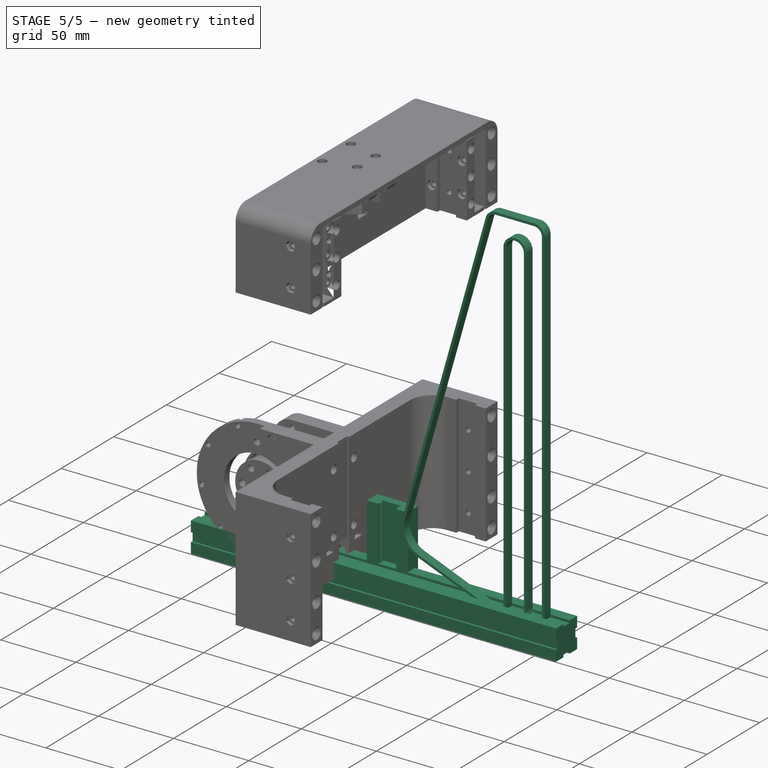
[diagram: stage 5 of 5 — iso view after this stage's code; geometry added in this stage tinted green]
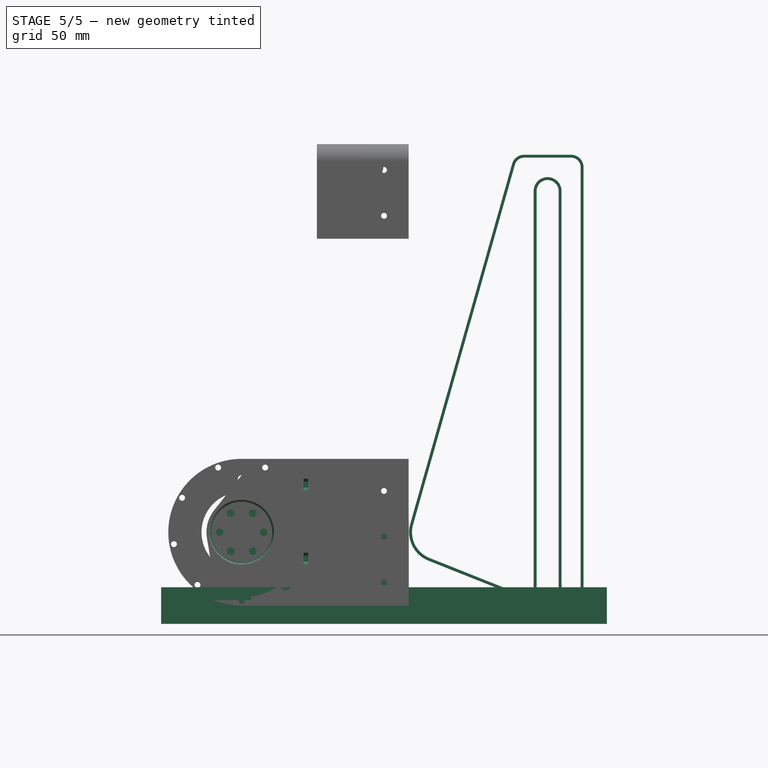
[diagram: stage 5 of 5 — front view after this stage's code; geometry added in this stage tinted green]
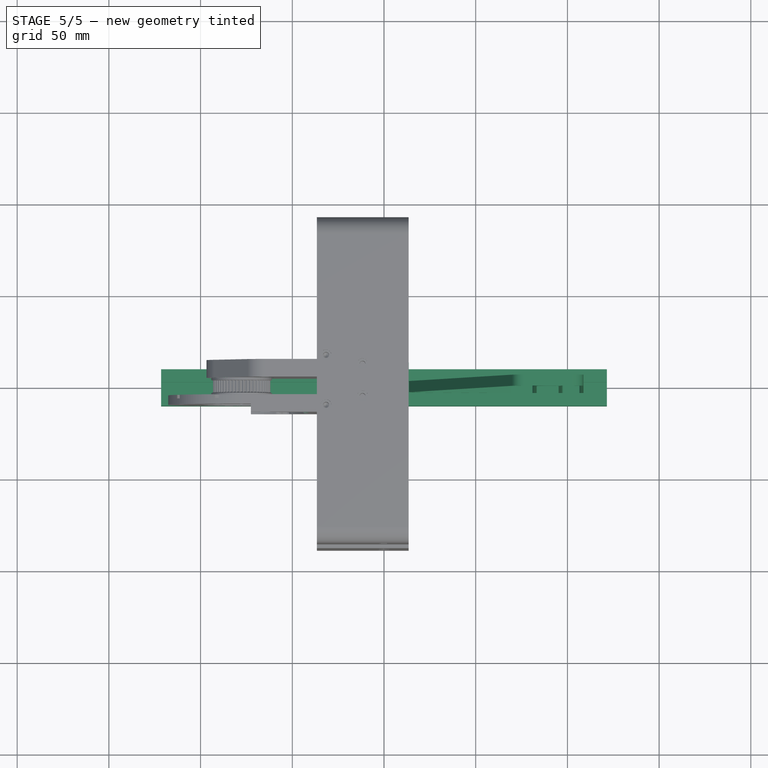
[diagram: stage 5 of 5 — top view after this stage's code; geometry added in this stage tinted green]
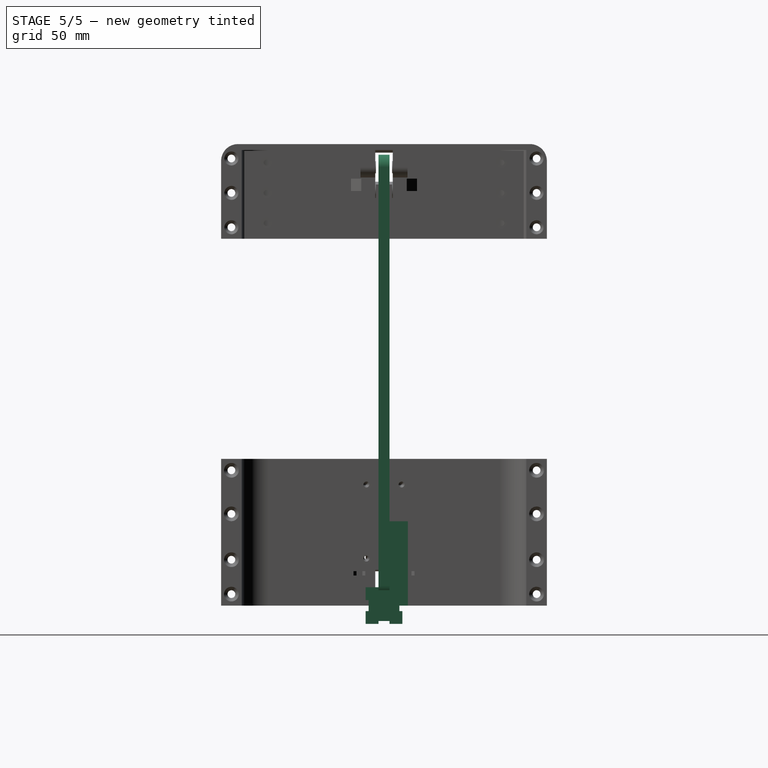
[diagram: stage 5 of 5 — right view after this stage's code; geometry added in this stage tinted green]
FEATURE [PartDesign::Body] Body004  label="CyberGear"
  AllowCompound = false
  Group = -> [Sketch009,Pad006,Sketch010,Pad007,PolarPattern,Sketch011,Pad008,Sketch012,Pad009,Sketch013,Pad010,Sketch014,Pad011]
  Origin = -> Origin006
  Placement = pos=(-77.6,-10,40) rot=(0,0,1;1.5708rad)
  Tip = -> Pad011
  expr: .Placement.Base.x = dd.CG_X
  expr: .Placement.Base.y = dd.CG_Y
  expr: .Placement.Base.z = dd.CG_Z
FEATURE [PartDesign::Pad] Pad012  label="P20_Pad012"
  Direction = (1,0,0)
  Length = 243
  Length2 = 10
  Midplane = true
  Placement = pos=(0,0,0) rot=(1,1,1;2.0944rad)
  Profile = -> Sketch005
  ReferenceAxis = -> Sketch005 [N_Axis]
  Refine = true
  Suppressed = false
  Type = 0
  expr: Length = 2 * dd.F_X + 27 mm
FEATURE [PartDesign::Body] Body005  label="F2_MGN12"
  AllowCompound = false
  Group = -> [Clone]
  Origin = -> Origin007
  Placement = pos=(0,-62,0) rot=(0,0,1;0rad)
  Tip = -> Clone
  expr: .Placement.Base.y = -dd.F2_Y
FEATURE [PartDesign::FeatureBase] Clone001  label="MGN12H_Clone_F3"
  BaseFeature = -> Body002
  Suppressed = false
FEATURE [PartDesign::Body] Body006  label="F3_MGN12H"
  AllowCompound = false
  Group = -> [Clone001]
  Origin = -> Origin009
  Placement = pos=(0,-62,202) rot=(0,0,1;0rad)
  Tip = -> Clone001
  expr: .Placement.Base.y = -dd.F2_Y
FEATURE [App::Part] Part002  label="Frame3"
  Group = -> [Body006]
  Origin = -> Origin008
  Placement = pos=(108,0,0) rot=(0,0,1;0rad)
  expr: .Placement.Base.x = dd.F_X
  expr: .Placement.Base.z = -dd.Position
FEATURE [Sketcher::SketchObject] Sketch015  label="B_Sketch015"
  ArcFitTolerance = 1e-06
  AttachmentOffset = pos=(108,0,0) rot=(0,0,1;0rad)
  AttachmentSupport = -> [XZ_Plane]
  FullyConstrained = true
  MakeInternals = false
  MapMode = 5
  Placement = pos=(108,0,0) rot=(1,0,0;1.5708rad)
  expr: .AttachmentOffset.Base.x = dd.F_X
  expr: Constraints[70] = dd.CG_Z
  expr: Constraints[71] = -dd.CG_X
  expr: Constraints[72] = dd.G1_Teeth / pi + 0.8
  expr: Constraints[77] = dd.SH_Length
  expr: Constraints[78] = 25 mm + dd.Position
  expr: Constraints[79] = 24 mm + dd.Position / 2
  sketch-geometry (36):
    g0: GeomPoint X=0 Y=225 Z=0
    g1: LineSegment [constr] StartX=0 StartY=225 StartZ=0 EndX=-0.8 EndY=225 EndZ=0
    g2: LineSegment [constr] StartX=0 StartY=225 StartZ=0 EndX=0.8 EndY=225 EndZ=0
    g3: LineSegment StartX=-0.8 StartY=11 StartZ=0 EndX=-0.8 EndY=225 EndZ=0
    g4: LineSegment StartX=0.8 StartY=225 StartZ=0 EndX=0.8 EndY=11 EndZ=0
    g5: ArcOfCircle CenterX=-6 CenterY=11 CenterZ=0 NormalX=0 NormalY=0 NormalZ=1 AngleXU=0 Radius=5.2 StartAngle=3.14159 EndAngle=6.28319
    g6: ArcOfCircle CenterX=-6 CenterY=11 CenterZ=0 NormalX=0 NormalY=0 NormalZ=1 AngleXU=0 Radius=6.8 StartAngle=3.14159 EndAngle=6.28319
    g7: ArcOfCircle CenterX=-6 CenterY=239 CenterZ=0 NormalX=0 NormalY=0 NormalZ=1 AngleXU=0 Radius=5.2 StartAngle=-1.8e-15 EndAngle=1.5708
    g8: ArcOfCircle CenterX=-6 CenterY=239 CenterZ=0 NormalX=0 NormalY=0 NormalZ=1 AngleXU=0 Radius=6.8 StartAngle=1.4e-15 EndAngle=1.5708
    g9: LineSegment StartX=-0.8 StartY=225 StartZ=0 EndX=-0.8 EndY=239 EndZ=0
    g10: LineSegment StartX=0.8 StartY=225 StartZ=0 EndX=0.8 EndY=239 EndZ=0
    g11: LineSegment StartX=-31.6 StartY=244.2 StartZ=0 EndX=-6 EndY=244.2 EndZ=0
    g12: LineSegment StartX=-31.6 StartY=245.8 StartZ=0 EndX=-6 EndY=245.8 EndZ=0
    g13: ArcOfCircle CenterX=-18.8 CenterY=226 CenterZ=0 NormalX=0 NormalY=0 NormalZ=1 AngleXU=0 Radius=7.6 StartAngle=0 EndAngle=3.14159
    g14: ArcOfCircle CenterX=-18.8 CenterY=226 CenterZ=0 NormalX=0 NormalY=0 NormalZ=1 AngleXU=0 Radius=6 StartAngle=0 EndAngle=3.14159
    g15: LineSegment StartX=-12.8 StartY=226 StartZ=0 EndX=-12.8 EndY=11 EndZ=0
    g16: LineSegment StartX=-11.2 StartY=226 StartZ=0 EndX=-11.2 EndY=11 EndZ=0
    g17: ArcOfCircle CenterX=-31.6 CenterY=11 CenterZ=0 NormalX=0 NormalY=0 NormalZ=1 AngleXU=0 Radius=6.8 StartAngle=4.33326 EndAngle=6.28319
    g18: ArcOfCircle CenterX=-31.6 CenterY=11 CenterZ=0 NormalX=0 NormalY=0 NormalZ=1 AngleXU=0 Radius=5.2 StartAngle=4.33326 EndAngle=6.28319
    g19: LineSegment StartX=-26.4 StartY=226 StartZ=0 EndX=-26.4 EndY=11 EndZ=0
    g20: LineSegment StartX=-24.8 StartY=11 StartZ=0 EndX=-24.8 EndY=226 EndZ=0
    g21: ArcOfCircle CenterX=-31.6 CenterY=239 CenterZ=0 NormalX=0 NormalY=0 NormalZ=1 AngleXU=0 Radius=5.2 StartAngle=1.5708 EndAngle=2.86586
    g22: ArcOfCircle CenterX=-31.6 CenterY=239 CenterZ=0 NormalX=0 NormalY=0 NormalZ=1 AngleXU=0 Radius=6.8 StartAngle=1.5708 EndAngle=2.86586
    g23: Circle [constr] CenterX=-6 CenterY=239 CenterZ=0 NormalX=0 NormalY=0 NormalZ=1 AngleXU=0 Radius=9
    g24: Circle [constr] CenterX=-18.8 CenterY=226 CenterZ=0 NormalX=0 NormalY=0 NormalZ=1 AngleXU=0 Radius=9
    g25: Circle [constr] CenterX=-6 CenterY=11 CenterZ=0 NormalX=0 NormalY=0 NormalZ=1 AngleXU=0 Radius=9
    g26: Circle [constr] CenterX=-31.6 CenterY=11 CenterZ=0 NormalX=0 NormalY=0 NormalZ=1 AngleXU=0 Radius=9
    g27: Circle [constr] CenterX=-31.6 CenterY=239 CenterZ=0 NormalX=0 NormalY=0 NormalZ=1 AngleXU=0 Radius=9
    g28: ArcOfCircle CenterX=-77.6 CenterY=40 CenterZ=0 NormalX=0 NormalY=0 NormalZ=1 AngleXU=0 Radius=16.7155 StartAngle=2.86586 EndAngle=4.33326
    g29: ArcOfCircle CenterX=-77.6 CenterY=40 CenterZ=0 NormalX=0 NormalY=0 NormalZ=1 AngleXU=0 Radius=15.1155 StartAngle=2.86586 EndAngle=4.33326
    g30: LineSegment StartX=-83.1944 StartY=25.9579 StartZ=0 EndX=-33.5246 EndY=6.16927 EndZ=0
    g31: LineSegment StartX=-83.7866 StartY=24.4715 StartZ=0 EndX=-34.1168 EndY=4.68289 EndZ=0
    g32: LineSegment StartX=-93.6841 StartY=44.5508 StartZ=0 EndX=-38.1431 EndY=240.851 EndZ=0
    g33: LineSegment StartX=-92.1445 StartY=44.1152 StartZ=0 EndX=-36.6036 EndY=240.416 EndZ=0
    g34: LineSegment [constr] StartX=-31.6 StartY=239 StartZ=0 EndX=-31.6 EndY=11 EndZ=0
    g35: LineSegment [constr] StartX=0 StartY=250 StartZ=0 EndX=-31.6 EndY=250 EndZ=0
  constraints (81):
    c: PointOnObject(g0,g-2)
    c: Coincident(g1,g0)
    c: Coincident(g2,g0)
    c: Horizontal(g2)
    c: Symmetric(g2,g1,g-2)
    c: Distance(g1,g2) = 1.6
    c: Coincident(g3,g1)
    c: Vertical(g3)
    c: Coincident(g4,g2)
    c: Vertical(g4)
    c: Coincident(g6,g5)
    c: Tangent(g6,g4) = 1.5708
    c: Tangent(g3,g5) = -1.5708
    c: Coincident(g8,g7)
    c: Coincident(g9,g1)
    c: Coincident(g10,g2)
    c: Vertical(g9)
    c: Vertical(g10)
    c: Tangent(g8,g10) = -1.5708
    c: Tangent(g9,g7) = -1.5708
    c: Equal(g6,g8)
    c: Horizontal(g12)
    c: Horizontal(g11)
    c: Tangent(g7,g11) = 1.5708
    c: Tangent(g12,g8) = 1.5708
    c: Coincident(g14,g13)
    c: Vertical(g15)
    c: Vertical(g16)
    c: Tangent(g15,g14) = 1.5708
    c: Tangent(g16,g13) = 1.5708
    c: Tangent(g15,g6) = -1.5708
    c: Tangent(g16,g5) = -1.5708
    c: Coincident(g18,g17)
    c: Vertical(g19)
    c: Vertical(g20)
    c: Tangent(g13,g19) = -1.5708
    c: Tangent(g14,g20) = 1.5708
    c: Tangent(g17,g20) = -1.5708
    c: Tangent(g18,g19) = 1.5708
    c: Equal(g17,g6)
    c: Coincident(g22,g21)
    c: Tangent(g12,g22) = 1.5708
    c: Tangent(g11,g21) = 1.5708
    c: Coincident(g23,g7)
    c: Coincident(g24,g13)
    c: Coincident(g25,g5)
    c: Coincident(g26,g17)
    c: Coincident(g27,g21)
    c: Equal(g27,g24)
    c: Equal(g24,g23)
    c: Equal(g23,g25)
    c: Equal(g25,g26)
    c: Diameter(g27) = 18
    c: Coincident(g29,g28)
    c: Tangent(g22,g32) = 1.5708
    c: Tangent(g21,g33) = 1.5708
    c: Tangent(g28,g32) = 1.5708
    c: Tangent(g29,g33) = 1.5708
    c: Tangent(g29,g30) = -1.5708
    c: Tangent(g28,g31) = -1.5708
    c: Tangent(g18,g30) = -1.5708
    c: Tangent(g17,g31) = -1.5708
    c: Parallel(g31,g30)
    c: Equal(g22,g8)
    c: Radius(g8) = 6.8
    c: Radius(g14) = 6
    c: Coincident(g34,g21)
    c: Coincident(g34,g17)
    c: Vertical(g34)
    c: Distance(g17,g-1) = 11
    c: Distance(g28,g-1) = 40
    c: Distance(g28,g-2) = 77.6
    c: Radius(g28) = 16.7155
    c: DistanceY(g16,g16) = 215
    c: PointOnObject(g35,g-2)
    c: Horizontal(g35)
    c: PointOnObject(g35,g34)
    c: Distance(g35,g-1) = 250
    c: DistanceY(g2,g35) = 25
    c: DistanceY(g13,g35) = 24
    c: DistanceY(g7,g35) = 11
FEATURE [PartDesign::Pad] Pad013  label="B_Pad013"
  Direction = (0,-1,2e-16)
  Length = 6
  Length2 = 10
  Midplane = true
  Placement = pos=(0,0,0) rot=(1,0,0;1.5708rad)
  Profile = -> Sketch015
  ReferenceAxis = -> Sketch015 [N_Axis]
  Refine = true
  Suppressed = false
  Type = 0
FEATURE [Sketcher::SketchObject] Sketch035  label="F1B_Sketch035"
  ArcFitTolerance = 1e-06
  AttachmentOffset = pos=(0,0,-14.8) rot=(0,0,1;0rad)
  AttachmentSupport = -> [Hole004]
  ExternalGeometry = -> [Hole004]
  FullyConstrained = true
  MakeInternals = false
  MapMode = 5
  Placement = pos=(-41.4,0,0) rot=(0.57735,0.57735,0.57735;2.0944rad)
  sketch-geometry (40):
    g0: LineSegment [constr] StartX=-12.3713 StartY=67.6 StartZ=0 EndX=-12.3713 EndY=64.4 EndZ=0
    g1: LineSegment [constr] StartX=-12.3713 StartY=64.4 StartZ=0 EndX=-9.6 EndY=62.8 EndZ=0
    g2: LineSegment StartX=-9.6 StartY=62.8 StartZ=0 EndX=-6.82872 EndY=64.4 EndZ=0
    g3: LineSegment StartX=-6.82872 StartY=64.4 StartZ=0 EndX=-6.82872 EndY=67.6 EndZ=0
    g4: LineSegment StartX=-6.82872 StartY=67.6 StartZ=0 EndX=-9.6 EndY=69.2 EndZ=0
    g5: LineSegment [constr] StartX=-9.6 StartY=69.2 StartZ=0 EndX=-12.3713 EndY=67.6 EndZ=0
    g6: Circle [constr] CenterX=-9.6 CenterY=66 CenterZ=0 NormalX=0 NormalY=0 NormalZ=1 AngleXU=0 Radius=3.2
    g7: LineSegment [constr] StartX=12.3713 StartY=67.6 StartZ=0 EndX=9.6 EndY=69.2 EndZ=0
    g8: LineSegment StartX=9.6 StartY=69.2 StartZ=0 EndX=6.82872 EndY=67.6 EndZ=0
    g9: LineSegment StartX=6.82872 StartY=67.6 StartZ=0 EndX=6.82872 EndY=64.4 EndZ=0
    g10: LineSegment StartX=6.82872 StartY=64.4 StartZ=0 EndX=9.6 EndY=62.8 EndZ=0
    g11: LineSegment [constr] StartX=9.6 StartY=62.8 StartZ=0 EndX=12.3713 EndY=64.4 EndZ=0
    g12: LineSegment [constr] StartX=12.3713 StartY=64.4 StartZ=0 EndX=12.3713 EndY=67.6 EndZ=0
    g13: Circle [constr] CenterX=9.6 CenterY=66 CenterZ=0 NormalX=0 NormalY=0 NormalZ=1 AngleXU=0 Radius=3.2
    g14: LineSegment [constr] StartX=12.3713 StartY=27.2 StartZ=0 EndX=9.6 EndY=28.8 EndZ=0
    g15: LineSegment StartX=9.6 StartY=28.8 StartZ=0 EndX=6.82872 EndY=27.2 EndZ=0
    g16: LineSegment StartX=6.82872 StartY=27.2 StartZ=0 EndX=6.82872 EndY=24 EndZ=0
    g17: LineSegment StartX=6.82872 StartY=24 StartZ=0 EndX=9.6 EndY=22.4 EndZ=0
    g18: LineSegment [constr] StartX=9.6 StartY=22.4 StartZ=0 EndX=12.3713 EndY=24 EndZ=0
    g19: LineSegment [constr] StartX=12.3713 StartY=24 StartZ=0 EndX=12.3713 EndY=27.2 EndZ=0
    g20: Circle [constr] CenterX=9.6 CenterY=25.6 CenterZ=0 NormalX=0 NormalY=0 NormalZ=1 AngleXU=0 Radius=3.2
    g21: LineSegment [constr] StartX=-9.6 StartY=28.8 StartZ=0 EndX=-12.3713 EndY=27.2 EndZ=0
    g22: LineSegment [constr] StartX=-12.3713 StartY=27.2 StartZ=0 EndX=-12.3713 EndY=24 EndZ=0
    g23: LineSegment [constr] StartX=-12.3713 StartY=24 StartZ=0 EndX=-9.6 EndY=22.4 EndZ=0
    g24: LineSegment StartX=-9.6 StartY=22.4 StartZ=0 EndX=-6.82872 EndY=24 EndZ=0
    g25: LineSegment StartX=-6.82872 StartY=24 StartZ=0 EndX=-6.82872 EndY=27.2 EndZ=0
    g26: LineSegment StartX=-6.82872 StartY=27.2 StartZ=0 EndX=-9.6 EndY=28.8 EndZ=0
    g27: Circle [constr] CenterX=-9.6 CenterY=25.6 CenterZ=0 NormalX=0 NormalY=0 NormalZ=1 AngleXU=0 Radius=3.2
    g28: LineSegment StartX=-9.6 StartY=62.8 StartZ=0 EndX=-14.4 EndY=62.8 EndZ=0
    g29: LineSegment StartX=-14.4 StartY=62.8 StartZ=0 EndX=-14.4 EndY=69.2 EndZ=0
    g30: LineSegment StartX=-14.4 StartY=69.2 StartZ=0 EndX=-9.6 EndY=69.2 EndZ=0
    g31: LineSegment StartX=-9.6 StartY=22.4 StartZ=0 EndX=-14.4 EndY=22.4 EndZ=0
    g32: LineSegment StartX=-14.4 StartY=22.4 StartZ=0 EndX=-14.4 EndY=28.8 EndZ=0
    g33: LineSegment StartX=-14.4 StartY=28.8 StartZ=0 EndX=-9.6 EndY=28.8 EndZ=0
    g34: LineSegment StartX=9.6 StartY=22.4 StartZ=0 EndX=14.4 EndY=22.4 EndZ=0
    g35: LineSegment StartX=14.4 StartY=22.4 StartZ=0 EndX=14.4 EndY=28.8 EndZ=0
    g36: LineSegment StartX=14.4 StartY=28.8 StartZ=0 EndX=9.6 EndY=28.8 EndZ=0
    g37: LineSegment StartX=9.6 StartY=62.8 StartZ=0 EndX=14.4 EndY=62.8 EndZ=0
    g38: LineSegment StartX=14.4 StartY=62.8 StartZ=0 EndX=14.4 EndY=69.2 EndZ=0
    g39: LineSegment StartX=14.4 StartY=69.2 StartZ=0 EndX=9.6 EndY=69.2 EndZ=0
  constraints (96):
    c: Coincident(g0,g1)
    c: Coincident(g1,g2)
    c: Coincident(g2,g3)
    c: Coincident(g3,g4)
    c: Coincident(g4,g5)
    c: Coincident(g5,g0)
    c: Equal(g0, g1-g5) x5
    c: PointOnObject(g0,g6)
    c: PointOnObject(g1,g6)
    c: PointOnObject(g2,g6)
    c: PointOnObject(g3,g6)
    c: PointOnObject(g4,g6)
    c: PointOnObject(g5,g6)
    c: Coincident(g6,g-3)
    c: Coincident(g7,g8)
    c: Coincident(g8,g9)
    c: Coincident(g9,g10)
    c: Coincident(g10,g11)
    c: Coincident(g11,g12)
    c: Coincident(g12,g7)
    c: Equal(g7, g8-g12) x5
    c: PointOnObject(g7,g13)
    c: PointOnObject(g8,g13)
    c: PointOnObject(g9,g13)
    c: PointOnObject(g10,g13)
    c: PointOnObject(g11,g13)
    c: PointOnObject(g12,g13)
    c: Coincident(g13,g-4)
    c: Coincident(g14,g15)
    c: Coincident(g15,g16)
    c: Coincident(g16,g17)
    c: Coincident(g17,g18)
    c: Coincident(g18,g19)
    c: Coincident(g19,g14)
    c: Equal(g14, g15-g19) x5
    c: PointOnObject(g14,g20)
    c: PointOnObject(g15,g20)
    c: PointOnObject(g16,g20)
    c: PointOnObject(g17,g20)
    c: PointOnObject(g18,g20)
    c: PointOnObject(g19,g20)
    c: Coincident(g20,g-5)
    c: Coincident(g21,g22)
    c: Coincident(g22,g23)
    c: Coincident(g23,g24)
    c: Coincident(g24,g25)
    c: Coincident(g25,g26)
    c: Coincident(g26,g21)
    c: Equal(g21, g22-g26) x5
    c: PointOnObject(g21,g27)
    c: PointOnObject(g22,g27)
    c: PointOnObject(g23,g27)
    c: PointOnObject(g24,g27)
    c: PointOnObject(g25,g27)
    c: PointOnObject(g26,g27)
    c: Coincident(g27,g-6)
    c: Equal(g27,g20)
    c: Equal(g20,g13)
    c: Equal(g13,g6)
    c: Diameter(g6) = 6.4
    c: Vertical(g3)
    c: Vertical(g9)
    c: Vertical(g16)
    c: Vertical(g25)
    c: Coincident(g1,g28)
    c: PointOnObject(g28,g-7)
    c: Horizontal(g28)
    c: Coincident(g28,g29)
    c: PointOnObject(g29,g-7)
    c: Coincident(g29,g30)
    c: Coincident(g30,g4)
    c: Coincident(g23,g31)
    c: PointOnObject(g31,g-7)
    c: Horizontal(g31)
    c: Coincident(g31,g32)
    c: PointOnObject(g32,g-7)
    c: Coincident(g32,g33)
    c: Coincident(g33,g21)
    c: Horizontal(g33)
    c: Coincident(g17,g34)
    c: PointOnObject(g34,g-8)
    c: Horizontal(g34)
    c: Coincident(g34,g35)
    c: PointOnObject(g35,g-8)
    c: Coincident(g35,g36)
    c: Coincident(g36,g14)
    c: Horizontal(g36)
    c: Coincident(g10,g37)
    c: PointOnObject(g37,g-8)
    c: Horizontal(g37)
    c: Coincident(g37,g38)
    c: PointOnObject(g38,g-8)
    c: Coincident(g38,g39)
    c: Coincident(g39,g7)
    c: Tangent(g39,g13)
    c: Horizontal(g30)
FEATURE [PartDesign::Pocket] Pocket011  label="F1B_Pocket011"
  BaseFeature = -> Hole004
  Direction = (-1,0,0)
  Length = 2.4
  Length2 = 5
  Profile = -> Sketch035
  ReferenceAxis = -> Sketch035 [N_Axis]
  Refine = true
  Suppressed = false
  Type = 0
FEATURE [PartDesign::SubShapeBinder] Binder004  label="F1Bs_Binder004"
  BindCopyOnChange = 0
  BindMode = 0
  ClaimChildren = false
  Context = -> Part [Body010.Binder004.]
  Fuse = false
  MakeFace = true
  OffsetFill = false
  OffsetIntersection = false
  OffsetJoinType = 0
  OffsetOpenResult = false
  PartialLoad = false
  Refine = true
  Relative = true
  Support = -> [Body009]
  _Version = 2
FEATURE [Sketcher::SketchObject] Sketch036  label="F1Bs_Sketch036"
  ArcFitTolerance = 1e-06
  AttachmentSupport = -> [XY_Plane013]
  ExternalGeometry = -> [Binder004]
  FullyConstrained = true
  MakeInternals = false
  MapMode = 5
  sketch-geometry (4):
    g0: LineSegment StartX=-117.6 StartY=14.4 StartZ=0 EndX=-117.6 EndY=-14.4 EndZ=0
    g1: LineSegment StartX=-117.6 StartY=-14.4 StartZ=0 EndX=-36.6 EndY=-14.4 EndZ=0
    g2: LineSegment StartX=-36.6 StartY=-14.4 StartZ=0 EndX=-36.6 EndY=14.4 EndZ=0
    g3: LineSegment StartX=-36.6 StartY=14.4 StartZ=0 EndX=-117.6 EndY=14.4 EndZ=0
  constraints (10):
    c: Coincident(g0,g1)
    c: Coincident(g1,g2)
    c: Coincident(g2,g3)
    c: Coincident(g3,g0)
    c: Vertical(g0)
    c: Horizontal(g1)
    c: Horizontal(g3)
    c: Coincident(g1,g-3)
    c: Coincident(g2,g-5)
    c: PointOnObject(g-4,g0)
FEATURE [PartDesign::Pad] Pad017  label="F1Bs_Pad017"
  Direction = (0,0,1)
  Length = 80
  Length2 = 10
  Profile = -> Sketch036
  ReferenceAxis = -> Sketch036 [N_Axis]
  Refine = true
  Suppressed = false
  Type = 0
FEATURE [Sketcher::SketchObject] Sketch037  label="F1Bs_Sketch037"
  ArcFitTolerance = 1e-06
  AttachmentSupport = -> [Pad017]
  ExternalGeometry = -> [Binder004]
  FullyConstrained = true
  MakeInternals = false
  MapMode = 5
  Placement = pos=(-36.6,-9e-15,0) rot=(0.57735,0.57735,0.57735;2.0944rad)
  sketch-geometry (8):
    g0: LineSegment StartX=-19 StartY=0 StartZ=0 EndX=-19 EndY=11 EndZ=0
    g1: LineSegment StartX=-19 StartY=11 StartZ=0 EndX=19 EndY=11 EndZ=0
    g2: LineSegment StartX=19 StartY=11 StartZ=0 EndX=19 EndY=0 EndZ=0
    g3: LineSegment StartX=19 StartY=0 StartZ=0 EndX=4.8 EndY=0 EndZ=0
    g4: LineSegment StartX=4.8 StartY=0 StartZ=0 EndX=4.8 EndY=3.27731 EndZ=0
    g5: LineSegment StartX=4.8 StartY=3.27731 StartZ=0 EndX=-4.8 EndY=3.27731 EndZ=0
    g6: LineSegment StartX=-4.8 StartY=3.27731 StartZ=0 EndX=-4.8 EndY=0 EndZ=0
    g7: LineSegment StartX=-4.8 StartY=0 StartZ=0 EndX=-19 EndY=0 EndZ=0
  constraints (21):
    c: PointOnObject(g0,g-1)
    c: Vertical(g0)
    c: Coincident(g0,g1)
    c: Horizontal(g1)
    c: PointOnObject(g-3,g1)
    c: DistanceX(g0,g-5) = 2.4
    c: Coincident(g1,g2)
    c: Vertical(g2)
    c: Coincident(g2,g3)
    c: PointOnObject(g3,g-1)
    c: Coincident(g3,g4)
    c: Coincident(g4,g-4)
    c: Coincident(g4,g5)
    c: Coincident(g5,g-4)
    c: Coincident(g5,g6)
    c: PointOnObject(g6,g-1)
    c: Vertical(g6)
    c: Coincident(g6,g7)
    c: Coincident(g7,g0)
    c: Vertical(g4)
    c: Symmetric(g2,g0,g-2)
FEATURE [PartDesign::Pad] Pad018  label="F1Bs_Pad018"
  BaseFeature = -> Pad017
  Direction = (1,0,0)
  Length = 10
  Length2 = 10
  Profile = -> Sketch037
  ReferenceAxis = -> Sketch037 [N_Axis]
  Refine = true
  Suppressed = false
  Type = 0
FEATURE [PartDesign::SubShapeBinder] Binder005  label="G1s_Binder005"
  BindCopyOnChange = 0
  BindMode = 0
  ClaimChildren = false
  Context = -> Part [Body011.Binder005.]
  Fuse = false
  MakeFace = true
  OffsetFill = false
  OffsetIntersection = false
  OffsetJoinType = 0
  OffsetOpenResult = false
  PartialLoad = false
  Refine = true
  Relative = true
  Support = -> [Fusion[Edge909,Edge608]]
  _Version = 2
FEATURE [Sketcher::SketchObject] Sketch039  label="F1B_Sketch039"
  ArcFitTolerance = 1e-06
  AttachmentOffset = pos=(-77.6,0,40) rot=(0,0,1;0rad)
  AttachmentSupport = -> [XY_Plane012]
  ExternalGeometry = -> [Pocket011]
  FullyConstrained = true
  MakeInternals = false
  MapMode = 5
  Placement = pos=(-77.6,0,40) rot=(0,0,1;0rad)
  expr: .AttachmentOffset.Base.x = dd.CG_X
  expr: .AttachmentOffset.Base.z = dd.CG_Z
  sketch-geometry (9):
    g0: LineSegment StartX=4 StartY=-2.5 StartZ=0 EndX=4 EndY=2.5 EndZ=0
    g1: LineSegment StartX=4 StartY=2.5 StartZ=0 EndX=5.2 EndY=2.5 EndZ=0
    g2: LineSegment StartX=5.2 StartY=2.5 StartZ=0 EndX=5.2 EndY=4.8 EndZ=0
    g3: LineSegment StartX=5.2 StartY=4.8 StartZ=0 EndX=1.6 EndY=4.8 EndZ=0
    g4: LineSegment StartX=4 StartY=-2.5 StartZ=0 EndX=3.3 EndY=-3.2 EndZ=0
    g5: LineSegment StartX=3.3 StartY=-3.2 StartZ=0 EndX=2.9 EndY=-3.2 EndZ=0
    g6: LineSegment StartX=2.9 StartY=0 StartZ=0 EndX=2.9 EndY=-3.2 EndZ=0
    g7: LineSegment StartX=1.6 StartY=4.8 StartZ=0 EndX=1.6 EndY=0 EndZ=0
    g8: LineSegment StartX=1.6 StartY=0 StartZ=0 EndX=2.9 EndY=0 EndZ=0
  constraints (25):
    c: Coincident(g0,g1)
    c: Horizontal(g1)
    c: Coincident(g1,g2)
    c: Vertical(g2)
    c: Coincident(g2,g3)
    c: Horizontal(g3)
    c: Coincident(g3,g7)
    c: Distance(g1,g1) = 1.2
    c: Distance(g0,g-2) = 4
    c: Coincident(g0,g4)
    c: Coincident(g4,g5)
    c: Coincident(g5,g6)
    c: Horizontal(g5)
    c: DistanceY(g4,g0) = 0.7
    c: Angle(g4,g5) = 2.35619
    c: Symmetric(g0,g0,g-1)
    c: DistanceY(g0,g0) = 5
    c: Coincident(g8,g6)
    c: Vertical(g6)
    c: Coincident(g7,g8)
    c: Vertical(g7)
    c: Horizontal(g8)
    c: DistanceY(g6,g6) = 3.2
    c: Distance(g5,g-2) = 2.9
    c: Coincident(g3,g-3)
FEATURE [PartDesign::Revolution] Revolution003  label="F1B_Revolution003"
  Angle = 360
  Angle2 = 60
  Axis = (0,1,0)
  Base = (-77.6,0,40)
  BaseFeature = -> Pocket011
  Profile = -> Sketch039
  ReferenceAxis = -> Sketch039 [V_Axis]
  Refine = true
  Reversed = true
  Suppressed = false
  Type = 0
FEATURE [Sketcher::SketchObject] Sketch040  label="F1B_Sketch040"
  ArcFitTolerance = 1e-06
  AttachmentOffset = pos=(-77.6,0,40) rot=(0,0,1;0rad)
  AttachmentSupport = -> [XY_Plane012]
  ExternalGeometry = -> [Revolution003]
  FullyConstrained = true
  MakeInternals = false
  MapMode = 5
  Placement = pos=(-77.6,0,40) rot=(0,0,1;0rad)
  expr: .AttachmentOffset.Base.x = dd.CG_X
  expr: .AttachmentOffset.Base.z = dd.CG_Z
  sketch-geometry (4):
    g0: LineSegment StartX=5.2 StartY=4.8 StartZ=0 EndX=5.2 EndY=6 EndZ=0
    g1: LineSegment StartX=5.2 StartY=6 StartZ=0 EndX=16.8 EndY=6 EndZ=0
    g2: LineSegment StartX=16.8 StartY=6 StartZ=0 EndX=17.6402 EndY=4.8 EndZ=0
    g3: LineSegment StartX=17.6402 StartY=4.8 StartZ=0 EndX=5.2 EndY=4.8 EndZ=0
  constraints (11):
    c: Coincident(g-3,g0)
    c: Vertical(g0)
    c: Coincident(g0,g1)
    c: Horizontal(g1)
    c: Coincident(g1,g2)
    c: Coincident(g2,g3)
    c: Coincident(g3,g0)
    c: Horizontal(g3)
    c: Distance(g0,g0) = 1.2
    c: Distance(g1,g-2) = 16.8
    c: Angle(g2,g3) = 0.959931
FEATURE [PartDesign::Groove] Groove001  label="F1B_Groove001"
  Angle = 360
  Angle2 = 60
  Axis = (0,1,0)
  Base = (-77.6,0,40)
  BaseFeature = -> Revolution003
  Profile = -> Sketch040
  ReferenceAxis = -> Sketch040 [V_Axis]
  Refine = true
  Suppressed = false
  Type = 0
FEATURE [PartDesign::Body] Body009  label="F1Bottom"
  AllowCompound = false
  Group = -> [Binder002,Sketch019,Pad014,Sketch020,Pocket001,Sketch021,Pocket002,Sketch022,Hole002,Sketch023,Pocket003,Mirrored,Sketch024,Groove,Sketch025,Pocket004,Binder003,Sketch026,Pad015,Sketch027,Pocket005,Sketch028,Sketch029,Pocket006,Pocket007,Pad016,Sketch030,Pocket008,Chamfer,Sketch031,Pocket009,Sketch032,Hole003,Sketch033,Pocket010,Sketch034,Hole004,Sketch035,Pocket011,Sketch039,Revolution003,+2 more]
  Origin = -> Origin012
  Tip = -> Groove001
FEATURE [Sketcher::SketchObject] Sketch041  label="F1B_Sketch041"
  ArcFitTolerance = 1e-06
  AttachmentSupport = -> [Pad018]
  ExternalGeometry = -> [Pad018]
  FullyConstrained = true
  MakeInternals = false
  MapMode = 5
  Placement = pos=(-36.6,-9e-15,0) rot=(0.57735,0.57735,0.57735;2.0944rad)
  sketch-geometry (4):
    g0: LineSegment StartX=-4.8 StartY=80 StartZ=0 EndX=-4.8 EndY=0 EndZ=0
    g1: LineSegment StartX=-4.8 StartY=0 StartZ=0 EndX=4.8 EndY=0 EndZ=0
    g2: LineSegment StartX=4.8 StartY=0 StartZ=0 EndX=4.8 EndY=80 EndZ=0
    g3: LineSegment StartX=4.8 StartY=80 StartZ=0 EndX=-4.8 EndY=80 EndZ=0
  constraints (12):
    c: Coincident(g0,g1)
    c: Coincident(g1,g2)
    c: Coincident(g2,g3)
    c: Coincident(g3,g0)
    c: Vertical(g0)
    c: Vertical(g2)
    c: Horizontal(g1)
    c: Horizontal(g3)
    c: PointOnObject(g0,g-4)
    c: PointOnObject(g1,g-1)
    c: PointOnObject(g-3,g2)
    c: PointOnObject(g-3,g0)
FEATURE [PartDesign::Pocket] Pocket012
  BaseFeature = -> Pad018
  Direction = (-1,0,0)
  Length = 5
  Length2 = 5
  Profile = -> Sketch041
  ReferenceAxis = -> Sketch041 [N_Axis]
  Refine = true
  Suppressed = false
  Type = 1
FEATURE [PartDesign::Body] Body010  label="F1B_Split"
  AllowCompound = false
  Group = -> [Binder004,Sketch036,Pad017,Sketch037,Pad018,Sketch041,Pocket012]
  Origin = -> Origin013
  Tip = -> Pocket012
FEATURE [Part::FeaturePython] Slice  # WARN: FeaturePython — macro-defined, semantics opaque (R4)
  Base = -> Body009
  Mode = 1
  Tolerance = 0
  Tools = -> [Body010]
FEATURE [Part::FeaturePython] Slice_child0  label="Slice.0"  # WARN: FeaturePython — macro-defined, semantics opaque (R4)
  Base = -> Slice
  FilterType = 1
  Invert = false
  OverrideMaxVal = 0
  WindowFrom = 80
  WindowTo = 100
  items = 0
FEATURE [Part::FeaturePython] Slice_child1  label="Slice.1"  # WARN: FeaturePython — macro-defined, semantics opaque (R4)
  Base = -> Slice
  FilterType = 1
  Invert = false
  OverrideMaxVal = 0
  WindowFrom = 80
  WindowTo = 100
  items = 1
FEATURE [Part::FeaturePython] Slice_child2  label="Slice.2"  # WARN: FeaturePython — macro-defined, semantics opaque (R4)
  Base = -> Slice
  FilterType = 1
  Invert = false
  OverrideMaxVal = 0
  WindowFrom = 80
  WindowTo = 100
  items = 2
FEATURE [Part::FeaturePython] Slice_child3  label="Slice.3"  # WARN: FeaturePython — macro-defined, semantics opaque (R4)
  Base = -> Slice
  FilterType = 1
  Invert = false
  OverrideMaxVal = 0
  WindowFrom = 80
  WindowTo = 100
  items = 3
FEATURE [Part::FeaturePython] Slice_child4  label="Slice.4"  # WARN: FeaturePython — macro-defined, semantics opaque (R4)
  Base = -> Slice
  FilterType = 1
  Invert = false
  OverrideMaxVal = 0
  WindowFrom = 80
  WindowTo = 100
  items = 4
FEATURE [PartDesign::SubShapeBinder] Binder007  label="G1s_Binder007"
  BindCopyOnChange = 0
  BindMode = 0
  ClaimChildren = false
  Context = -> Part [Body011.Binder007.]
  Fuse = false
  MakeFace = true
  OffsetFill = false
  OffsetIntersection = false
  OffsetJoinType = 0
  OffsetOpenResult = false
  PartialLoad = false
  Refine = true
  Relative = true
  Support = -> [Common[Face329]]
  _Version = 2
FEATURE [Sketcher::SketchObject] Sketch038  label="G1s_Sketch038"
  ArcFitTolerance = 1e-06
  AttachmentOffset = pos=(-77.6,0,40) rot=(0,0,1;0rad)
  AttachmentSupport = -> [XY_Plane014]
  ExternalGeometry = -> [Binder005,Binder007]
  FullyConstrained = true
  MakeInternals = false
  MapMode = 5
  Placement = pos=(-77.6,0,40) rot=(0,0,1;0rad)
  expr: .AttachmentOffset.Base.x = dd.CG_X
  expr: .AttachmentOffset.Base.z = dd.CG_Z
  sketch-geometry (6):
    g0: LineSegment StartX=0 StartY=-7 StartZ=0 EndX=16.5 EndY=-7 EndZ=0
    g1: LineSegment StartX=16.5 StartY=-7 StartZ=0 EndX=16.5 EndY=-3.2731 EndZ=0
    g2: LineSegment StartX=0 StartY=-2.6 StartZ=0 EndX=0 EndY=-7 EndZ=0
    g3: LineSegment StartX=8 StartY=-2.6 StartZ=0 EndX=0 EndY=-2.6 EndZ=0
    g4: LineSegment StartX=16.5 StartY=-3.2731 StartZ=0 EndX=8.18036 EndY=-3.2731 EndZ=0
    g5: LineSegment StartX=8.18036 StartY=-3.2731 StartZ=0 EndX=8 EndY=-2.6 EndZ=0
  constraints (16):
    c: Coincident(g0,g1)
    c: Coincident(g1,g4)
    c: Coincident(g3,g2)
    c: Coincident(g2,g0)
    c: Horizontal(g0)
    c: Vertical(g1)
    c: Vertical(g2)
    c: PointOnObject(g0,g-2)
    c: Coincident(g0,g-3)
    c: Coincident(g5,g3)
    c: Horizontal(g3)
    c: Coincident(g4,g5)
    c: Horizontal(g4)
    c: PointOnObject(g-4,g4)
    c: Coincident(g-5,g3)
    c: Angle(g3,g5) = 1.8326
FEATURE [PartDesign::Revolution] Revolution002  label="G1s_Revolution002"
  Angle = 360
  Angle2 = 60
  Axis = (0,1,0)
  Base = (-77.6,0,40)
  Profile = -> Sketch038
  ReferenceAxis = -> Sketch038 [V_Axis]
  Refine = true
  Reversed = true
  Suppressed = false
  Type = 0
FEATURE [PartDesign::Body] Body011  label="G1_Split"
  AllowCompound = false
  Group = -> [Binder005,Sketch038,Revolution002,Binder007]
  Origin = -> Origin014
  Tip = -> Revolution002
FEATURE [Part::FeaturePython] Slice001  # WARN: FeaturePython — macro-defined, semantics opaque (R4)
  Base = -> Common
  Mode = 1
  Tolerance = 0
  Tools = -> [Body011]
FEATURE [Part::FeaturePython] Slice001_child0  label="Slice001.0"  # WARN: FeaturePython — macro-defined, semantics opaque (R4)
  Base = -> Slice001
  FilterType = 1
  Invert = false
  OverrideMaxVal = 0
  WindowFrom = 80
  WindowTo = 100
  items = 0
FEATURE [Part::FeaturePython] Slice001_child1  label="Slice001.1"  # WARN: FeaturePython — macro-defined, semantics opaque (R4)
  Base = -> Slice001
  FilterType = 1
  Invert = false
  OverrideMaxVal = 0
  WindowFrom = 80
  WindowTo = 100
  items = 1
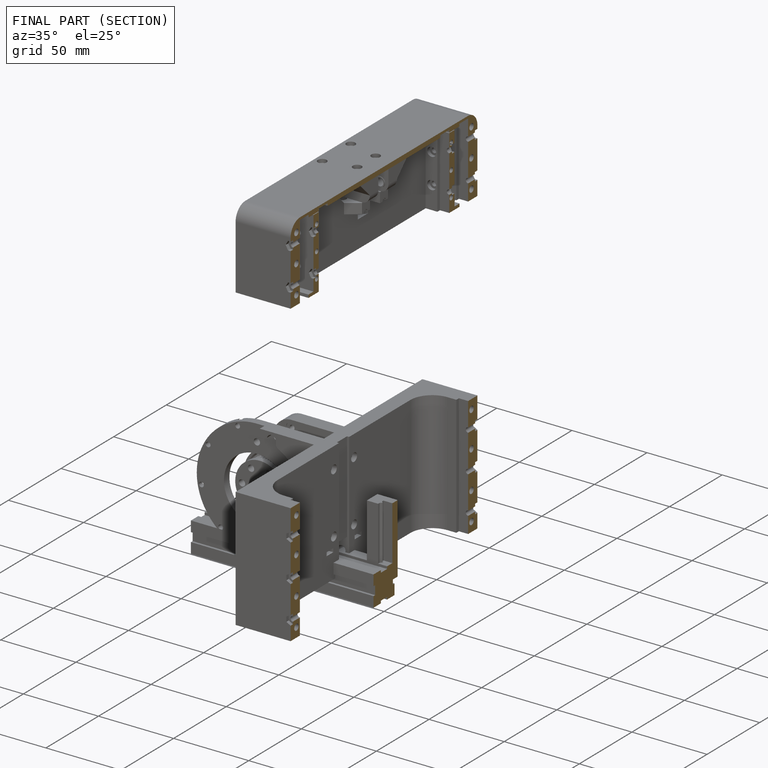
[diagram: finished part — half-section view (interior)]
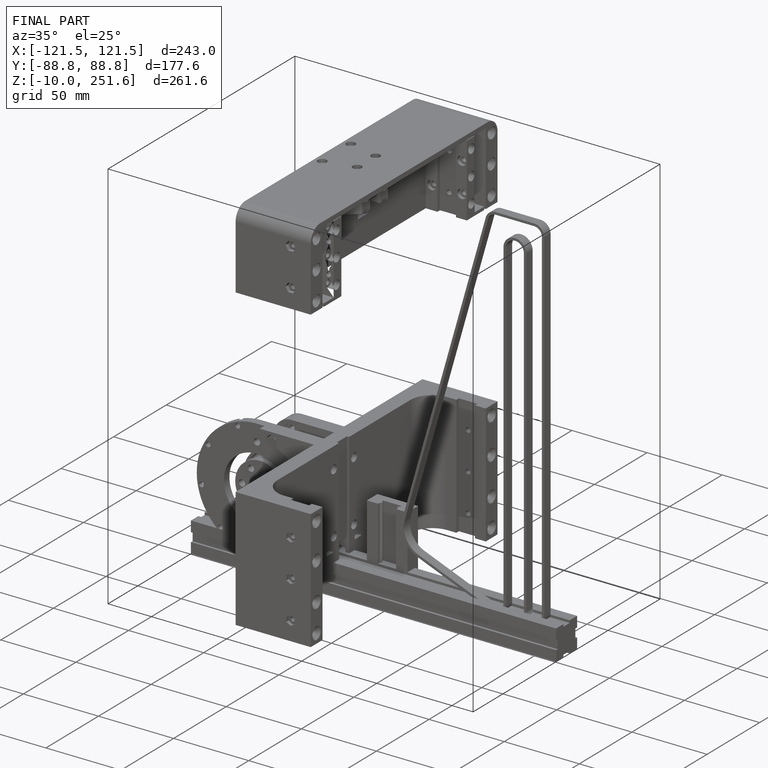
[diagram: finished part — iso view with bounding-box wireframe]
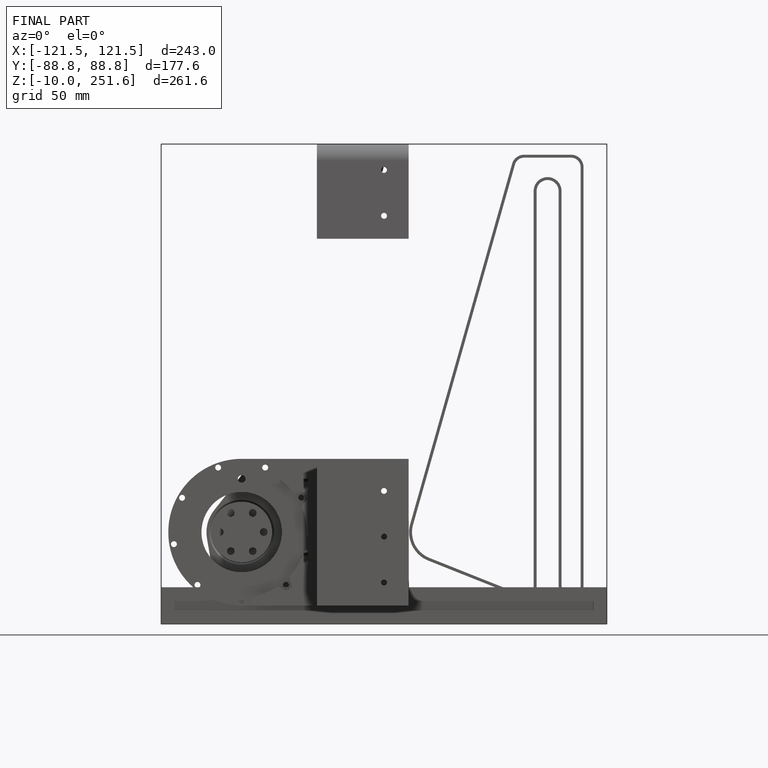
[diagram: finished part — front view with bounding-box wireframe]
